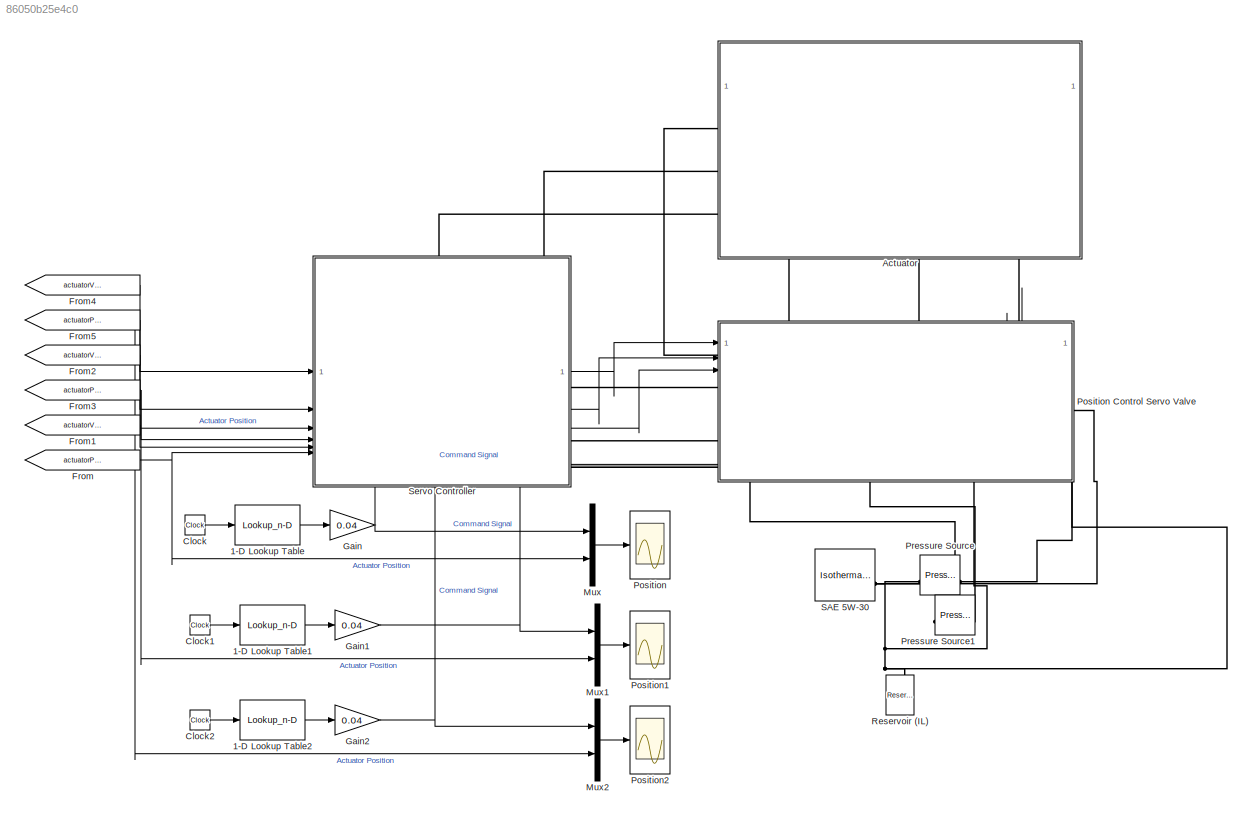
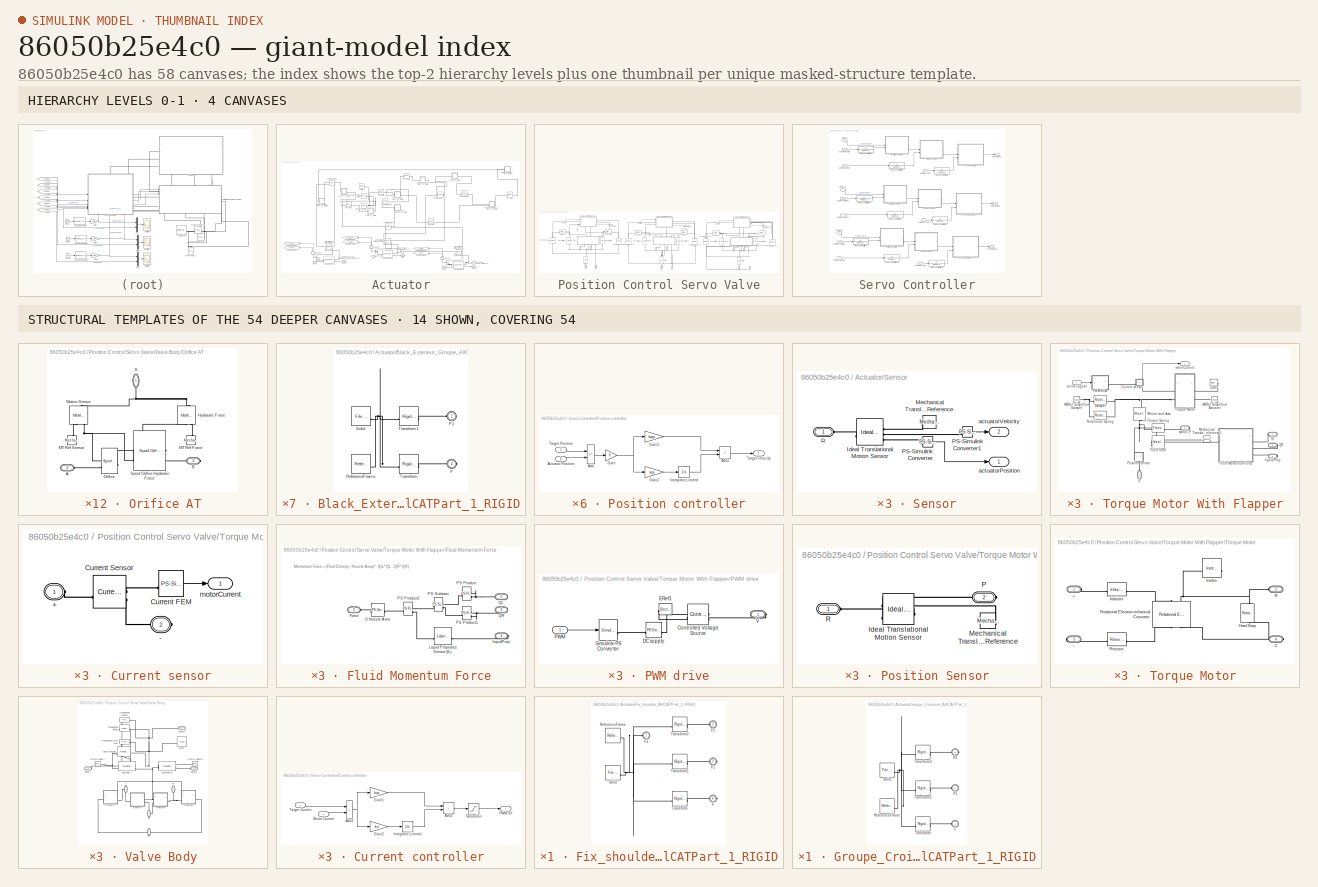
[diagram: thumbnail index - top-2 hierarchy levels (4 canvases) + 14 structural-template representatives of the remaining 54 canvases]
MODEL slx_86050b25e4c0
KIND model
CONFIG AbsTol = 1e-3
CONFIG EnableMultiTasking = off
CONFIG FixedStep = auto
CONFIG MaxStep = 0.08
CONFIG MinStep = auto
CONFIG PreLoadFcn = PositionControlServoValveInput
CONFIG RelTol = 1e-3
CONFIG SampleTimeConstraint = Unconstrained
CONFIG SolverName = daessc
CONFIG StartTime = 0.0
CONFIG StopTime = 4
BLOCK [Lookup_n-D] 1-D Lookup Table
  BreakpointsForDimension1 = [0 1 1.02 1.2 1.22 1.3999999999999999 1.4199999999999999 1.6000000000000001 1.6200000000000001 1.8 1.8200000000000001 2 2.02 2.2000000000000002 2.2200000000000002 2.3999999999999999 2.4199999999999999 2.6000000000000001 2.6200000000000001 2.7999999999999998 2.8199999999999998 3 3.02 3.2000000000000002]
  InputPortMap = u0
  InternalRulePriority = Speed
  NumberOfTableDimensions = 1
  RndMeth = Simplest
  Table = [0 0 -0.5 0.5 -0.59999999999999998 -0.10000000000000001 0.40000000000000002 -0.40000000000000002 -0.29999999999999999 -0.29999999999999999 0.20000000000000001 0 0.5 0 0.10000000000000001 0 -0.40000000000000002 0 0 0.20000000000000001 0 -0.10000000000000001 0 0]
BLOCK [Lookup_n-D] 1-D Lookup Table1
  BreakpointsForDimension1 = [0 1 1.02 1.2 1.22 1.3999999999999999 1.4199999999999999 1.6000000000000001 1.6200000000000001 1.8 1.8200000000000001 2 2.02 2.2000000000000002 2.2200000000000002 2.3999999999999999 2.4199999999999999 2.6000000000000001 2.6200000000000001 2.7999999999999998 2.8199999999999998 3 3.02 3.2000000000000002]
  InputPortMap = u0
  InternalRulePriority = Speed
  NumberOfTableDimensions = 1
  RndMeth = Simplest
  Table = [0 0 0.10000000000000001 0 0.20000000000000001 0 0.29999999999999999 0 0 -0.20000000000000001 0 -0.29999999999999999 0 0 0 0 0 0 0.29999999999999999 0 0 -0.29999999999999999 0 0]
BLOCK [Lookup_n-D] 1-D Lookup Table2
  BreakpointsForDimension1 = [0;1;1.02;1.2;1.3999999999999999;1.4199999999999999;1.6000000000000001;1.6200000000000001;1.8;1.8200000000000001;2;2.02;2.2000000000000002;2.2200000000000002;2.3999999999999999;2.4199999999999999;2.6000000000000001;2.6200000000000001;2.7999999999999998;2.8199999999999998;3;3.02;3.2000000000000002]
  InputPortMap = u0
  InternalRulePriority = Speed
  NumberOfTableDimensions = 1
  RndMeth = Simplest
  Table = [0;0.20000000000000001;-0.40000000000000002;0;-0.20000000000000001;0.40000000000000002;0.10000000000000001;0.29999999999999999;-0.40000000000000002;0.40000000000000002;0.29999999999999999;-0.10000000000000001;0;0;-0.20000000000000001;0.20000000000000001;-0.40000000000000002;0;-0.20000000000000001;0;0;0;0.20000000000000001]
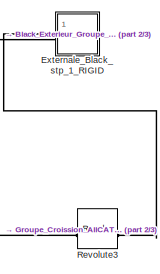
[diagram: Actuator - part 1/3, top right region]
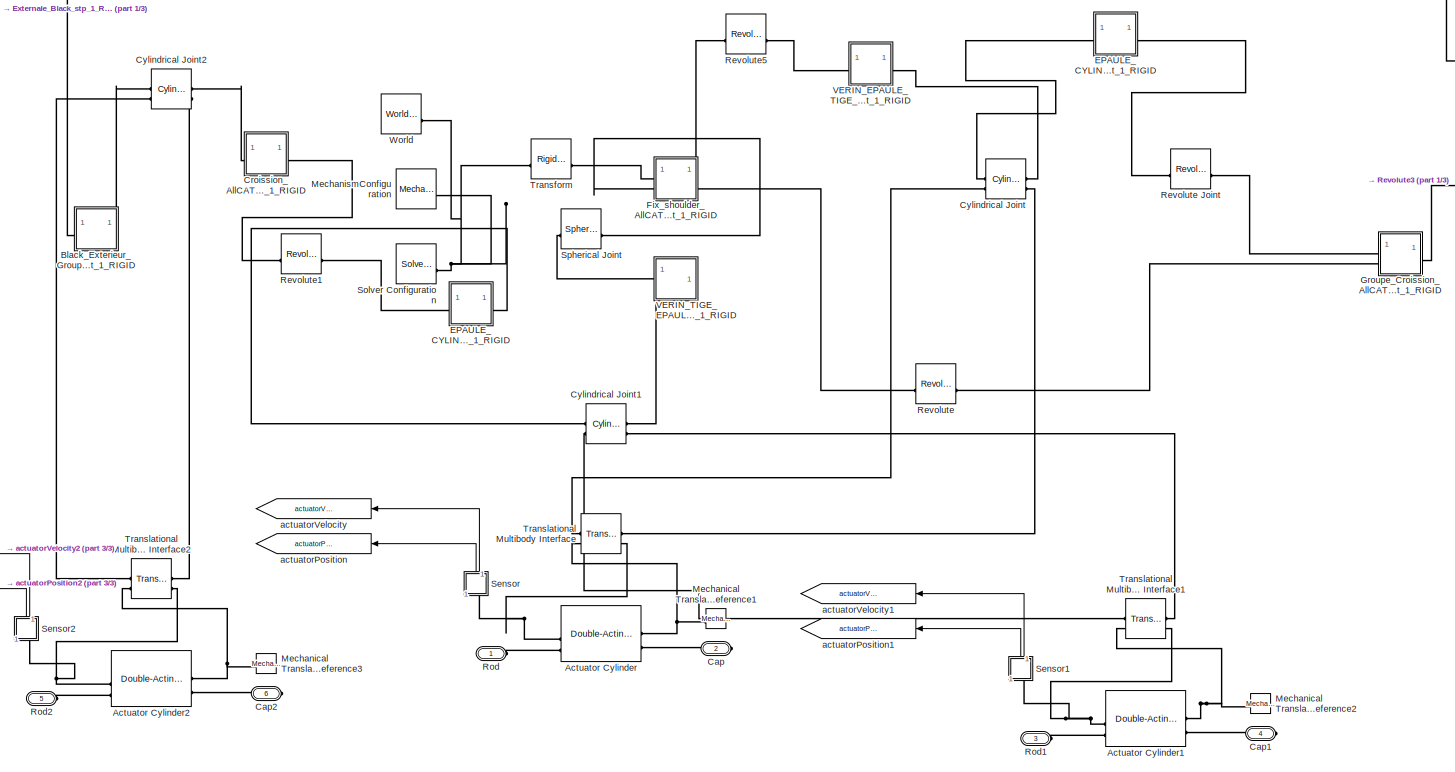
[diagram: Actuator - part 2/3, most of the canvas]
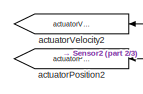
[diagram: Actuator - part 3/3, bottom left region]
BLOCK [SubSystem] Actuator
BLOCK [Reference] Actuator/Actuator Cylinder  REF=SimscapeFluids_lib/Isothermal Liquid/Actuators/Double-Acting
Actuator (IL)
  SourceBlock = SimscapeFluids_lib/Isothermal Liquid/Actuators/Double-Acting\nActuator (IL)
  SourceType = Double-Acting\nActuator (IL)
BLOCK [Reference] Actuator/Actuator Cylinder1  REF=SimscapeFluids_lib/Isothermal Liquid/Actuators/Double-Acting
Actuator (IL)
  SourceBlock = SimscapeFluids_lib/Isothermal Liquid/Actuators/Double-Acting\nActuator (IL)
  SourceType = Double-Acting\nActuator (IL)
BLOCK [Reference] Actuator/Actuator Cylinder2  REF=SimscapeFluids_lib/Isothermal Liquid/Actuators/Double-Acting
Actuator (IL)
  SourceBlock = SimscapeFluids_lib/Isothermal Liquid/Actuators/Double-Acting\nActuator (IL)
  SourceType = Double-Acting\nActuator (IL)
BLOCK [SubSystem] Actuator/Black_Exterieur_Groupe_AllCATPart_1_RIGID
BLOCK [PMIOPort] Actuator/Black_Exterieur_Groupe_AllCATPart_1_RIGID/F
  Port = 2
  Side = Right
BLOCK [PMIOPort] Actuator/Black_Exterieur_Groupe_AllCATPart_1_RIGID/F1
  Side = Left
BLOCK [Reference] Actuator/Black_Exterieur_Groupe_AllCATPart_1_RIGID/ReferenceFrame  REF=sm_lib/Frames and
Transforms/Reference
Frame
  SourceBlock = sm_lib/Frames and\nTransforms/Reference\nFrame
  SourceType = Reference\nFrame
BLOCK [Reference] Actuator/Black_Exterieur_Groupe_AllCATPart_1_RIGID/Solid  REF=sm_lib/Body Elements/File Solid
  SourceBlock = sm_lib/Body Elements/File Solid
  SourceType = File Solid
BLOCK [Reference] Actuator/Black_Exterieur_Groupe_AllCATPart_1_RIGID/Transform  REF=sm_lib/Frames and
Transforms/Rigid
Transform
  SourceBlock = sm_lib/Frames and\nTransforms/Rigid\nTransform
  SourceType = Rigid\nTransform
BLOCK [Reference] Actuator/Black_Exterieur_Groupe_AllCATPart_1_RIGID/Transform1  REF=sm_lib/Frames and
Transforms/Rigid
Transform
  SourceBlock = sm_lib/Frames and\nTransforms/Rigid\nTransform
  SourceType = Rigid\nTransform
BLOCK [PMIOPort] Actuator/Cap
  Port = 2
  Side = Right
BLOCK [PMIOPort] Actuator/Cap1
  Port = 4
  Side = Right
BLOCK [PMIOPort] Actuator/Cap2
  Port = 6
  Side = Right
BLOCK [SubSystem] Actuator/Croission_AllCATPart_stp_1_RIGID
BLOCK [PMIOPort] Actuator/Croission_AllCATPart_stp_1_RIGID/F
  Port = 2
  Side = Right
BLOCK [PMIOPort] Actuator/Croission_AllCATPart_stp_1_RIGID/F1
  Side = Left
BLOCK [Reference] Actuator/Croission_AllCATPart_stp_1_RIGID/ReferenceFrame  REF=sm_lib/Frames and
Transforms/Reference
Frame
  SourceBlock = sm_lib/Frames and\nTransforms/Reference\nFrame
  SourceType = Reference\nFrame
BLOCK [Reference] Actuator/Croission_AllCATPart_stp_1_RIGID/Solid  REF=sm_lib/Body Elements/File Solid
  SourceBlock = sm_lib/Body Elements/File Solid
  SourceType = File Solid
BLOCK [Reference] Actuator/Croission_AllCATPart_stp_1_RIGID/Transform  REF=sm_lib/Frames and
Transforms/Rigid
Transform
  SourceBlock = sm_lib/Frames and\nTransforms/Rigid\nTransform
  SourceType = Rigid\nTransform
BLOCK [Reference] Actuator/Croission_AllCATPart_stp_1_RIGID/Transform1  REF=sm_lib/Frames and
Transforms/Rigid
Transform
  SourceBlock = sm_lib/Frames and\nTransforms/Rigid\nTransform
  SourceType = Rigid\nTransform
BLOCK [Reference] Actuator/Cylindrical Joint  REF=sm_lib/Joints/Cylindrical
Joint
  SourceBlock = sm_lib/Joints/Cylindrical\nJoint
  SourceType = Cylindrical\nJoint
BLOCK [Reference] Actuator/Cylindrical Joint1  REF=sm_lib/Joints/Cylindrical
Joint
  SourceBlock = sm_lib/Joints/Cylindrical\nJoint
  SourceType = Cylindrical\nJoint
BLOCK [Reference] Actuator/Cylindrical Joint2  REF=sm_lib/Joints/Cylindrical
Joint
  SourceBlock = sm_lib/Joints/Cylindrical\nJoint
  SourceType = Cylindrical\nJoint
BLOCK [SubSystem] Actuator/EPAULE_CYLINDRE_GROUPE1_AllCATPart_stp_1_RIGID
BLOCK [PMIOPort] Actuator/EPAULE_CYLINDRE_GROUPE1_AllCATPart_stp_1_RIGID/F
  Side = Left
BLOCK [PMIOPort] Actuator/EPAULE_CYLINDRE_GROUPE1_AllCATPart_stp_1_RIGID/F1
  Port = 2
  Side = Right
BLOCK [Reference] Actuator/EPAULE_CYLINDRE_GROUPE1_AllCATPart_stp_1_RIGID/ReferenceFrame  REF=sm_lib/Frames and
Transforms/Reference
Frame
  SourceBlock = sm_lib/Frames and\nTransforms/Reference\nFrame
  SourceType = Reference\nFrame
BLOCK [Reference] Actuator/EPAULE_CYLINDRE_GROUPE1_AllCATPart_stp_1_RIGID/Solid  REF=sm_lib/Body Elements/File Solid
  SourceBlock = sm_lib/Body Elements/File Solid
  SourceType = File Solid
BLOCK [Reference] Actuator/EPAULE_CYLINDRE_GROUPE1_AllCATPart_stp_1_RIGID/Transform  REF=sm_lib/Frames and
Transforms/Rigid
Transform
  SourceBlock = sm_lib/Frames and\nTransforms/Rigid\nTransform
  SourceType = Rigid\nTransform
BLOCK [Reference] Actuator/EPAULE_CYLINDRE_GROUPE1_AllCATPart_stp_1_RIGID/Transform1  REF=sm_lib/Frames and
Transforms/Rigid
Transform
  SourceBlock = sm_lib/Frames and\nTransforms/Rigid\nTransform
  SourceType = Rigid\nTransform
BLOCK [SubSystem] Actuator/EPAULE_CYLINDRE_GROUPE2_AllCATPart_1_RIGID
BLOCK [PMIOPort] Actuator/EPAULE_CYLINDRE_GROUPE2_AllCATPart_1_RIGID/F
  Port = 2
  Side = Right
BLOCK [PMIOPort] Actuator/EPAULE_CYLINDRE_GROUPE2_AllCATPart_1_RIGID/F1
  Side = Left
BLOCK [Reference] Actuator/EPAULE_CYLINDRE_GROUPE2_AllCATPart_1_RIGID/ReferenceFrame  REF=sm_lib/Frames and
Transforms/Reference
Frame
  SourceBlock = sm_lib/Frames and\nTransforms/Reference\nFrame
  SourceType = Reference\nFrame
BLOCK [Reference] Actuator/EPAULE_CYLINDRE_GROUPE2_AllCATPart_1_RIGID/Solid  REF=sm_lib/Body Elements/File Solid
  SourceBlock = sm_lib/Body Elements/File Solid
  SourceType = File Solid
BLOCK [Reference] Actuator/EPAULE_CYLINDRE_GROUPE2_AllCATPart_1_RIGID/Transform  REF=sm_lib/Frames and
Transforms/Rigid
Transform
  SourceBlock = sm_lib/Frames and\nTransforms/Rigid\nTransform
  SourceType = Rigid\nTransform
BLOCK [Reference] Actuator/EPAULE_CYLINDRE_GROUPE2_AllCATPart_1_RIGID/Transform1  REF=sm_lib/Frames and
Transforms/Rigid
Transform
  SourceBlock = sm_lib/Frames and\nTransforms/Rigid\nTransform
  SourceType = Rigid\nTransform
BLOCK [SubSystem] Actuator/Externale_Black_stp_1_RIGID
BLOCK [PMIOPort] Actuator/Externale_Black_stp_1_RIGID/F
  Side = Left
BLOCK [PMIOPort] Actuator/Externale_Black_stp_1_RIGID/F1
  Port = 2
  Side = Left
BLOCK [Reference] Actuator/Externale_Black_stp_1_RIGID/ReferenceFrame  REF=sm_lib/Frames and
Transforms/Reference
Frame
  SourceBlock = sm_lib/Frames and\nTransforms/Reference\nFrame
  SourceType = Reference\nFrame
BLOCK [Reference] Actuator/Externale_Black_stp_1_RIGID/Solid  REF=sm_lib/Body Elements/File Solid
  SourceBlock = sm_lib/Body Elements/File Solid
  SourceType = File Solid
BLOCK [Reference] Actuator/Externale_Black_stp_1_RIGID/Transform  REF=sm_lib/Frames and
Transforms/Rigid
Transform
  SourceBlock = sm_lib/Frames and\nTransforms/Rigid\nTransform
  SourceType = Rigid\nTransform
BLOCK [Reference] Actuator/Externale_Black_stp_1_RIGID/Transform1  REF=sm_lib/Frames and
Transforms/Rigid
Transform
  SourceBlock = sm_lib/Frames and\nTransforms/Rigid\nTransform
  SourceType = Rigid\nTransform
BLOCK [SubSystem] Actuator/Fix_shoulder_AllCATPart_1_RIGID
BLOCK [PMIOPort] Actuator/Fix_shoulder_AllCATPart_1_RIGID/F
  Port = 4
  Side = Right
BLOCK [PMIOPort] Actuator/Fix_shoulder_AllCATPart_1_RIGID/F1
  Port = 3
  Side = Right
BLOCK [PMIOPort] Actuator/Fix_shoulder_AllCATPart_1_RIGID/F2
  Port = 2
  Side = Left
BLOCK [PMIOPort] Actuator/Fix_shoulder_AllCATPart_1_RIGID/F3
  Side = Left
BLOCK [Reference] Actuator/Fix_shoulder_AllCATPart_1_RIGID/ReferenceFrame  REF=sm_lib/Frames and
Transforms/Reference
Frame
  SourceBlock = sm_lib/Frames and\nTransforms/Reference\nFrame
  SourceType = Reference\nFrame
BLOCK [Reference] Actuator/Fix_shoulder_AllCATPart_1_RIGID/Solid  REF=sm_lib/Body Elements/File Solid
  SourceBlock = sm_lib/Body Elements/File Solid
  SourceType = File Solid
BLOCK [Reference] Actuator/Fix_shoulder_AllCATPart_1_RIGID/Transform  REF=sm_lib/Frames and
Transforms/Rigid
Transform
  SourceBlock = sm_lib/Frames and\nTransforms/Rigid\nTransform
  SourceType = Rigid\nTransform
BLOCK [Reference] Actuator/Fix_shoulder_AllCATPart_1_RIGID/Transform1  REF=sm_lib/Frames and
Transforms/Rigid
Transform
  SourceBlock = sm_lib/Frames and\nTransforms/Rigid\nTransform
  SourceType = Rigid\nTransform
BLOCK [Reference] Actuator/Fix_shoulder_AllCATPart_1_RIGID/Transform2  REF=sm_lib/Frames and
Transforms/Rigid
Transform
  SourceBlock = sm_lib/Frames and\nTransforms/Rigid\nTransform
  SourceType = Rigid\nTransform
BLOCK [SubSystem] Actuator/Groupe_Croission_AllCATPart_1_RIGID
BLOCK [PMIOPort] Actuator/Groupe_Croission_AllCATPart_1_RIGID/F
  Side = Left
BLOCK [PMIOPort] Actuator/Groupe_Croission_AllCATPart_1_RIGID/F1
  Port = 2
  Side = Left
BLOCK [PMIOPort] Actuator/Groupe_Croission_AllCATPart_1_RIGID/F2
  Port = 3
  Side = Right
BLOCK [Reference] Actuator/Groupe_Croission_AllCATPart_1_RIGID/ReferenceFrame  REF=sm_lib/Frames and
Transforms/Reference
Frame
  SourceBlock = sm_lib/Frames and\nTransforms/Reference\nFrame
  SourceType = Reference\nFrame
BLOCK [Reference] Actuator/Groupe_Croission_AllCATPart_1_RIGID/Solid  REF=sm_lib/Body Elements/File Solid
  SourceBlock = sm_lib/Body Elements/File Solid
  SourceType = File Solid
BLOCK [Reference] Actuator/Groupe_Croission_AllCATPart_1_RIGID/Transform  REF=sm_lib/Frames and
Transforms/Rigid
Transform
  SourceBlock = sm_lib/Frames and\nTransforms/Rigid\nTransform
  SourceType = Rigid\nTransform
BLOCK [Reference] Actuator/Groupe_Croission_AllCATPart_1_RIGID/Transform1  REF=sm_lib/Frames and
Transforms/Rigid
Transform
  SourceBlock = sm_lib/Frames and\nTransforms/Rigid\nTransform
  SourceType = Rigid\nTransform
BLOCK [Reference] Actuator/Groupe_Croission_AllCATPart_1_RIGID/Transform2  REF=sm_lib/Frames and
Transforms/Rigid
Transform
  SourceBlock = sm_lib/Frames and\nTransforms/Rigid\nTransform
  SourceType = Rigid\nTransform
BLOCK [Reference] Actuator/Mechanical Translational Reference1  REF=fl_lib/Mechanical/Translational
Elements/Mechanical
Translational
Reference
  NameLocation = top
  SourceBlock = fl_lib/Mechanical/Translational\nElements/Mechanical\nTranslational\nReference
  SourceType = Mechanical\nTranslational\nReference
BLOCK [Reference] Actuator/Mechanical Translational Reference2  REF=fl_lib/Mechanical/Translational
Elements/Mechanical
Translational
Reference
  NameLocation = top
  SourceBlock = fl_lib/Mechanical/Translational\nElements/Mechanical\nTranslational\nReference
  SourceType = Mechanical\nTranslational\nReference
BLOCK [Reference] Actuator/Mechanical Translational Reference3  REF=fl_lib/Mechanical/Translational
Elements/Mechanical
Translational
Reference
  NameLocation = top
  SourceBlock = fl_lib/Mechanical/Translational\nElements/Mechanical\nTranslational\nReference
  SourceType = Mechanical\nTranslational\nReference
BLOCK [Reference] Actuator/MechanismConfiguration  REF=sm_lib/Utilities/Mechanism
Configuration
  SourceBlock = sm_lib/Utilities/Mechanism\nConfiguration
  SourceType = Mechanism\nConfiguration
BLOCK [Reference] Actuator/Revolute  REF=sm_lib/Joints/Revolute Joint
  SourceBlock = sm_lib/Joints/Revolute Joint
  SourceType = Revolute Joint
BLOCK [Reference] Actuator/Revolute Joint  REF=sm_lib/Joints/Revolute Joint
  SourceBlock = sm_lib/Joints/Revolute Joint
  SourceType = Revolute Joint
BLOCK [Reference] Actuator/Revolute1  REF=sm_lib/Joints/Revolute Joint
  SourceBlock = sm_lib/Joints/Revolute Joint
  SourceType = Revolute Joint
BLOCK [Reference] Actuator/Revolute3  REF=sm_lib/Joints/Revolute Joint
  SourceBlock = sm_lib/Joints/Revolute Joint
  SourceType = Revolute Joint
BLOCK [Reference] Actuator/Revolute5  REF=sm_lib/Joints/Revolute Joint
  SourceBlock = sm_lib/Joints/Revolute Joint
  SourceType = Revolute Joint
BLOCK [PMIOPort] Actuator/Rod
  Side = Left
BLOCK [PMIOPort] Actuator/Rod1
  Port = 3
  Side = Left
BLOCK [PMIOPort] Actuator/Rod2
  Port = 5
  Side = Left
BLOCK [SubSystem] Actuator/Sensor
  NameLocation = right
BLOCK [Reference] Actuator/Sensor/Ideal Translational Motion Sensor  REF=fl_lib/Mechanical/Mechanical Sensors/Ideal Translational
Motion Sensor
  SourceBlock = fl_lib/Mechanical/Mechanical Sensors/Ideal Translational\nMotion Sensor
  SourceType = Ideal Translational\nMotion Sensor
BLOCK [Reference] Actuator/Sensor/Mechanical Translational Reference  REF=fl_lib/Mechanical/Translational
Elements/Mechanical
Translational
Reference
  SourceBlock = fl_lib/Mechanical/Translational\nElements/Mechanical\nTranslational\nReference
  SourceType = Mechanical\nTranslational\nReference
BLOCK [Reference] Actuator/Sensor/PS-Simulink Converter  REF=nesl_utility/PS-Simulink
Converter
  SourceBlock = nesl_utility/PS-Simulink\nConverter
  SourceType = PS-Simulink\nConverter
BLOCK [Reference] Actuator/Sensor/PS-Simulink Converter1  REF=nesl_utility/PS-Simulink
Converter
  SourceBlock = nesl_utility/PS-Simulink\nConverter
  SourceType = PS-Simulink\nConverter
BLOCK [PMIOPort] Actuator/Sensor/R
  Side = Left
BLOCK [Outport] Actuator/Sensor/actuatorPosition
BLOCK [Outport] Actuator/Sensor/actuatorVelocity
  Port = 2
BLOCK [SubSystem] Actuator/Sensor1
  NameLocation = right
BLOCK [Reference] Actuator/Sensor1/Ideal Translational Motion Sensor  REF=fl_lib/Mechanical/Mechanical Sensors/Ideal Translational
Motion Sensor
  SourceBlock = fl_lib/Mechanical/Mechanical Sensors/Ideal Translational\nMotion Sensor
  SourceType = Ideal Translational\nMotion Sensor
BLOCK [Reference] Actuator/Sensor1/Mechanical Translational Reference  REF=fl_lib/Mechanical/Translational
Elements/Mechanical
Translational
Reference
  SourceBlock = fl_lib/Mechanical/Translational\nElements/Mechanical\nTranslational\nReference
  SourceType = Mechanical\nTranslational\nReference
BLOCK [Reference] Actuator/Sensor1/PS-Simulink Converter  REF=nesl_utility/PS-Simulink
Converter
  SourceBlock = nesl_utility/PS-Simulink\nConverter
  SourceType = PS-Simulink\nConverter
BLOCK [Reference] Actuator/Sensor1/PS-Simulink Converter1  REF=nesl_utility/PS-Simulink
Converter
  SourceBlock = nesl_utility/PS-Simulink\nConverter
  SourceType = PS-Simulink\nConverter
BLOCK [PMIOPort] Actuator/Sensor1/R
  Side = Left
BLOCK [Outport] Actuator/Sensor1/actuatorPosition
BLOCK [Outport] Actuator/Sensor1/actuatorVelocity
  Port = 2
BLOCK [SubSystem] Actuator/Sensor2
  NameLocation = right
BLOCK [Reference] Actuator/Sensor2/Ideal Translational Motion Sensor  REF=fl_lib/Mechanical/Mechanical Sensors/Ideal Translational
Motion Sensor
  SourceBlock = fl_lib/Mechanical/Mechanical Sensors/Ideal Translational\nMotion Sensor
  SourceType = Ideal Translational\nMotion Sensor
BLOCK [Reference] Actuator/Sensor2/Mechanical Translational Reference  REF=fl_lib/Mechanical/Translational
Elements/Mechanical
Translational
Reference
  SourceBlock = fl_lib/Mechanical/Translational\nElements/Mechanical\nTranslational\nReference
  SourceType = Mechanical\nTranslational\nReference
BLOCK [Reference] Actuator/Sensor2/PS-Simulink Converter  REF=nesl_utility/PS-Simulink
Converter
  SourceBlock = nesl_utility/PS-Simulink\nConverter
  SourceType = PS-Simulink\nConverter
BLOCK [Reference] Actuator/Sensor2/PS-Simulink Converter1  REF=nesl_utility/PS-Simulink
Converter
  SourceBlock = nesl_utility/PS-Simulink\nConverter
  SourceType = PS-Simulink\nConverter
BLOCK [PMIOPort] Actuator/Sensor2/R
  Side = Left
BLOCK [Outport] Actuator/Sensor2/actuatorPosition
BLOCK [Outport] Actuator/Sensor2/actuatorVelocity
  Port = 2
BLOCK [Reference] Actuator/Solver Configuration  REF=nesl_utility/Solver
Configuration
  SourceBlock = nesl_utility/Solver\nConfiguration
  SourceType = Solver\nConfiguration
BLOCK [Reference] Actuator/Spherical Joint  REF=sm_lib/Joints/Spherical
Joint
  SourceBlock = sm_lib/Joints/Spherical\nJoint
  SourceType = Spherical\nJoint
BLOCK [Reference] Actuator/Transform  REF=sm_lib/Frames and
Transforms/Rigid
Transform
  SourceBlock = sm_lib/Frames and\nTransforms/Rigid\nTransform
  SourceType = Rigid\nTransform
BLOCK [Reference] Actuator/Translational Multibody Interface  REF=fl_lib/Mechanical/Multibody Interfaces/Translational
Multibody Interface
  SourceBlock = fl_lib/Mechanical/Multibody Interfaces/Translational\nMultibody Interface
  SourceType = Translational\nMultibody Interface
BLOCK [Reference] Actuator/Translational Multibody Interface1  REF=fl_lib/Mechanical/Multibody Interfaces/Translational
Multibody Interface
  SourceBlock = fl_lib/Mechanical/Multibody Interfaces/Translational\nMultibody Interface
  SourceType = Translational\nMultibody Interface
BLOCK [Reference] Actuator/Translational Multibody Interface2  REF=fl_lib/Mechanical/Multibody Interfaces/Translational
Multibody Interface
  SourceBlock = fl_lib/Mechanical/Multibody Interfaces/Translational\nMultibody Interface
  SourceType = Translational\nMultibody Interface
BLOCK [SubSystem] Actuator/VERIN_EPAULE_TIGE_GROUPE2_3_AllCATPart_1_RIGID
BLOCK [PMIOPort] Actuator/VERIN_EPAULE_TIGE_GROUPE2_3_AllCATPart_1_RIGID/F
  Port = 2
  Side = Right
BLOCK [PMIOPort] Actuator/VERIN_EPAULE_TIGE_GROUPE2_3_AllCATPart_1_RIGID/F1
  Side = Left
BLOCK [Reference] Actuator/VERIN_EPAULE_TIGE_GROUPE2_3_AllCATPart_1_RIGID/ReferenceFrame  REF=sm_lib/Frames and
Transforms/Reference
Frame
  SourceBlock = sm_lib/Frames and\nTransforms/Reference\nFrame
  SourceType = Reference\nFrame
BLOCK [Reference] Actuator/VERIN_EPAULE_TIGE_GROUPE2_3_AllCATPart_1_RIGID/Solid  REF=sm_lib/Body Elements/File Solid
  SourceBlock = sm_lib/Body Elements/File Solid
  SourceType = File Solid
BLOCK [Reference] Actuator/VERIN_EPAULE_TIGE_GROUPE2_3_AllCATPart_1_RIGID/Transform  REF=sm_lib/Frames and
Transforms/Rigid
Transform
  SourceBlock = sm_lib/Frames and\nTransforms/Rigid\nTransform
  SourceType = Rigid\nTransform
BLOCK [Reference] Actuator/VERIN_EPAULE_TIGE_GROUPE2_3_AllCATPart_1_RIGID/Transform1  REF=sm_lib/Frames and
Transforms/Rigid
Transform
  SourceBlock = sm_lib/Frames and\nTransforms/Rigid\nTransform
  SourceType = Rigid\nTransform
BLOCK [SubSystem] Actuator/VERIN_TIGE_EPAULE1_2_1_RIGID
  NameLocation = left
BLOCK [PMIOPort] Actuator/VERIN_TIGE_EPAULE1_2_1_RIGID/F
  Port = 2
  Side = Left
BLOCK [PMIOPort] Actuator/VERIN_TIGE_EPAULE1_2_1_RIGID/F1
  Side = Left
BLOCK [Reference] Actuator/VERIN_TIGE_EPAULE1_2_1_RIGID/ReferenceFrame  REF=sm_lib/Frames and
Transforms/Reference
Frame
  SourceBlock = sm_lib/Frames and\nTransforms/Reference\nFrame
  SourceType = Reference\nFrame
BLOCK [Reference] Actuator/VERIN_TIGE_EPAULE1_2_1_RIGID/Solid  REF=sm_lib/Body Elements/File Solid
  SourceBlock = sm_lib/Body Elements/File Solid
  SourceType = File Solid
BLOCK [Reference] Actuator/VERIN_TIGE_EPAULE1_2_1_RIGID/Transform  REF=sm_lib/Frames and
Transforms/Rigid
Transform
  SourceBlock = sm_lib/Frames and\nTransforms/Rigid\nTransform
  SourceType = Rigid\nTransform
BLOCK [Reference] Actuator/VERIN_TIGE_EPAULE1_2_1_RIGID/Transform1  REF=sm_lib/Frames and
Transforms/Rigid
Transform
  SourceBlock = sm_lib/Frames and\nTransforms/Rigid\nTransform
  SourceType = Rigid\nTransform
BLOCK [Reference] Actuator/World  REF=sm_lib/Frames and
Transforms/World Frame
  SourceBlock = sm_lib/Frames and\nTransforms/World Frame
  SourceType = World Frame
BLOCK [Goto] Actuator/actuatorPosition
  GotoTag = actuatorPosition
  TagVisibility = global
BLOCK [Goto] Actuator/actuatorPosition1
  GotoTag = actuatorPosition1
  TagVisibility = global
BLOCK [Goto] Actuator/actuatorPosition2
  GotoTag = actuatorPosition2
  TagVisibility = global
BLOCK [Goto] Actuator/actuatorVelocity
  GotoTag = actuatorVelocity
  NameLocation = top
  TagVisibility = global
BLOCK [Goto] Actuator/actuatorVelocity1
  GotoTag = actuatorVelocity1
  NameLocation = top
  TagVisibility = global
BLOCK [Goto] Actuator/actuatorVelocity2
  GotoTag = actuatorVelocity2
  NameLocation = top
  TagVisibility = global
BLOCK [Clock] Clock
BLOCK [Clock] Clock1
BLOCK [Clock] Clock2
BLOCK [From] From
  GotoTag = actuatorPosition
  TagVisibility = global
BLOCK [From] From1
  GotoTag = actuatorVelocity
  TagVisibility = global
BLOCK [From] From2
  GotoTag = actuatorVelocity1
  TagVisibility = global
BLOCK [From] From3
  GotoTag = actuatorPosition1
  TagVisibility = global
BLOCK [From] From4
  GotoTag = actuatorVelocity2
  TagVisibility = global
BLOCK [From] From5
  GotoTag = actuatorPosition2
  TagVisibility = global
BLOCK [Gain] Gain
  Gain = 0.04
BLOCK [Gain] Gain1
  Gain = 0.04
BLOCK [Gain] Gain2
  Gain = 0.04
BLOCK [Mux] Mux
  DisplayOption = bar
  Inputs = 2
BLOCK [Mux] Mux1
  DisplayOption = bar
  Inputs = 2
BLOCK [Mux] Mux2
  DisplayOption = bar
  Inputs = 2
BLOCK [Scope] Position
  Floating = off
  NumInputPorts = 1
  ScopeSpecificationString = Simulink.scopes.TimeScopeBlockCfg('CurrentConfiguration', extmgr.ConfigurationSet(extmgr.Configuration('Core','General UI',true,'FigureColor',[1 1 1]),extmgr.Configuration('Core','Source UI',true),extmgr.Configuration('Sources','WiredSimulink',true,'DataLoggingVariableName','ScopeData2'),extmgr.Configuration('Visuals','Time Domain',true,'SerializedDisplays',{struct('MinYLimReal','-0.05001','MaxYLi...<+1719ch>
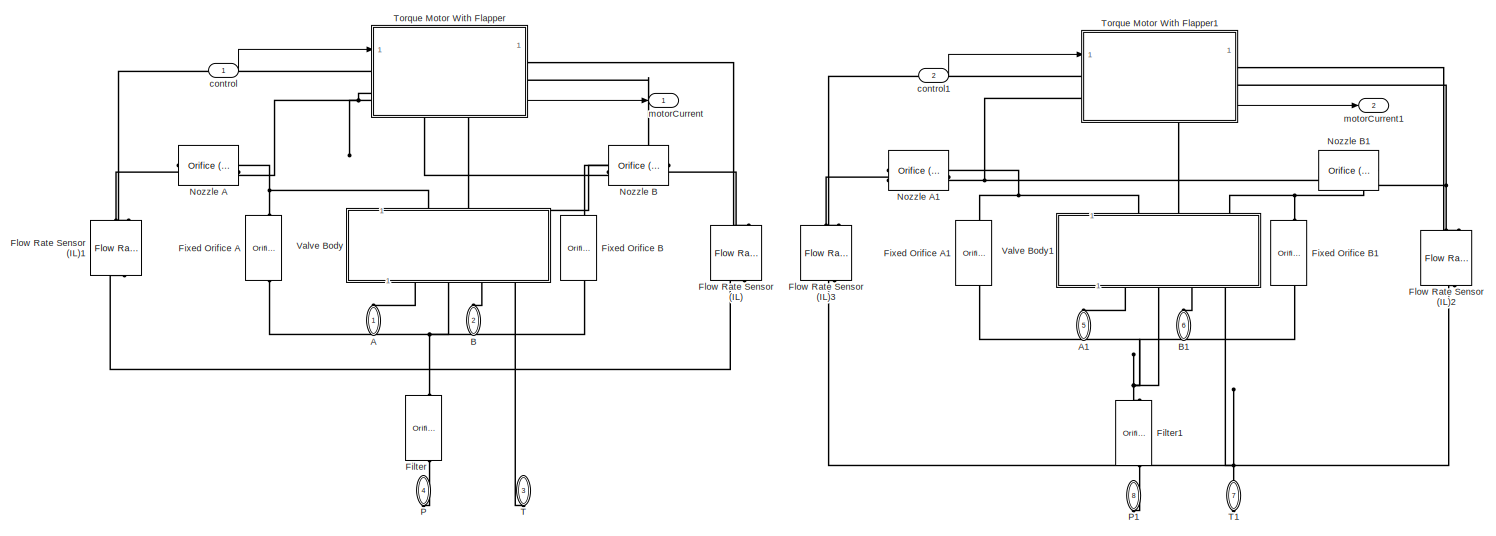
[diagram: Position Control Servo Valve - part 1/2, center side, full height]
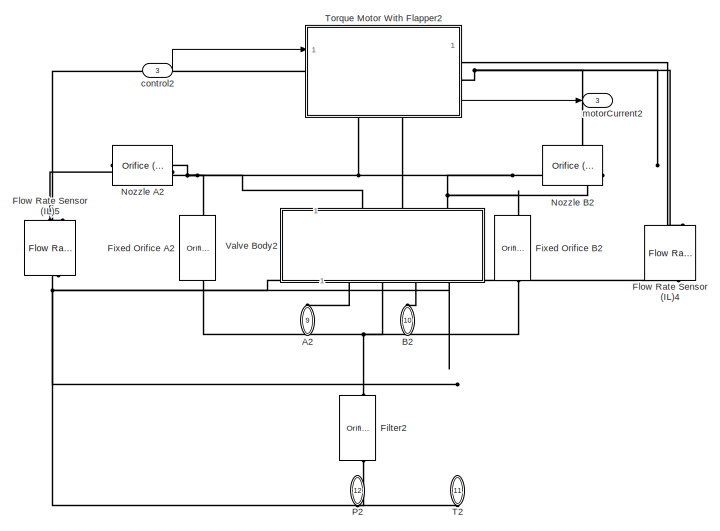
[diagram: Position Control Servo Valve - part 2/2, right side, full height]
BLOCK [SubSystem] Position Control Servo Valve
  PortSchema = {"entries":[{"content":{"sides":[{"content":{"connectorIds":["Out1","Out2","Out3","In1","In2","In3"]},"type":"ConnectorPlacement.EquallySpacedRectSide","uuid":"2d692abd-b203-422b-9c6f-8ef9ae0a74fe"},{"content":{"side":"RIGHT"},"type":"ConnectorPlacement.EquallySpacedRectSide","uuid":"0bd60013-415e-4d3f-bbad-10592baeb310"},{"content":{"connectorIds":["LConn1","LConn2","LConn3","LConn4","LConn5","LC...<+499ch>
BLOCK [PMIOPort] Position Control Servo Valve/A
  NameLocation = right
  Side = Left
BLOCK [PMIOPort] Position Control Servo Valve/A1
  NameLocation = right
  Port = 5
  Side = Left
BLOCK [PMIOPort] Position Control Servo Valve/A2
  NameLocation = right
  Port = 9
  Side = Left
BLOCK [PMIOPort] Position Control Servo Valve/B
  NameLocation = right
  Port = 2
  Side = Left
BLOCK [PMIOPort] Position Control Servo Valve/B1
  NameLocation = right
  Port = 6
  Side = Left
BLOCK [PMIOPort] Position Control Servo Valve/B2
  NameLocation = right
  Port = 10
  Side = Left
BLOCK [Reference] Position Control Servo Valve/Filter  REF=SimscapeFluids_lib/Isothermal Liquid/Valves & Orifices/Orifices/Orifice (IL)
  NameLocation = left
  SourceBlock = SimscapeFluids_lib/Isothermal Liquid/Valves & Orifices/Orifices/Orifice (IL)
  SourceType = Orifice (IL)
  Tag = Factory Generic
BLOCK [Reference] Position Control Servo Valve/Filter1  REF=SimscapeFluids_lib/Isothermal Liquid/Valves & Orifices/Orifices/Orifice (IL)
  NameLocation = left
  SourceBlock = SimscapeFluids_lib/Isothermal Liquid/Valves & Orifices/Orifices/Orifice (IL)
  SourceType = Orifice (IL)
  Tag = Factory Generic
BLOCK [Reference] Position Control Servo Valve/Filter2  REF=SimscapeFluids_lib/Isothermal Liquid/Valves & Orifices/Orifices/Orifice (IL)
  NameLocation = left
  SourceBlock = SimscapeFluids_lib/Isothermal Liquid/Valves & Orifices/Orifices/Orifice (IL)
  SourceType = Orifice (IL)
  Tag = Factory Generic
BLOCK [Reference] Position Control Servo Valve/Fixed Orifice A  REF=SimscapeFluids_lib/Isothermal Liquid/Valves & Orifices/Orifices/Orifice (IL)
  NameLocation = left
  SourceBlock = SimscapeFluids_lib/Isothermal Liquid/Valves & Orifices/Orifices/Orifice (IL)
  SourceType = Orifice (IL)
  Tag = Factory Generic
BLOCK [Reference] Position Control Servo Valve/Fixed Orifice A1  REF=SimscapeFluids_lib/Isothermal Liquid/Valves & Orifices/Orifices/Orifice (IL)
  NameLocation = left
  SourceBlock = SimscapeFluids_lib/Isothermal Liquid/Valves & Orifices/Orifices/Orifice (IL)
  SourceType = Orifice (IL)
  Tag = Factory Generic
BLOCK [Reference] Position Control Servo Valve/Fixed Orifice A2  REF=SimscapeFluids_lib/Isothermal Liquid/Valves & Orifices/Orifices/Orifice (IL)
  NameLocation = left
  SourceBlock = SimscapeFluids_lib/Isothermal Liquid/Valves & Orifices/Orifices/Orifice (IL)
  SourceType = Orifice (IL)
  Tag = Factory Generic
BLOCK [Reference] Position Control Servo Valve/Fixed Orifice B  REF=SimscapeFluids_lib/Isothermal Liquid/Valves & Orifices/Orifices/Orifice (IL)
  NameLocation = right
  SourceBlock = SimscapeFluids_lib/Isothermal Liquid/Valves & Orifices/Orifices/Orifice (IL)
  SourceType = Orifice (IL)
  Tag = Factory Generic
BLOCK [Reference] Position Control Servo Valve/Fixed Orifice B1  REF=SimscapeFluids_lib/Isothermal Liquid/Valves & Orifices/Orifices/Orifice (IL)
  NameLocation = right
  SourceBlock = SimscapeFluids_lib/Isothermal Liquid/Valves & Orifices/Orifices/Orifice (IL)
  SourceType = Orifice (IL)
  Tag = Factory Generic
BLOCK [Reference] Position Control Servo Valve/Fixed Orifice B2  REF=SimscapeFluids_lib/Isothermal Liquid/Valves & Orifices/Orifices/Orifice (IL)
  NameLocation = right
  SourceBlock = SimscapeFluids_lib/Isothermal Liquid/Valves & Orifices/Orifices/Orifice (IL)
  SourceType = Orifice (IL)
  Tag = Factory Generic
BLOCK [Reference] Position Control Servo Valve/Flow Rate Sensor (IL)  REF=fl_lib/Isothermal Liquid/Sensors/Flow Rate Sensor
(IL)
  NameLocation = right
  SourceBlock = fl_lib/Isothermal Liquid/Sensors/Flow Rate Sensor\n(IL)
  SourceType = Flow Rate Sensor\n(IL)
BLOCK [Reference] Position Control Servo Valve/Flow Rate Sensor (IL)1  REF=fl_lib/Isothermal Liquid/Sensors/Flow Rate Sensor
(IL)
  NameLocation = left
  SourceBlock = fl_lib/Isothermal Liquid/Sensors/Flow Rate Sensor\n(IL)
  SourceType = Flow Rate Sensor\n(IL)
BLOCK [Reference] Position Control Servo Valve/Flow Rate Sensor (IL)2  REF=fl_lib/Isothermal Liquid/Sensors/Flow Rate Sensor
(IL)
  NameLocation = right
  SourceBlock = fl_lib/Isothermal Liquid/Sensors/Flow Rate Sensor\n(IL)
  SourceType = Flow Rate Sensor\n(IL)
BLOCK [Reference] Position Control Servo Valve/Flow Rate Sensor (IL)3  REF=fl_lib/Isothermal Liquid/Sensors/Flow Rate Sensor
(IL)
  NameLocation = left
  SourceBlock = fl_lib/Isothermal Liquid/Sensors/Flow Rate Sensor\n(IL)
  SourceType = Flow Rate Sensor\n(IL)
BLOCK [Reference] Position Control Servo Valve/Flow Rate Sensor (IL)4  REF=fl_lib/Isothermal Liquid/Sensors/Flow Rate Sensor
(IL)
  NameLocation = right
  SourceBlock = fl_lib/Isothermal Liquid/Sensors/Flow Rate Sensor\n(IL)
  SourceType = Flow Rate Sensor\n(IL)
BLOCK [Reference] Position Control Servo Valve/Flow Rate Sensor (IL)5  REF=fl_lib/Isothermal Liquid/Sensors/Flow Rate Sensor
(IL)
  NameLocation = left
  SourceBlock = fl_lib/Isothermal Liquid/Sensors/Flow Rate Sensor\n(IL)
  SourceType = Flow Rate Sensor\n(IL)
BLOCK [Reference] Position Control Servo Valve/Nozzle A  REF=SimscapeFluids_lib/Isothermal Liquid/Valves & Orifices/Orifices/Orifice (IL)
  SourceBlock = SimscapeFluids_lib/Isothermal Liquid/Valves & Orifices/Orifices/Orifice (IL)
  SourceType = Orifice (IL)
  Tag = Factory Generic
BLOCK [Reference] Position Control Servo Valve/Nozzle A1  REF=SimscapeFluids_lib/Isothermal Liquid/Valves & Orifices/Orifices/Orifice (IL)
  SourceBlock = SimscapeFluids_lib/Isothermal Liquid/Valves & Orifices/Orifices/Orifice (IL)
  SourceType = Orifice (IL)
  Tag = Factory Generic
BLOCK [Reference] Position Control Servo Valve/Nozzle A2  REF=SimscapeFluids_lib/Isothermal Liquid/Valves & Orifices/Orifices/Orifice (IL)
  SourceBlock = SimscapeFluids_lib/Isothermal Liquid/Valves & Orifices/Orifices/Orifice (IL)
  SourceType = Orifice (IL)
  Tag = Factory Generic
BLOCK [Reference] Position Control Servo Valve/Nozzle B  REF=SimscapeFluids_lib/Isothermal Liquid/Valves & Orifices/Orifices/Orifice (IL)
  SourceBlock = SimscapeFluids_lib/Isothermal Liquid/Valves & Orifices/Orifices/Orifice (IL)
  SourceType = Orifice (IL)
  Tag = Factory Generic
BLOCK [Reference] Position Control Servo Valve/Nozzle B1  REF=SimscapeFluids_lib/Isothermal Liquid/Valves & Orifices/Orifices/Orifice (IL)
  SourceBlock = SimscapeFluids_lib/Isothermal Liquid/Valves & Orifices/Orifices/Orifice (IL)
  SourceType = Orifice (IL)
  Tag = Factory Generic
BLOCK [Reference] Position Control Servo Valve/Nozzle B2  REF=SimscapeFluids_lib/Isothermal Liquid/Valves & Orifices/Orifices/Orifice (IL)
  SourceBlock = SimscapeFluids_lib/Isothermal Liquid/Valves & Orifices/Orifices/Orifice (IL)
  SourceType = Orifice (IL)
  Tag = Factory Generic
BLOCK [PMIOPort] Position Control Servo Valve/P
  NameLocation = right
  Port = 4
  Side = Right
BLOCK [PMIOPort] Position Control Servo Valve/P1
  NameLocation = right
  Port = 8
  Side = Right
BLOCK [PMIOPort] Position Control Servo Valve/P2
  NameLocation = right
  Port = 12
  Side = Right
BLOCK [PMIOPort] Position Control Servo Valve/T
  NameLocation = right
  Port = 3
  Side = Right
BLOCK [PMIOPort] Position Control Servo Valve/T1
  NameLocation = right
  Port = 7
  Side = Right
BLOCK [PMIOPort] Position Control Servo Valve/T2
  NameLocation = right
  Port = 11
  Side = Right
BLOCK [SubSystem] Position Control Servo Valve/Torque Motor With Flapper
  NameLocation = top
  PortSchema = {"entries":[{"content":{"sides":[{"content":{"connectorIds":["LConn1","In1","LConn2"]},"type":"ConnectorPlacement.EquallySpacedRectSide","uuid":"64793ea4-23f4-4794-8fd7-c084e468d2f7"},{"content":{"connectorIds":["RConn1","RConn2","Out1"],"side":"RIGHT"},"type":"ConnectorPlacement.EquallySpacedRectSide","uuid":"f1d113e3-45fc-4ed2-ac59-cd793222d714"},{"content":{"connectorIds":[],"side":"TOP"},"type...<+428ch>  <repeated x3 — deduplicated; at blocks: Torque Motor With Flapper, Torque Motor With Flapper1, Torque Motor With Flapper2>
BLOCK [SubSystem] Position Control Servo Valve/Torque Motor With Flapper/Current sensor
  PortSchema = {"entries":[{"content":{"sides":[{"content":{"connectorIds":["LConn1"]},"type":"ConnectorPlacement.EquallySpacedRectSide","uuid":"cc2dae61-62f7-42f0-b172-4f675867e306"},{"content":{"connectorIds":["RConn1"],"side":"RIGHT"},"type":"ConnectorPlacement.EquallySpacedRectSide","uuid":"d45a912c-49b0-4718-aedd-53ec00d5e3e9"},{"content":{"connectorIds":["Out1"],"side":"TOP"},"type":"ConnectorPlacement.Equ...<+251ch>  <repeated x3 — deduplicated; at blocks: Current sensor>
BLOCK [PMIOPort] Position Control Servo Valve/Torque Motor With Flapper/Current sensor/+
  Side = Left
BLOCK [PMIOPort] Position Control Servo Valve/Torque Motor With Flapper/Current sensor/-
  Port = 2
  Side = Right
BLOCK [Reference] Position Control Servo Valve/Torque Motor With Flapper/Current sensor/Current FEM  REF=nesl_utility/PS-Simulink
Converter
  NameLocation = top
  SourceBlock = nesl_utility/PS-Simulink\nConverter
  SourceType = PS-Simulink\nConverter
BLOCK [Reference] Position Control Servo Valve/Torque Motor With Flapper/Current sensor/Current Sensor  REF=fl_lib/Electrical/Electrical Sensors/Current Sensor
  SourceBlock = fl_lib/Electrical/Electrical Sensors/Current Sensor
  SourceType = Current Sensor
BLOCK [Outport] Position Control Servo Valve/Torque Motor With Flapper/Current sensor/motorCurrent
BLOCK [Reference] Position Control Servo Valve/Torque Motor With Flapper/Damper  REF=fl_lib/Mechanical/Rotational Elements/Rotational Damper
  NameLocation = top
  SourceBlock = fl_lib/Mechanical/Rotational Elements/Rotational Damper
  SourceType = Rotational Damper
BLOCK [Reference] Position Control Servo Valve/Torque Motor With Flapper/ERef  REF=fl_lib/Electrical/Electrical Elements/Electrical Reference
  SourceBlock = fl_lib/Electrical/Electrical Elements/Electrical Reference
  SourceType = Electrical Reference
BLOCK [Reference] Position Control Servo Valve/Torque Motor With Flapper/Flexure Spring  REF=fl_lib/Mechanical/Translational
Elements/Translational Spring
  NameLocation = top
  SourceBlock = fl_lib/Mechanical/Translational\nElements/Translational Spring
  SourceType = Translational Spring
BLOCK [SubSystem] Position Control Servo Valve/Torque Motor With Flapper/Fluid Momentum Force
BLOCK [Reference] Position Control Servo Valve/Torque Motor With Flapper/Fluid Momentum Force/1//  Nozzle Area  REF=fl_lib/Physical Signals/Functions/PS Gain
  NameLocation = top
  SourceBlock = fl_lib/Physical Signals/Functions/PS Gain
  SourceType = PS Gain
BLOCK [PMIOPort] Position Control Servo Valve/Torque Motor With Flapper/Fluid Momentum Force/Force
  Port = 2
  Side = Left
BLOCK [Reference] Position Control Servo Valve/Torque Motor With Flapper/Fluid Momentum Force/Liquid Properties Sensor (IL)  REF=fl_lib/Isothermal Liquid/Sensors/Liquid Properties
Sensor (IL)
  SourceBlock = fl_lib/Isothermal Liquid/Sensors/Liquid Properties\nSensor (IL)
  SourceType = Liquid Properties\nSensor (IL)
BLOCK [Reference] Position Control Servo Valve/Torque Motor With Flapper/Fluid Momentum Force/PS Product  REF=fl_lib/Physical Signals/Functions/PS Product
  NameLocation = top
  SourceBlock = fl_lib/Physical Signals/Functions/PS Product
  SourceType = PS Product
BLOCK [Reference] Position Control Servo Valve/Torque Motor With Flapper/Fluid Momentum Force/PS Product1  REF=fl_lib/Physical Signals/Functions/PS Product
  SourceBlock = fl_lib/Physical Signals/Functions/PS Product
  SourceType = PS Product
BLOCK [Reference] Position Control Servo Valve/Torque Motor With Flapper/Fluid Momentum Force/PS Product2  REF=fl_lib/Physical Signals/Functions/PS Product
  SourceBlock = fl_lib/Physical Signals/Functions/PS Product
  SourceType = PS Product
BLOCK [Reference] Position Control Servo Valve/Torque Motor With Flapper/Fluid Momentum Force/PS Subtract  REF=fl_lib/Physical Signals/Functions/PS Subtract
  SourceBlock = fl_lib/Physical Signals/Functions/PS Subtract
  SourceType = PS Subtract
BLOCK [PMIOPort] Position Control Servo Valve/Torque Motor With Flapper/Fluid Momentum Force/QL
  NameLocation = top
  Side = Right
BLOCK [PMIOPort] Position Control Servo Valve/Torque Motor With Flapper/Fluid Momentum Force/QR
  Port = 3
  Side = Right
BLOCK [PMIOPort] Position Control Servo Valve/Torque Motor With Flapper/Fluid Momentum Force/liquidProp
  Port = 4
  Side = Right
BLOCK [Reference] Position Control Servo Valve/Torque Motor With Flapper/Fluid force  REF=fl_lib/Mechanical/Mechanical Sources/Ideal Force Source
  SourceBlock = fl_lib/Mechanical/Mechanical Sources/Ideal Force Source
  SourceType = Ideal Force Source
BLOCK [Reference] Position Control Servo Valve/Torque Motor With Flapper/MRRef Simplified Actuator  REF=fl_lib/Mechanical/Rotational Elements/Mechanical
Rotational Reference
  NameLocation = top
  SourceBlock = fl_lib/Mechanical/Rotational Elements/Mechanical\nRotational Reference
  SourceType = Mechanical\nRotational Reference
BLOCK [Reference] Position Control Servo Valve/Torque Motor With Flapper/MRRef Simplified Damper  REF=fl_lib/Mechanical/Rotational Elements/Mechanical
Rotational Reference
  SourceBlock = fl_lib/Mechanical/Rotational Elements/Mechanical\nRotational Reference
  SourceType = Mechanical\nRotational Reference
BLOCK [Reference] Position Control Servo Valve/Torque Motor With Flapper/Mechanical Translational Reference1  REF=fl_lib/Mechanical/Translational
Elements/Mechanical
Translational
Reference
  NameLocation = top
  SourceBlock = fl_lib/Mechanical/Translational\nElements/Mechanical\nTranslational\nReference
  SourceType = Mechanical\nTranslational\nReference
BLOCK [PMIOPort] Position Control Servo Valve/Torque Motor With Flapper/P
  NameLocation = left
  Port = 2
  Side = Left
BLOCK [SubSystem] Position Control Servo Valve/Torque Motor With Flapper/PWM drive
  NameLocation = top
BLOCK [Reference] Position Control Servo Valve/Torque Motor With Flapper/PWM drive/Controlled Voltage Source  REF=fl_lib/Electrical/Electrical Sources/Controlled Voltage
Source
  SourceBlock = fl_lib/Electrical/Electrical Sources/Controlled Voltage\nSource
  SourceType = Controlled Voltage\nSource
BLOCK [Reference] Position Control Servo Valve/Torque Motor With Flapper/PWM drive/DC supply  REF=fl_lib/Physical Signals/Functions/PS Gain
  SourceBlock = fl_lib/Physical Signals/Functions/PS Gain
  SourceType = PS Gain
BLOCK [Reference] Position Control Servo Valve/Torque Motor With Flapper/PWM drive/ERef1  REF=fl_lib/Electrical/Electrical Elements/Electrical Reference
  SourceBlock = fl_lib/Electrical/Electrical Elements/Electrical Reference
  SourceType = Electrical Reference
BLOCK [Inport] Position Control Servo Valve/Torque Motor With Flapper/PWM drive/PWM
BLOCK [Reference] Position Control Servo Valve/Torque Motor With Flapper/PWM drive/Simulink-PS Converter  REF=nesl_utility/Simulink-PS
Converter
  SourceBlock = nesl_utility/Simulink-PS\nConverter
  SourceType = Simulink-PS\nConverter
BLOCK [PMIOPort] Position Control Servo Valve/Torque Motor With Flapper/PWM drive/V
  Side = Right
BLOCK [SubSystem] Position Control Servo Valve/Torque Motor With Flapper/Position Sensor
  NameLocation = left
  PortSchema = {"entries":[{"content":{"sides":[{"content":{"connectorIds":[]},"type":"ConnectorPlacement.EquallySpacedRectSide","uuid":"84161cff-fa14-4f62-ac6a-256106e2a44a"},{"content":{"connectorIds":[],"side":"RIGHT"},"type":"ConnectorPlacement.EquallySpacedRectSide","uuid":"495039e9-3af3-4686-86b3-5f6d88a5cc97"},{"content":{"connectorIds":["LConn1"],"side":"TOP"},"type":"ConnectorPlacement.EquallySpacedRect...<+389ch>  <repeated x3 — deduplicated; at blocks: Position Sensor>
BLOCK [Reference] Position Control Servo Valve/Torque Motor With Flapper/Position Sensor/Ideal Translational Motion Sensor  REF=fl_lib/Mechanical/Mechanical Sensors/Ideal Translational
Motion Sensor
  NameLocation = top
  SourceBlock = fl_lib/Mechanical/Mechanical Sensors/Ideal Translational\nMotion Sensor
  SourceType = Ideal Translational\nMotion Sensor
BLOCK [Reference] Position Control Servo Valve/Torque Motor With Flapper/Position Sensor/Mechanical Translational Reference  REF=fl_lib/Mechanical/Translational
Elements/Mechanical
Translational
Reference
  SourceBlock = fl_lib/Mechanical/Translational\nElements/Mechanical\nTranslational\nReference
  SourceType = Mechanical\nTranslational\nReference
BLOCK [PMIOPort] Position Control Servo Valve/Torque Motor With Flapper/Position Sensor/P
  NameLocation = top
  Port = 2
  Side = Right
BLOCK [PMIOPort] Position Control Servo Valve/Torque Motor With Flapper/Position Sensor/R
  Side = Left
BLOCK [PMIOPort] Position Control Servo Valve/Torque Motor With Flapper/QL
  NameLocation = top
  Side = Left
BLOCK [PMIOPort] Position Control Servo Valve/Torque Motor With Flapper/QR
  Port = 3
  Side = Right
BLOCK [Reference] Position Control Servo Valve/Torque Motor With Flapper/Rotational Spring  REF=fl_lib/Mechanical/Rotational Elements/Rotational Spring
  SourceBlock = fl_lib/Mechanical/Rotational Elements/Rotational Spring
  SourceType = Rotational Spring
BLOCK [SubSystem] Position Control Servo Valve/Torque Motor With Flapper/Torque Motor
  NameLocation = top
  Tag = PublishSubsystem
BLOCK [PMIOPort] Position Control Servo Valve/Torque Motor With Flapper/Torque Motor/+
  Side = Left
BLOCK [PMIOPort] Position Control Servo Valve/Torque Motor With Flapper/Torque Motor/-
  Port = 3
  Side = Right
BLOCK [PMIOPort] Position Control Servo Valve/Torque Motor With Flapper/Torque Motor/C
  Port = 4
  Side = Right
BLOCK [Reference] Position Control Servo Valve/Torque Motor With Flapper/Torque Motor/Hard Stop  REF=fl_lib/Mechanical/Rotational Elements/Rotational Hard Stop
  NameLocation = right
  SourceBlock = fl_lib/Mechanical/Rotational Elements/Rotational Hard Stop
  SourceType = Rotational Hard Stop
BLOCK [Reference] Position Control Servo Valve/Torque Motor With Flapper/Torque Motor/Inductor  REF=fl_lib/Electrical/Electrical Elements/Inductor
  SourceBlock = fl_lib/Electrical/Electrical Elements/Inductor
  SourceType = Inductor
BLOCK [Reference] Position Control Servo Valve/Torque Motor With Flapper/Torque Motor/Inertia  REF=fl_lib/Mechanical/Rotational Elements/Inertia
  NameLocation = top
  SourceBlock = fl_lib/Mechanical/Rotational Elements/Inertia
  SourceType = Inertia
BLOCK [PMIOPort] Position Control Servo Valve/Torque Motor With Flapper/Torque Motor/R
  Port = 2
  Side = Left
BLOCK [Reference] Position Control Servo Valve/Torque Motor With Flapper/Torque Motor/Resistor  REF=fl_lib/Electrical/Electrical Elements/Resistor
  NameLocation = top
  SourceBlock = fl_lib/Electrical/Electrical Elements/Resistor
  SourceType = Resistor
BLOCK [Reference] Position Control Servo Valve/Torque Motor With Flapper/Torque Motor/Rotational Electromechanical Converter  REF=fl_lib/Electrical/Electrical Elements/Rotational
Electromechanical
Converter
  NameLocation = right
  SourceBlock = fl_lib/Electrical/Electrical Elements/Rotational\nElectromechanical\nConverter
  SourceType = Rotational\nElectromechanical\nConverter
BLOCK [Reference] Position Control Servo Valve/Torque Motor With Flapper/Wheel and Axle  REF=fl_lib/Mechanical/Mechanisms/Wheel and Axle
  NameLocation = left
  SourceBlock = fl_lib/Mechanical/Mechanisms/Wheel and Axle
  SourceType = Wheel and Axle
BLOCK [Inport] Position Control Servo Valve/Torque Motor With Flapper/control signal
BLOCK [PMIOPort] Position Control Servo Valve/Torque Motor With Flapper/liquidProp
  Port = 4
  Side = Right
BLOCK [Outport] Position Control Servo Valve/Torque Motor With Flapper/motorCurrent
  NameLocation = top
BLOCK [PMIOPort] Position Control Servo Valve/Torque Motor With Flapper/spool_P
  Port = 5
  Side = Right
BLOCK [SubSystem] Position Control Servo Valve/Torque Motor With Flapper1
  NameLocation = top
BLOCK [SubSystem] Position Control Servo Valve/Torque Motor With Flapper1/Current sensor
BLOCK [PMIOPort] Position Control Servo Valve/Torque Motor With Flapper1/Current sensor/+
  Side = Left
BLOCK [PMIOPort] Position Control Servo Valve/Torque Motor With Flapper1/Current sensor/-
  Port = 2
  Side = Right
BLOCK [Reference] Position Control Servo Valve/Torque Motor With Flapper1/Current sensor/Current FEM  REF=nesl_utility/PS-Simulink
Converter
  NameLocation = top
  SourceBlock = nesl_utility/PS-Simulink\nConverter
  SourceType = PS-Simulink\nConverter
BLOCK [Reference] Position Control Servo Valve/Torque Motor With Flapper1/Current sensor/Current Sensor  REF=fl_lib/Electrical/Electrical Sensors/Current Sensor
  SourceBlock = fl_lib/Electrical/Electrical Sensors/Current Sensor
  SourceType = Current Sensor
BLOCK [Outport] Position Control Servo Valve/Torque Motor With Flapper1/Current sensor/motorCurrent
BLOCK [Reference] Position Control Servo Valve/Torque Motor With Flapper1/Damper  REF=fl_lib/Mechanical/Rotational Elements/Rotational Damper
  NameLocation = top
  SourceBlock = fl_lib/Mechanical/Rotational Elements/Rotational Damper
  SourceType = Rotational Damper
BLOCK [Reference] Position Control Servo Valve/Torque Motor With Flapper1/ERef  REF=fl_lib/Electrical/Electrical Elements/Electrical Reference
  SourceBlock = fl_lib/Electrical/Electrical Elements/Electrical Reference
  SourceType = Electrical Reference
BLOCK [Reference] Position Control Servo Valve/Torque Motor With Flapper1/Flexure Spring  REF=fl_lib/Mechanical/Translational
Elements/Translational Spring
  NameLocation = top
  SourceBlock = fl_lib/Mechanical/Translational\nElements/Translational Spring
  SourceType = Translational Spring
BLOCK [SubSystem] Position Control Servo Valve/Torque Motor With Flapper1/Fluid Momentum Force
BLOCK [Reference] Position Control Servo Valve/Torque Motor With Flapper1/Fluid Momentum Force/1//  Nozzle Area  REF=fl_lib/Physical Signals/Functions/PS Gain
  NameLocation = top
  SourceBlock = fl_lib/Physical Signals/Functions/PS Gain
  SourceType = PS Gain
BLOCK [PMIOPort] Position Control Servo Valve/Torque Motor With Flapper1/Fluid Momentum Force/Force
  Port = 2
  Side = Left
BLOCK [Reference] Position Control Servo Valve/Torque Motor With Flapper1/Fluid Momentum Force/Liquid Properties Sensor (IL)  REF=fl_lib/Isothermal Liquid/Sensors/Liquid Properties
Sensor (IL)
  SourceBlock = fl_lib/Isothermal Liquid/Sensors/Liquid Properties\nSensor (IL)
  SourceType = Liquid Properties\nSensor (IL)
BLOCK [Reference] Position Control Servo Valve/Torque Motor With Flapper1/Fluid Momentum Force/PS Product  REF=fl_lib/Physical Signals/Functions/PS Product
  NameLocation = top
  SourceBlock = fl_lib/Physical Signals/Functions/PS Product
  SourceType = PS Product
BLOCK [Reference] Position Control Servo Valve/Torque Motor With Flapper1/Fluid Momentum Force/PS Product1  REF=fl_lib/Physical Signals/Functions/PS Product
  SourceBlock = fl_lib/Physical Signals/Functions/PS Product
  SourceType = PS Product
BLOCK [Reference] Position Control Servo Valve/Torque Motor With Flapper1/Fluid Momentum Force/PS Product2  REF=fl_lib/Physical Signals/Functions/PS Product
  SourceBlock = fl_lib/Physical Signals/Functions/PS Product
  SourceType = PS Product
BLOCK [Reference] Position Control Servo Valve/Torque Motor With Flapper1/Fluid Momentum Force/PS Subtract  REF=fl_lib/Physical Signals/Functions/PS Subtract
  SourceBlock = fl_lib/Physical Signals/Functions/PS Subtract
  SourceType = PS Subtract
BLOCK [PMIOPort] Position Control Servo Valve/Torque Motor With Flapper1/Fluid Momentum Force/QL
  NameLocation = top
  Side = Right
BLOCK [PMIOPort] Position Control Servo Valve/Torque Motor With Flapper1/Fluid Momentum Force/QR
  Port = 3
  Side = Right
BLOCK [PMIOPort] Position Control Servo Valve/Torque Motor With Flapper1/Fluid Momentum Force/liquidProp
  Port = 4
  Side = Right
BLOCK [Reference] Position Control Servo Valve/Torque Motor With Flapper1/Fluid force  REF=fl_lib/Mechanical/Mechanical Sources/Ideal Force Source
  SourceBlock = fl_lib/Mechanical/Mechanical Sources/Ideal Force Source
  SourceType = Ideal Force Source
BLOCK [Reference] Position Control Servo Valve/Torque Motor With Flapper1/MRRef Simplified Actuator  REF=fl_lib/Mechanical/Rotational Elements/Mechanical
Rotational Reference
  NameLocation = top
  SourceBlock = fl_lib/Mechanical/Rotational Elements/Mechanical\nRotational Reference
  SourceType = Mechanical\nRotational Reference
BLOCK [Reference] Position Control Servo Valve/Torque Motor With Flapper1/MRRef Simplified Damper  REF=fl_lib/Mechanical/Rotational Elements/Mechanical
Rotational Reference
  SourceBlock = fl_lib/Mechanical/Rotational Elements/Mechanical\nRotational Reference
  SourceType = Mechanical\nRotational Reference
BLOCK [Reference] Position Control Servo Valve/Torque Motor With Flapper1/Mechanical Translational Reference1  REF=fl_lib/Mechanical/Translational
Elements/Mechanical
Translational
Reference
  NameLocation = top
  SourceBlock = fl_lib/Mechanical/Translational\nElements/Mechanical\nTranslational\nReference
  SourceType = Mechanical\nTranslational\nReference
BLOCK [PMIOPort] Position Control Servo Valve/Torque Motor With Flapper1/P
  NameLocation = left
  Port = 2
  Side = Left
BLOCK [SubSystem] Position Control Servo Valve/Torque Motor With Flapper1/PWM drive
  NameLocation = top
BLOCK [Reference] Position Control Servo Valve/Torque Motor With Flapper1/PWM drive/Controlled Voltage Source  REF=fl_lib/Electrical/Electrical Sources/Controlled Voltage
Source
  SourceBlock = fl_lib/Electrical/Electrical Sources/Controlled Voltage\nSource
  SourceType = Controlled Voltage\nSource
BLOCK [Reference] Position Control Servo Valve/Torque Motor With Flapper1/PWM drive/DC supply  REF=fl_lib/Physical Signals/Functions/PS Gain
  SourceBlock = fl_lib/Physical Signals/Functions/PS Gain
  SourceType = PS Gain
BLOCK [Reference] Position Control Servo Valve/Torque Motor With Flapper1/PWM drive/ERef1  REF=fl_lib/Electrical/Electrical Elements/Electrical Reference
  SourceBlock = fl_lib/Electrical/Electrical Elements/Electrical Reference
  SourceType = Electrical Reference
BLOCK [Inport] Position Control Servo Valve/Torque Motor With Flapper1/PWM drive/PWM
BLOCK [Reference] Position Control Servo Valve/Torque Motor With Flapper1/PWM drive/Simulink-PS Converter  REF=nesl_utility/Simulink-PS
Converter
  SourceBlock = nesl_utility/Simulink-PS\nConverter
  SourceType = Simulink-PS\nConverter
BLOCK [PMIOPort] Position Control Servo Valve/Torque Motor With Flapper1/PWM drive/V
  Side = Right
BLOCK [SubSystem] Position Control Servo Valve/Torque Motor With Flapper1/Position Sensor
  NameLocation = left
BLOCK [Reference] Position Control Servo Valve/Torque Motor With Flapper1/Position Sensor/Ideal Translational Motion Sensor  REF=fl_lib/Mechanical/Mechanical Sensors/Ideal Translational
Motion Sensor
  NameLocation = top
  SourceBlock = fl_lib/Mechanical/Mechanical Sensors/Ideal Translational\nMotion Sensor
  SourceType = Ideal Translational\nMotion Sensor
BLOCK [Reference] Position Control Servo Valve/Torque Motor With Flapper1/Position Sensor/Mechanical Translational Reference  REF=fl_lib/Mechanical/Translational
Elements/Mechanical
Translational
Reference
  SourceBlock = fl_lib/Mechanical/Translational\nElements/Mechanical\nTranslational\nReference
  SourceType = Mechanical\nTranslational\nReference
BLOCK [PMIOPort] Position Control Servo Valve/Torque Motor With Flapper1/Position Sensor/P
  NameLocation = top
  Port = 2
  Side = Right
BLOCK [PMIOPort] Position Control Servo Valve/Torque Motor With Flapper1/Position Sensor/R
  Side = Left
BLOCK [PMIOPort] Position Control Servo Valve/Torque Motor With Flapper1/QL
  NameLocation = top
  Side = Left
BLOCK [PMIOPort] Position Control Servo Valve/Torque Motor With Flapper1/QR
  Port = 3
  Side = Right
BLOCK [Reference] Position Control Servo Valve/Torque Motor With Flapper1/Rotational Spring  REF=fl_lib/Mechanical/Rotational Elements/Rotational Spring
  SourceBlock = fl_lib/Mechanical/Rotational Elements/Rotational Spring
  SourceType = Rotational Spring
BLOCK [SubSystem] Position Control Servo Valve/Torque Motor With Flapper1/Torque Motor
  NameLocation = top
  Tag = PublishSubsystem
BLOCK [PMIOPort] Position Control Servo Valve/Torque Motor With Flapper1/Torque Motor/+
  Side = Left
BLOCK [PMIOPort] Position Control Servo Valve/Torque Motor With Flapper1/Torque Motor/-
  Port = 3
  Side = Right
BLOCK [PMIOPort] Position Control Servo Valve/Torque Motor With Flapper1/Torque Motor/C
  Port = 4
  Side = Right
BLOCK [Reference] Position Control Servo Valve/Torque Motor With Flapper1/Torque Motor/Hard Stop  REF=fl_lib/Mechanical/Rotational Elements/Rotational Hard Stop
  NameLocation = right
  SourceBlock = fl_lib/Mechanical/Rotational Elements/Rotational Hard Stop
  SourceType = Rotational Hard Stop
BLOCK [Reference] Position Control Servo Valve/Torque Motor With Flapper1/Torque Motor/Inductor  REF=fl_lib/Electrical/Electrical Elements/Inductor
  SourceBlock = fl_lib/Electrical/Electrical Elements/Inductor
  SourceType = Inductor
BLOCK [Reference] Position Control Servo Valve/Torque Motor With Flapper1/Torque Motor/Inertia  REF=fl_lib/Mechanical/Rotational Elements/Inertia
  NameLocation = top
  SourceBlock = fl_lib/Mechanical/Rotational Elements/Inertia
  SourceType = Inertia
BLOCK [PMIOPort] Position Control Servo Valve/Torque Motor With Flapper1/Torque Motor/R
  Port = 2
  Side = Left
BLOCK [Reference] Position Control Servo Valve/Torque Motor With Flapper1/Torque Motor/Resistor  REF=fl_lib/Electrical/Electrical Elements/Resistor
  NameLocation = top
  SourceBlock = fl_lib/Electrical/Electrical Elements/Resistor
  SourceType = Resistor
BLOCK [Reference] Position Control Servo Valve/Torque Motor With Flapper1/Torque Motor/Rotational Electromechanical Converter  REF=fl_lib/Electrical/Electrical Elements/Rotational
Electromechanical
Converter
  NameLocation = right
  SourceBlock = fl_lib/Electrical/Electrical Elements/Rotational\nElectromechanical\nConverter
  SourceType = Rotational\nElectromechanical\nConverter
BLOCK [Reference] Position Control Servo Valve/Torque Motor With Flapper1/Wheel and Axle  REF=fl_lib/Mechanical/Mechanisms/Wheel and Axle
  NameLocation = left
  SourceBlock = fl_lib/Mechanical/Mechanisms/Wheel and Axle
  SourceType = Wheel and Axle
BLOCK [Inport] Position Control Servo Valve/Torque Motor With Flapper1/control signal
BLOCK [PMIOPort] Position Control Servo Valve/Torque Motor With Flapper1/liquidProp
  Port = 4
  Side = Right
BLOCK [Outport] Position Control Servo Valve/Torque Motor With Flapper1/motorCurrent
  NameLocation = top
BLOCK [PMIOPort] Position Control Servo Valve/Torque Motor With Flapper1/spool_P
  Port = 5
  Side = Right
BLOCK [SubSystem] Position Control Servo Valve/Torque Motor With Flapper2
  NameLocation = top
BLOCK [SubSystem] Position Control Servo Valve/Torque Motor With Flapper2/Current sensor
BLOCK [PMIOPort] Position Control Servo Valve/Torque Motor With Flapper2/Current sensor/+
  Side = Left
BLOCK [PMIOPort] Position Control Servo Valve/Torque Motor With Flapper2/Current sensor/-
  Port = 2
  Side = Right
BLOCK [Reference] Position Control Servo Valve/Torque Motor With Flapper2/Current sensor/Current FEM  REF=nesl_utility/PS-Simulink
Converter
  NameLocation = top
  SourceBlock = nesl_utility/PS-Simulink\nConverter
  SourceType = PS-Simulink\nConverter
BLOCK [Reference] Position Control Servo Valve/Torque Motor With Flapper2/Current sensor/Current Sensor  REF=fl_lib/Electrical/Electrical Sensors/Current Sensor
  SourceBlock = fl_lib/Electrical/Electrical Sensors/Current Sensor
  SourceType = Current Sensor
BLOCK [Outport] Position Control Servo Valve/Torque Motor With Flapper2/Current sensor/motorCurrent
BLOCK [Reference] Position Control Servo Valve/Torque Motor With Flapper2/Damper  REF=fl_lib/Mechanical/Rotational Elements/Rotational Damper
  NameLocation = top
  SourceBlock = fl_lib/Mechanical/Rotational Elements/Rotational Damper
  SourceType = Rotational Damper
BLOCK [Reference] Position Control Servo Valve/Torque Motor With Flapper2/ERef  REF=fl_lib/Electrical/Electrical Elements/Electrical Reference
  SourceBlock = fl_lib/Electrical/Electrical Elements/Electrical Reference
  SourceType = Electrical Reference
BLOCK [Reference] Position Control Servo Valve/Torque Motor With Flapper2/Flexure Spring  REF=fl_lib/Mechanical/Translational
Elements/Translational Spring
  NameLocation = top
  SourceBlock = fl_lib/Mechanical/Translational\nElements/Translational Spring
  SourceType = Translational Spring
BLOCK [SubSystem] Position Control Servo Valve/Torque Motor With Flapper2/Fluid Momentum Force
BLOCK [Reference] Position Control Servo Valve/Torque Motor With Flapper2/Fluid Momentum Force/1//  Nozzle Area  REF=fl_lib/Physical Signals/Functions/PS Gain
  NameLocation = top
  SourceBlock = fl_lib/Physical Signals/Functions/PS Gain
  SourceType = PS Gain
BLOCK [PMIOPort] Position Control Servo Valve/Torque Motor With Flapper2/Fluid Momentum Force/Force
  Port = 2
  Side = Left
BLOCK [Reference] Position Control Servo Valve/Torque Motor With Flapper2/Fluid Momentum Force/Liquid Properties Sensor (IL)  REF=fl_lib/Isothermal Liquid/Sensors/Liquid Properties
Sensor (IL)
  SourceBlock = fl_lib/Isothermal Liquid/Sensors/Liquid Properties\nSensor (IL)
  SourceType = Liquid Properties\nSensor (IL)
BLOCK [Reference] Position Control Servo Valve/Torque Motor With Flapper2/Fluid Momentum Force/PS Product  REF=fl_lib/Physical Signals/Functions/PS Product
  NameLocation = top
  SourceBlock = fl_lib/Physical Signals/Functions/PS Product
  SourceType = PS Product
BLOCK [Reference] Position Control Servo Valve/Torque Motor With Flapper2/Fluid Momentum Force/PS Product1  REF=fl_lib/Physical Signals/Functions/PS Product
  SourceBlock = fl_lib/Physical Signals/Functions/PS Product
  SourceType = PS Product
BLOCK [Reference] Position Control Servo Valve/Torque Motor With Flapper2/Fluid Momentum Force/PS Product2  REF=fl_lib/Physical Signals/Functions/PS Product
  SourceBlock = fl_lib/Physical Signals/Functions/PS Product
  SourceType = PS Product
BLOCK [Reference] Position Control Servo Valve/Torque Motor With Flapper2/Fluid Momentum Force/PS Subtract  REF=fl_lib/Physical Signals/Functions/PS Subtract
  SourceBlock = fl_lib/Physical Signals/Functions/PS Subtract
  SourceType = PS Subtract
BLOCK [PMIOPort] Position Control Servo Valve/Torque Motor With Flapper2/Fluid Momentum Force/QL
  NameLocation = top
  Side = Right
BLOCK [PMIOPort] Position Control Servo Valve/Torque Motor With Flapper2/Fluid Momentum Force/QR
  Port = 3
  Side = Right
BLOCK [PMIOPort] Position Control Servo Valve/Torque Motor With Flapper2/Fluid Momentum Force/liquidProp
  Port = 4
  Side = Right
BLOCK [Reference] Position Control Servo Valve/Torque Motor With Flapper2/Fluid force  REF=fl_lib/Mechanical/Mechanical Sources/Ideal Force Source
  SourceBlock = fl_lib/Mechanical/Mechanical Sources/Ideal Force Source
  SourceType = Ideal Force Source
BLOCK [Reference] Position Control Servo Valve/Torque Motor With Flapper2/MRRef Simplified Actuator  REF=fl_lib/Mechanical/Rotational Elements/Mechanical
Rotational Reference
  NameLocation = top
  SourceBlock = fl_lib/Mechanical/Rotational Elements/Mechanical\nRotational Reference
  SourceType = Mechanical\nRotational Reference
BLOCK [Reference] Position Control Servo Valve/Torque Motor With Flapper2/MRRef Simplified Damper  REF=fl_lib/Mechanical/Rotational Elements/Mechanical
Rotational Reference
  SourceBlock = fl_lib/Mechanical/Rotational Elements/Mechanical\nRotational Reference
  SourceType = Mechanical\nRotational Reference
BLOCK [Reference] Position Control Servo Valve/Torque Motor With Flapper2/Mechanical Translational Reference1  REF=fl_lib/Mechanical/Translational
Elements/Mechanical
Translational
Reference
  NameLocation = top
  SourceBlock = fl_lib/Mechanical/Translational\nElements/Mechanical\nTranslational\nReference
  SourceType = Mechanical\nTranslational\nReference
BLOCK [PMIOPort] Position Control Servo Valve/Torque Motor With Flapper2/P
  NameLocation = left
  Port = 2
  Side = Left
BLOCK [SubSystem] Position Control Servo Valve/Torque Motor With Flapper2/PWM drive
  NameLocation = top
BLOCK [Reference] Position Control Servo Valve/Torque Motor With Flapper2/PWM drive/Controlled Voltage Source  REF=fl_lib/Electrical/Electrical Sources/Controlled Voltage
Source
  SourceBlock = fl_lib/Electrical/Electrical Sources/Controlled Voltage\nSource
  SourceType = Controlled Voltage\nSource
BLOCK [Reference] Position Control Servo Valve/Torque Motor With Flapper2/PWM drive/DC supply  REF=fl_lib/Physical Signals/Functions/PS Gain
  SourceBlock = fl_lib/Physical Signals/Functions/PS Gain
  SourceType = PS Gain
BLOCK [Reference] Position Control Servo Valve/Torque Motor With Flapper2/PWM drive/ERef1  REF=fl_lib/Electrical/Electrical Elements/Electrical Reference
  SourceBlock = fl_lib/Electrical/Electrical Elements/Electrical Reference
  SourceType = Electrical Reference
BLOCK [Inport] Position Control Servo Valve/Torque Motor With Flapper2/PWM drive/PWM
BLOCK [Reference] Position Control Servo Valve/Torque Motor With Flapper2/PWM drive/Simulink-PS Converter  REF=nesl_utility/Simulink-PS
Converter
  SourceBlock = nesl_utility/Simulink-PS\nConverter
  SourceType = Simulink-PS\nConverter
BLOCK [PMIOPort] Position Control Servo Valve/Torque Motor With Flapper2/PWM drive/V
  Side = Right
BLOCK [SubSystem] Position Control Servo Valve/Torque Motor With Flapper2/Position Sensor
  NameLocation = left
BLOCK [Reference] Position Control Servo Valve/Torque Motor With Flapper2/Position Sensor/Ideal Translational Motion Sensor  REF=fl_lib/Mechanical/Mechanical Sensors/Ideal Translational
Motion Sensor
  NameLocation = top
  SourceBlock = fl_lib/Mechanical/Mechanical Sensors/Ideal Translational\nMotion Sensor
  SourceType = Ideal Translational\nMotion Sensor
BLOCK [Reference] Position Control Servo Valve/Torque Motor With Flapper2/Position Sensor/Mechanical Translational Reference  REF=fl_lib/Mechanical/Translational
Elements/Mechanical
Translational
Reference
  SourceBlock = fl_lib/Mechanical/Translational\nElements/Mechanical\nTranslational\nReference
  SourceType = Mechanical\nTranslational\nReference
BLOCK [PMIOPort] Position Control Servo Valve/Torque Motor With Flapper2/Position Sensor/P
  NameLocation = top
  Port = 2
  Side = Right
BLOCK [PMIOPort] Position Control Servo Valve/Torque Motor With Flapper2/Position Sensor/R
  Side = Left
BLOCK [PMIOPort] Position Control Servo Valve/Torque Motor With Flapper2/QL
  NameLocation = top
  Side = Left
BLOCK [PMIOPort] Position Control Servo Valve/Torque Motor With Flapper2/QR
  Port = 3
  Side = Right
BLOCK [Reference] Position Control Servo Valve/Torque Motor With Flapper2/Rotational Spring  REF=fl_lib/Mechanical/Rotational Elements/Rotational Spring
  SourceBlock = fl_lib/Mechanical/Rotational Elements/Rotational Spring
  SourceType = Rotational Spring
BLOCK [SubSystem] Position Control Servo Valve/Torque Motor With Flapper2/Torque Motor
  NameLocation = top
  Tag = PublishSubsystem
BLOCK [PMIOPort] Position Control Servo Valve/Torque Motor With Flapper2/Torque Motor/+
  Side = Left
BLOCK [PMIOPort] Position Control Servo Valve/Torque Motor With Flapper2/Torque Motor/-
  Port = 3
  Side = Right
BLOCK [PMIOPort] Position Control Servo Valve/Torque Motor With Flapper2/Torque Motor/C
  Port = 4
  Side = Right
BLOCK [Reference] Position Control Servo Valve/Torque Motor With Flapper2/Torque Motor/Hard Stop  REF=fl_lib/Mechanical/Rotational Elements/Rotational Hard Stop
  NameLocation = right
  SourceBlock = fl_lib/Mechanical/Rotational Elements/Rotational Hard Stop
  SourceType = Rotational Hard Stop
BLOCK [Reference] Position Control Servo Valve/Torque Motor With Flapper2/Torque Motor/Inductor  REF=fl_lib/Electrical/Electrical Elements/Inductor
  SourceBlock = fl_lib/Electrical/Electrical Elements/Inductor
  SourceType = Inductor
BLOCK [Reference] Position Control Servo Valve/Torque Motor With Flapper2/Torque Motor/Inertia  REF=fl_lib/Mechanical/Rotational Elements/Inertia
  NameLocation = top
  SourceBlock = fl_lib/Mechanical/Rotational Elements/Inertia
  SourceType = Inertia
BLOCK [PMIOPort] Position Control Servo Valve/Torque Motor With Flapper2/Torque Motor/R
  Port = 2
  Side = Left
BLOCK [Reference] Position Control Servo Valve/Torque Motor With Flapper2/Torque Motor/Resistor  REF=fl_lib/Electrical/Electrical Elements/Resistor
  NameLocation = top
  SourceBlock = fl_lib/Electrical/Electrical Elements/Resistor
  SourceType = Resistor
BLOCK [Reference] Position Control Servo Valve/Torque Motor With Flapper2/Torque Motor/Rotational Electromechanical Converter  REF=fl_lib/Electrical/Electrical Elements/Rotational
Electromechanical
Converter
  NameLocation = right
  SourceBlock = fl_lib/Electrical/Electrical Elements/Rotational\nElectromechanical\nConverter
  SourceType = Rotational\nElectromechanical\nConverter
BLOCK [Reference] Position Control Servo Valve/Torque Motor With Flapper2/Wheel and Axle  REF=fl_lib/Mechanical/Mechanisms/Wheel and Axle
  NameLocation = left
  SourceBlock = fl_lib/Mechanical/Mechanisms/Wheel and Axle
  SourceType = Wheel and Axle
BLOCK [Inport] Position Control Servo Valve/Torque Motor With Flapper2/control signal
BLOCK [PMIOPort] Position Control Servo Valve/Torque Motor With Flapper2/liquidProp
  Port = 4
  Side = Right
BLOCK [Outport] Position Control Servo Valve/Torque Motor With Flapper2/motorCurrent
  NameLocation = top
BLOCK [PMIOPort] Position Control Servo Valve/Torque Motor With Flapper2/spool_P
  Port = 5
  Side = Right
BLOCK [SubSystem] Position Control Servo Valve/Valve Body
  NameLocation = left
  Tag = PublishSubsystem
BLOCK [PMIOPort] Position Control Servo Valve/Valve Body/A
  NameLocation = right
  Port = 4
  Side = Right
BLOCK [PMIOPort] Position Control Servo Valve/Valve Body/B
  NameLocation = left
  Port = 6
  Side = Right
BLOCK [Reference] Position Control Servo Valve/Valve Body/MTRef Spool A  REF=fl_lib/Mechanical/Translational
Elements/Mechanical
Translational
Reference
  NameLocation = top
  SourceBlock = fl_lib/Mechanical/Translational\nElements/Mechanical\nTranslational\nReference
  SourceType = Mechanical\nTranslational\nReference
  Tag = Factory Generic
BLOCK [Reference] Position Control Servo Valve/Valve Body/MTRef Spool B  REF=fl_lib/Mechanical/Translational
Elements/Mechanical
Translational
Reference
  NameLocation = top
  SourceBlock = fl_lib/Mechanical/Translational\nElements/Mechanical\nTranslational\nReference
  SourceType = Mechanical\nTranslational\nReference
  Tag = Factory Generic
BLOCK [Reference] Position Control Servo Valve/Valve Body/Mass  REF=fl_lib/Mechanical/Translational
Elements/Mass
  SourceBlock = fl_lib/Mechanical/Translational\nElements/Mass
  SourceType = Mass
BLOCK [SubSystem] Position Control Servo Valve/Valve Body/Orifice AT
  Tag = PublishSubsystem
BLOCK [PMIOPort] Position Control Servo Valve/Valve Body/Orifice AT/A
  Port = 2
  Side = Left
BLOCK [PMIOPort] Position Control Servo Valve/Valve Body/Orifice AT/B
  Port = 3
  Side = Right
BLOCK [Reference] Position Control Servo Valve/Valve Body/Orifice AT/Hydraulic Force  REF=fl_lib/Mechanical/Mechanical Sources/Ideal Force Source
  NameLocation = left
  SourceBlock = fl_lib/Mechanical/Mechanical Sources/Ideal Force Source
  SourceType = Ideal Force Source
  Tag = Factory Generic
BLOCK [Reference] Position Control Servo Valve/Valve Body/Orifice AT/MTRef Force  REF=fl_lib/Mechanical/Translational
Elements/Mechanical
Translational
Reference
  NameLocation = right
  SourceBlock = fl_lib/Mechanical/Translational\nElements/Mechanical\nTranslational\nReference
  SourceType = Mechanical\nTranslational\nReference
  Tag = Factory Generic
BLOCK [Reference] Position Control Servo Valve/Valve Body/Orifice AT/MTRef Sensor  REF=fl_lib/Mechanical/Translational
Elements/Mechanical
Translational
Reference
  NameLocation = left
  SourceBlock = fl_lib/Mechanical/Translational\nElements/Mechanical\nTranslational\nReference
  SourceType = Mechanical\nTranslational\nReference
  Tag = Factory Generic
BLOCK [Reference] Position Control Servo Valve/Valve Body/Orifice AT/Motion Sensor  REF=fl_lib/Mechanical/Mechanical Sensors/Ideal Translational
Motion Sensor
  NameLocation = right
  SourceBlock = fl_lib/Mechanical/Mechanical Sensors/Ideal Translational\nMotion Sensor
  SourceType = Ideal Translational\nMotion Sensor
  Tag = Factory Generic
BLOCK [Reference] Position Control Servo Valve/Valve Body/Orifice AT/Orifice  REF=SimscapeFluids_lib/Isothermal Liquid/Valves & Orifices/Orifices/Spool Orifice (IL)
  SourceBlock = SimscapeFluids_lib/Isothermal Liquid/Valves & Orifices/Orifices/Spool Orifice (IL)
  SourceType = Spool Orifice (IL)
  Tag = Factory Generic
BLOCK [PMIOPort] Position Control Servo Valve/Valve Body/Orifice AT/S
  NameLocation = left
  Side = Left
BLOCK [Reference] Position Control Servo Valve/Valve Body/Orifice AT/Spool Orifice Hydraulic Force  REF=SimscapeFluids_lib/Isothermal Liquid/Valves & Orifices/Valve Actuators &
Forces/Spool Orifice Flow
Force (IL)
  SourceBlock = SimscapeFluids_lib/Isothermal Liquid/Valves & Orifices/Valve Actuators &\nForces/Spool Orifice Flow\nForce (IL)
  SourceType = Spool Orifice Flow\nForce (IL)
BLOCK [SubSystem] Position Control Servo Valve/Valve Body/Orifice BT
BLOCK [PMIOPort] Position Control Servo Valve/Valve Body/Orifice BT/A
  Port = 2
  Side = Left
BLOCK [PMIOPort] Position Control Servo Valve/Valve Body/Orifice BT/B
  Port = 3
  Side = Right
BLOCK [Reference] Position Control Servo Valve/Valve Body/Orifice BT/Hydraulic Force  REF=fl_lib/Mechanical/Mechanical Sources/Ideal Force Source
  NameLocation = right
  SourceBlock = fl_lib/Mechanical/Mechanical Sources/Ideal Force Source
  SourceType = Ideal Force Source
  Tag = Factory Generic
BLOCK [Reference] Position Control Servo Valve/Valve Body/Orifice BT/MTRef Force  REF=fl_lib/Mechanical/Translational
Elements/Mechanical
Translational
Reference
  NameLocation = right
  SourceBlock = fl_lib/Mechanical/Translational\nElements/Mechanical\nTranslational\nReference
  SourceType = Mechanical\nTranslational\nReference
  Tag = Factory Generic
BLOCK [Reference] Position Control Servo Valve/Valve Body/Orifice BT/MTRef Sensor  REF=fl_lib/Mechanical/Translational
Elements/Mechanical
Translational
Reference
  NameLocation = left
  SourceBlock = fl_lib/Mechanical/Translational\nElements/Mechanical\nTranslational\nReference
  SourceType = Mechanical\nTranslational\nReference
  Tag = Factory Generic
BLOCK [Reference] Position Control Servo Valve/Valve Body/Orifice BT/Motion Sensor  REF=fl_lib/Mechanical/Mechanical Sensors/Ideal Translational
Motion Sensor
  NameLocation = right
  SourceBlock = fl_lib/Mechanical/Mechanical Sensors/Ideal Translational\nMotion Sensor
  SourceType = Ideal Translational\nMotion Sensor
  Tag = Factory Generic
BLOCK [Reference] Position Control Servo Valve/Valve Body/Orifice BT/Orifice  REF=SimscapeFluids_lib/Isothermal Liquid/Valves & Orifices/Orifices/Spool Orifice (IL)
  SourceBlock = SimscapeFluids_lib/Isothermal Liquid/Valves & Orifices/Orifices/Spool Orifice (IL)
  SourceType = Spool Orifice (IL)
  Tag = Factory Generic
BLOCK [PMIOPort] Position Control Servo Valve/Valve Body/Orifice BT/S
  NameLocation = left
  Side = Left
BLOCK [Reference] Position Control Servo Valve/Valve Body/Orifice BT/Spool Orifice Hydraulic Force  REF=SimscapeFluids_lib/Isothermal Liquid/Valves & Orifices/Valve Actuators &
Forces/Spool Orifice Flow
Force (IL)
  SourceBlock = SimscapeFluids_lib/Isothermal Liquid/Valves & Orifices/Valve Actuators &\nForces/Spool Orifice Flow\nForce (IL)
  SourceType = Spool Orifice Flow\nForce (IL)
BLOCK [SubSystem] Position Control Servo Valve/Valve Body/Orifice PA
BLOCK [PMIOPort] Position Control Servo Valve/Valve Body/Orifice PA/A
  Port = 2
  Side = Left
BLOCK [PMIOPort] Position Control Servo Valve/Valve Body/Orifice PA/B
  Port = 3
  Side = Right
BLOCK [Reference] Position Control Servo Valve/Valve Body/Orifice PA/Hydraulic Force  REF=fl_lib/Mechanical/Mechanical Sources/Ideal Force Source
  NameLocation = left
  SourceBlock = fl_lib/Mechanical/Mechanical Sources/Ideal Force Source
  SourceType = Ideal Force Source
  Tag = Factory Generic
BLOCK [Reference] Position Control Servo Valve/Valve Body/Orifice PA/MTRef Force  REF=fl_lib/Mechanical/Translational
Elements/Mechanical
Translational
Reference
  NameLocation = right
  SourceBlock = fl_lib/Mechanical/Translational\nElements/Mechanical\nTranslational\nReference
  SourceType = Mechanical\nTranslational\nReference
  Tag = Factory Generic
BLOCK [Reference] Position Control Servo Valve/Valve Body/Orifice PA/MTRef Sensor  REF=fl_lib/Mechanical/Translational
Elements/Mechanical
Translational
Reference
  NameLocation = left
  SourceBlock = fl_lib/Mechanical/Translational\nElements/Mechanical\nTranslational\nReference
  SourceType = Mechanical\nTranslational\nReference
  Tag = Factory Generic
BLOCK [Reference] Position Control Servo Valve/Valve Body/Orifice PA/Motion Sensor  REF=fl_lib/Mechanical/Mechanical Sensors/Ideal Translational
Motion Sensor
  NameLocation = right
  SourceBlock = fl_lib/Mechanical/Mechanical Sensors/Ideal Translational\nMotion Sensor
  SourceType = Ideal Translational\nMotion Sensor
  Tag = Factory Generic
BLOCK [Reference] Position Control Servo Valve/Valve Body/Orifice PA/Orifice  REF=SimscapeFluids_lib/Isothermal Liquid/Valves & Orifices/Orifices/Spool Orifice (IL)
  SourceBlock = SimscapeFluids_lib/Isothermal Liquid/Valves & Orifices/Orifices/Spool Orifice (IL)
  SourceType = Spool Orifice (IL)
  Tag = Factory Generic
BLOCK [PMIOPort] Position Control Servo Valve/Valve Body/Orifice PA/S
  NameLocation = left
  Side = Left
BLOCK [Reference] Position Control Servo Valve/Valve Body/Orifice PA/Spool Orifice Hydraulic Force  REF=SimscapeFluids_lib/Isothermal Liquid/Valves & Orifices/Valve Actuators &
Forces/Spool Orifice Flow
Force (IL)
  SourceBlock = SimscapeFluids_lib/Isothermal Liquid/Valves & Orifices/Valve Actuators &\nForces/Spool Orifice Flow\nForce (IL)
  SourceType = Spool Orifice Flow\nForce (IL)
BLOCK [SubSystem] Position Control Servo Valve/Valve Body/Orifice PB
BLOCK [PMIOPort] Position Control Servo Valve/Valve Body/Orifice PB/A
  Port = 2
  Side = Left
BLOCK [PMIOPort] Position Control Servo Valve/Valve Body/Orifice PB/B
  Port = 3
  Side = Right
BLOCK [Reference] Position Control Servo Valve/Valve Body/Orifice PB/Hydraulic Force  REF=fl_lib/Mechanical/Mechanical Sources/Ideal Force Source
  NameLocation = left
  SourceBlock = fl_lib/Mechanical/Mechanical Sources/Ideal Force Source
  SourceType = Ideal Force Source
  Tag = Factory Generic
BLOCK [Reference] Position Control Servo Valve/Valve Body/Orifice PB/MTRef Force  REF=fl_lib/Mechanical/Translational
Elements/Mechanical
Translational
Reference
  NameLocation = right
  SourceBlock = fl_lib/Mechanical/Translational\nElements/Mechanical\nTranslational\nReference
  SourceType = Mechanical\nTranslational\nReference
  Tag = Factory Generic
BLOCK [Reference] Position Control Servo Valve/Valve Body/Orifice PB/MTRef Sensor  REF=fl_lib/Mechanical/Translational
Elements/Mechanical
Translational
Reference
  NameLocation = left
  SourceBlock = fl_lib/Mechanical/Translational\nElements/Mechanical\nTranslational\nReference
  SourceType = Mechanical\nTranslational\nReference
  Tag = Factory Generic
BLOCK [Reference] Position Control Servo Valve/Valve Body/Orifice PB/Motion Sensor  REF=fl_lib/Mechanical/Mechanical Sensors/Ideal Translational
Motion Sensor
  NameLocation = right
  SourceBlock = fl_lib/Mechanical/Mechanical Sensors/Ideal Translational\nMotion Sensor
  SourceType = Ideal Translational\nMotion Sensor
  Tag = Factory Generic
BLOCK [Reference] Position Control Servo Valve/Valve Body/Orifice PB/Orifice  REF=SimscapeFluids_lib/Isothermal Liquid/Valves & Orifices/Orifices/Spool Orifice (IL)
  SourceBlock = SimscapeFluids_lib/Isothermal Liquid/Valves & Orifices/Orifices/Spool Orifice (IL)
  SourceType = Spool Orifice (IL)
  Tag = Factory Generic
BLOCK [PMIOPort] Position Control Servo Valve/Valve Body/Orifice PB/S
  NameLocation = left
  Side = Left
BLOCK [Reference] Position Control Servo Valve/Valve Body/Orifice PB/Spool Orifice Hydraulic Force  REF=SimscapeFluids_lib/Isothermal Liquid/Valves & Orifices/Valve Actuators &
Forces/Spool Orifice Flow
Force (IL)
  SourceBlock = SimscapeFluids_lib/Isothermal Liquid/Valves & Orifices/Valve Actuators &\nForces/Spool Orifice Flow\nForce (IL)
  SourceType = Spool Orifice Flow\nForce (IL)
BLOCK [PMIOPort] Position Control Servo Valve/Valve Body/P
  NameLocation = right
  Port = 5
  Side = Right
BLOCK [Reference] Position Control Servo Valve/Valve Body/Spool Damper  REF=fl_lib/Mechanical/Translational
Elements/Translational Damper
  NameLocation = top
  SourceBlock = fl_lib/Mechanical/Translational\nElements/Translational Damper
  SourceType = Translational Damper
  Tag = Factory Generic
BLOCK [Reference] Position Control Servo Valve/Valve Body/Spool Side A  REF=fl_lib/Isothermal Liquid/Elements/Translational
Mechanical Converter
(IL)
  NameLocation = top
  SourceBlock = fl_lib/Isothermal Liquid/Elements/Translational\nMechanical Converter\n(IL)
  SourceType = Translational\nMechanical Converter\n(IL)
  Tag = Factory Generic
BLOCK [Reference] Position Control Servo Valve/Valve Body/Spool Side B  REF=fl_lib/Isothermal Liquid/Elements/Translational
Mechanical Converter
(IL)
  NameLocation = top
  SourceBlock = fl_lib/Isothermal Liquid/Elements/Translational\nMechanical Converter\n(IL)
  SourceType = Translational\nMechanical Converter\n(IL)
  Tag = Factory Generic
BLOCK [PMIOPort] Position Control Servo Valve/Valve Body/T
  NameLocation = left
  Port = 7
  Side = Right
BLOCK [Reference] Position Control Servo Valve/Valve Body/Translational Friction  REF=fl_lib/Mechanical/Translational
Elements/Translational
Friction
  NameLocation = top
  SourceBlock = fl_lib/Mechanical/Translational\nElements/Translational\nFriction
  SourceType = Translational\nFriction
BLOCK [Reference] Position Control Servo Valve/Valve Body/Translational Hard Stop  REF=fl_lib/Mechanical/Translational
Elements/Translational Hard
Stop
  NameLocation = top
  SourceBlock = fl_lib/Mechanical/Translational\nElements/Translational Hard\nStop
  SourceType = Translational Hard\nStop
BLOCK [Reference] Position Control Servo Valve/Valve Body/Translational Spring  REF=fl_lib/Mechanical/Translational
Elements/Translational Spring
  NameLocation = top
  SourceBlock = fl_lib/Mechanical/Translational\nElements/Translational Spring
  SourceType = Translational Spring
BLOCK [PMIOPort] Position Control Servo Valve/Valve Body/spool_A
  Side = Left
BLOCK [PMIOPort] Position Control Servo Valve/Valve Body/spool_B
  Port = 3
  Side = Left
BLOCK [PMIOPort] Position Control Servo Valve/Valve Body/spool_P
  Port = 2
  Side = Left
BLOCK [SubSystem] Position Control Servo Valve/Valve Body1
  NameLocation = left
  Tag = PublishSubsystem
BLOCK [PMIOPort] Position Control Servo Valve/Valve Body1/A
  NameLocation = right
  Port = 4
  Side = Right
BLOCK [PMIOPort] Position Control Servo Valve/Valve Body1/B
  NameLocation = left
  Port = 6
  Side = Right
BLOCK [Reference] Position Control Servo Valve/Valve Body1/MTRef Spool A  REF=fl_lib/Mechanical/Translational
Elements/Mechanical
Translational
Reference
  NameLocation = top
  SourceBlock = fl_lib/Mechanical/Translational\nElements/Mechanical\nTranslational\nReference
  SourceType = Mechanical\nTranslational\nReference
  Tag = Factory Generic
BLOCK [Reference] Position Control Servo Valve/Valve Body1/MTRef Spool B  REF=fl_lib/Mechanical/Translational
Elements/Mechanical
Translational
Reference
  NameLocation = top
  SourceBlock = fl_lib/Mechanical/Translational\nElements/Mechanical\nTranslational\nReference
  SourceType = Mechanical\nTranslational\nReference
  Tag = Factory Generic
BLOCK [Reference] Position Control Servo Valve/Valve Body1/Mass  REF=fl_lib/Mechanical/Translational
Elements/Mass
  SourceBlock = fl_lib/Mechanical/Translational\nElements/Mass
  SourceType = Mass
BLOCK [SubSystem] Position Control Servo Valve/Valve Body1/Orifice AT
  Tag = PublishSubsystem
BLOCK [PMIOPort] Position Control Servo Valve/Valve Body1/Orifice AT/A
  Port = 2
  Side = Left
BLOCK [PMIOPort] Position Control Servo Valve/Valve Body1/Orifice AT/B
  Port = 3
  Side = Right
BLOCK [Reference] Position Control Servo Valve/Valve Body1/Orifice AT/Hydraulic Force  REF=fl_lib/Mechanical/Mechanical Sources/Ideal Force Source
  NameLocation = left
  SourceBlock = fl_lib/Mechanical/Mechanical Sources/Ideal Force Source
  SourceType = Ideal Force Source
  Tag = Factory Generic
BLOCK [Reference] Position Control Servo Valve/Valve Body1/Orifice AT/MTRef Force  REF=fl_lib/Mechanical/Translational
Elements/Mechanical
Translational
Reference
  NameLocation = right
  SourceBlock = fl_lib/Mechanical/Translational\nElements/Mechanical\nTranslational\nReference
  SourceType = Mechanical\nTranslational\nReference
  Tag = Factory Generic
BLOCK [Reference] Position Control Servo Valve/Valve Body1/Orifice AT/MTRef Sensor  REF=fl_lib/Mechanical/Translational
Elements/Mechanical
Translational
Reference
  NameLocation = left
  SourceBlock = fl_lib/Mechanical/Translational\nElements/Mechanical\nTranslational\nReference
  SourceType = Mechanical\nTranslational\nReference
  Tag = Factory Generic
BLOCK [Reference] Position Control Servo Valve/Valve Body1/Orifice AT/Motion Sensor  REF=fl_lib/Mechanical/Mechanical Sensors/Ideal Translational
Motion Sensor
  NameLocation = right
  SourceBlock = fl_lib/Mechanical/Mechanical Sensors/Ideal Translational\nMotion Sensor
  SourceType = Ideal Translational\nMotion Sensor
  Tag = Factory Generic
BLOCK [Reference] Position Control Servo Valve/Valve Body1/Orifice AT/Orifice  REF=SimscapeFluids_lib/Isothermal Liquid/Valves & Orifices/Orifices/Spool Orifice (IL)
  SourceBlock = SimscapeFluids_lib/Isothermal Liquid/Valves & Orifices/Orifices/Spool Orifice (IL)
  SourceType = Spool Orifice (IL)
  Tag = Factory Generic
BLOCK [PMIOPort] Position Control Servo Valve/Valve Body1/Orifice AT/S
  NameLocation = left
  Side = Left
BLOCK [Reference] Position Control Servo Valve/Valve Body1/Orifice AT/Spool Orifice Hydraulic Force  REF=SimscapeFluids_lib/Isothermal Liquid/Valves & Orifices/Valve Actuators &
Forces/Spool Orifice Flow
Force (IL)
  SourceBlock = SimscapeFluids_lib/Isothermal Liquid/Valves & Orifices/Valve Actuators &\nForces/Spool Orifice Flow\nForce (IL)
  SourceType = Spool Orifice Flow\nForce (IL)
BLOCK [SubSystem] Position Control Servo Valve/Valve Body1/Orifice BT
BLOCK [PMIOPort] Position Control Servo Valve/Valve Body1/Orifice BT/A
  Port = 2
  Side = Left
BLOCK [PMIOPort] Position Control Servo Valve/Valve Body1/Orifice BT/B
  Port = 3
  Side = Right
BLOCK [Reference] Position Control Servo Valve/Valve Body1/Orifice BT/Hydraulic Force  REF=fl_lib/Mechanical/Mechanical Sources/Ideal Force Source
  NameLocation = right
  SourceBlock = fl_lib/Mechanical/Mechanical Sources/Ideal Force Source
  SourceType = Ideal Force Source
  Tag = Factory Generic
BLOCK [Reference] Position Control Servo Valve/Valve Body1/Orifice BT/MTRef Force  REF=fl_lib/Mechanical/Translational
Elements/Mechanical
Translational
Reference
  NameLocation = right
  SourceBlock = fl_lib/Mechanical/Translational\nElements/Mechanical\nTranslational\nReference
  SourceType = Mechanical\nTranslational\nReference
  Tag = Factory Generic
BLOCK [Reference] Position Control Servo Valve/Valve Body1/Orifice BT/MTRef Sensor  REF=fl_lib/Mechanical/Translational
Elements/Mechanical
Translational
Reference
  NameLocation = left
  SourceBlock = fl_lib/Mechanical/Translational\nElements/Mechanical\nTranslational\nReference
  SourceType = Mechanical\nTranslational\nReference
  Tag = Factory Generic
BLOCK [Reference] Position Control Servo Valve/Valve Body1/Orifice BT/Motion Sensor  REF=fl_lib/Mechanical/Mechanical Sensors/Ideal Translational
Motion Sensor
  NameLocation = right
  SourceBlock = fl_lib/Mechanical/Mechanical Sensors/Ideal Translational\nMotion Sensor
  SourceType = Ideal Translational\nMotion Sensor
  Tag = Factory Generic
BLOCK [Reference] Position Control Servo Valve/Valve Body1/Orifice BT/Orifice  REF=SimscapeFluids_lib/Isothermal Liquid/Valves & Orifices/Orifices/Spool Orifice (IL)
  SourceBlock = SimscapeFluids_lib/Isothermal Liquid/Valves & Orifices/Orifices/Spool Orifice (IL)
  SourceType = Spool Orifice (IL)
  Tag = Factory Generic
BLOCK [PMIOPort] Position Control Servo Valve/Valve Body1/Orifice BT/S
  NameLocation = left
  Side = Left
BLOCK [Reference] Position Control Servo Valve/Valve Body1/Orifice BT/Spool Orifice Hydraulic Force  REF=SimscapeFluids_lib/Isothermal Liquid/Valves & Orifices/Valve Actuators &
Forces/Spool Orifice Flow
Force (IL)
  SourceBlock = SimscapeFluids_lib/Isothermal Liquid/Valves & Orifices/Valve Actuators &\nForces/Spool Orifice Flow\nForce (IL)
  SourceType = Spool Orifice Flow\nForce (IL)
BLOCK [SubSystem] Position Control Servo Valve/Valve Body1/Orifice PA
BLOCK [PMIOPort] Position Control Servo Valve/Valve Body1/Orifice PA/A
  Port = 2
  Side = Left
BLOCK [PMIOPort] Position Control Servo Valve/Valve Body1/Orifice PA/B
  Port = 3
  Side = Right
BLOCK [Reference] Position Control Servo Valve/Valve Body1/Orifice PA/Hydraulic Force  REF=fl_lib/Mechanical/Mechanical Sources/Ideal Force Source
  NameLocation = left
  SourceBlock = fl_lib/Mechanical/Mechanical Sources/Ideal Force Source
  SourceType = Ideal Force Source
  Tag = Factory Generic
BLOCK [Reference] Position Control Servo Valve/Valve Body1/Orifice PA/MTRef Force  REF=fl_lib/Mechanical/Translational
Elements/Mechanical
Translational
Reference
  NameLocation = right
  SourceBlock = fl_lib/Mechanical/Translational\nElements/Mechanical\nTranslational\nReference
  SourceType = Mechanical\nTranslational\nReference
  Tag = Factory Generic
BLOCK [Reference] Position Control Servo Valve/Valve Body1/Orifice PA/MTRef Sensor  REF=fl_lib/Mechanical/Translational
Elements/Mechanical
Translational
Reference
  NameLocation = left
  SourceBlock = fl_lib/Mechanical/Translational\nElements/Mechanical\nTranslational\nReference
  SourceType = Mechanical\nTranslational\nReference
  Tag = Factory Generic
BLOCK [Reference] Position Control Servo Valve/Valve Body1/Orifice PA/Motion Sensor  REF=fl_lib/Mechanical/Mechanical Sensors/Ideal Translational
Motion Sensor
  NameLocation = right
  SourceBlock = fl_lib/Mechanical/Mechanical Sensors/Ideal Translational\nMotion Sensor
  SourceType = Ideal Translational\nMotion Sensor
  Tag = Factory Generic
BLOCK [Reference] Position Control Servo Valve/Valve Body1/Orifice PA/Orifice  REF=SimscapeFluids_lib/Isothermal Liquid/Valves & Orifices/Orifices/Spool Orifice (IL)
  SourceBlock = SimscapeFluids_lib/Isothermal Liquid/Valves & Orifices/Orifices/Spool Orifice (IL)
  SourceType = Spool Orifice (IL)
  Tag = Factory Generic
BLOCK [PMIOPort] Position Control Servo Valve/Valve Body1/Orifice PA/S
  NameLocation = left
  Side = Left
BLOCK [Reference] Position Control Servo Valve/Valve Body1/Orifice PA/Spool Orifice Hydraulic Force  REF=SimscapeFluids_lib/Isothermal Liquid/Valves & Orifices/Valve Actuators &
Forces/Spool Orifice Flow
Force (IL)
  SourceBlock = SimscapeFluids_lib/Isothermal Liquid/Valves & Orifices/Valve Actuators &\nForces/Spool Orifice Flow\nForce (IL)
  SourceType = Spool Orifice Flow\nForce (IL)
BLOCK [SubSystem] Position Control Servo Valve/Valve Body1/Orifice PB
BLOCK [PMIOPort] Position Control Servo Valve/Valve Body1/Orifice PB/A
  Port = 2
  Side = Left
BLOCK [PMIOPort] Position Control Servo Valve/Valve Body1/Orifice PB/B
  Port = 3
  Side = Right
BLOCK [Reference] Position Control Servo Valve/Valve Body1/Orifice PB/Hydraulic Force  REF=fl_lib/Mechanical/Mechanical Sources/Ideal Force Source
  NameLocation = left
  SourceBlock = fl_lib/Mechanical/Mechanical Sources/Ideal Force Source
  SourceType = Ideal Force Source
  Tag = Factory Generic
BLOCK [Reference] Position Control Servo Valve/Valve Body1/Orifice PB/MTRef Force  REF=fl_lib/Mechanical/Translational
Elements/Mechanical
Translational
Reference
  NameLocation = right
  SourceBlock = fl_lib/Mechanical/Translational\nElements/Mechanical\nTranslational\nReference
  SourceType = Mechanical\nTranslational\nReference
  Tag = Factory Generic
BLOCK [Reference] Position Control Servo Valve/Valve Body1/Orifice PB/MTRef Sensor  REF=fl_lib/Mechanical/Translational
Elements/Mechanical
Translational
Reference
  NameLocation = left
  SourceBlock = fl_lib/Mechanical/Translational\nElements/Mechanical\nTranslational\nReference
  SourceType = Mechanical\nTranslational\nReference
  Tag = Factory Generic
BLOCK [Reference] Position Control Servo Valve/Valve Body1/Orifice PB/Motion Sensor  REF=fl_lib/Mechanical/Mechanical Sensors/Ideal Translational
Motion Sensor
  NameLocation = right
  SourceBlock = fl_lib/Mechanical/Mechanical Sensors/Ideal Translational\nMotion Sensor
  SourceType = Ideal Translational\nMotion Sensor
  Tag = Factory Generic
BLOCK [Reference] Position Control Servo Valve/Valve Body1/Orifice PB/Orifice  REF=SimscapeFluids_lib/Isothermal Liquid/Valves & Orifices/Orifices/Spool Orifice (IL)
  SourceBlock = SimscapeFluids_lib/Isothermal Liquid/Valves & Orifices/Orifices/Spool Orifice (IL)
  SourceType = Spool Orifice (IL)
  Tag = Factory Generic
BLOCK [PMIOPort] Position Control Servo Valve/Valve Body1/Orifice PB/S
  NameLocation = left
  Side = Left
BLOCK [Reference] Position Control Servo Valve/Valve Body1/Orifice PB/Spool Orifice Hydraulic Force  REF=SimscapeFluids_lib/Isothermal Liquid/Valves & Orifices/Valve Actuators &
Forces/Spool Orifice Flow
Force (IL)
  SourceBlock = SimscapeFluids_lib/Isothermal Liquid/Valves & Orifices/Valve Actuators &\nForces/Spool Orifice Flow\nForce (IL)
  SourceType = Spool Orifice Flow\nForce (IL)
BLOCK [PMIOPort] Position Control Servo Valve/Valve Body1/P
  NameLocation = right
  Port = 5
  Side = Right
BLOCK [Reference] Position Control Servo Valve/Valve Body1/Spool Damper  REF=fl_lib/Mechanical/Translational
Elements/Translational Damper
  NameLocation = top
  SourceBlock = fl_lib/Mechanical/Translational\nElements/Translational Damper
  SourceType = Translational Damper
  Tag = Factory Generic
BLOCK [Reference] Position Control Servo Valve/Valve Body1/Spool Side A  REF=fl_lib/Isothermal Liquid/Elements/Translational
Mechanical Converter
(IL)
  NameLocation = top
  SourceBlock = fl_lib/Isothermal Liquid/Elements/Translational\nMechanical Converter\n(IL)
  SourceType = Translational\nMechanical Converter\n(IL)
  Tag = Factory Generic
BLOCK [Reference] Position Control Servo Valve/Valve Body1/Spool Side B  REF=fl_lib/Isothermal Liquid/Elements/Translational
Mechanical Converter
(IL)
  NameLocation = top
  SourceBlock = fl_lib/Isothermal Liquid/Elements/Translational\nMechanical Converter\n(IL)
  SourceType = Translational\nMechanical Converter\n(IL)
  Tag = Factory Generic
BLOCK [PMIOPort] Position Control Servo Valve/Valve Body1/T
  NameLocation = left
  Port = 7
  Side = Right
BLOCK [Reference] Position Control Servo Valve/Valve Body1/Translational Friction  REF=fl_lib/Mechanical/Translational
Elements/Translational
Friction
  NameLocation = top
  SourceBlock = fl_lib/Mechanical/Translational\nElements/Translational\nFriction
  SourceType = Translational\nFriction
BLOCK [Reference] Position Control Servo Valve/Valve Body1/Translational Hard Stop  REF=fl_lib/Mechanical/Translational
Elements/Translational Hard
Stop
  NameLocation = top
  SourceBlock = fl_lib/Mechanical/Translational\nElements/Translational Hard\nStop
  SourceType = Translational Hard\nStop
BLOCK [Reference] Position Control Servo Valve/Valve Body1/Translational Spring  REF=fl_lib/Mechanical/Translational
Elements/Translational Spring
  NameLocation = top
  SourceBlock = fl_lib/Mechanical/Translational\nElements/Translational Spring
  SourceType = Translational Spring
BLOCK [PMIOPort] Position Control Servo Valve/Valve Body1/spool_A
  Side = Left
BLOCK [PMIOPort] Position Control Servo Valve/Valve Body1/spool_B
  Port = 3
  Side = Left
BLOCK [PMIOPort] Position Control Servo Valve/Valve Body1/spool_P
  Port = 2
  Side = Left
BLOCK [SubSystem] Position Control Servo Valve/Valve Body2
  NameLocation = left
  Tag = PublishSubsystem
BLOCK [PMIOPort] Position Control Servo Valve/Valve Body2/A
  NameLocation = right
  Port = 4
  Side = Right
BLOCK [PMIOPort] Position Control Servo Valve/Valve Body2/B
  NameLocation = left
  Port = 6
  Side = Right
BLOCK [Reference] Position Control Servo Valve/Valve Body2/MTRef Spool A  REF=fl_lib/Mechanical/Translational
Elements/Mechanical
Translational
Reference
  NameLocation = top
  SourceBlock = fl_lib/Mechanical/Translational\nElements/Mechanical\nTranslational\nReference
  SourceType = Mechanical\nTranslational\nReference
  Tag = Factory Generic
BLOCK [Reference] Position Control Servo Valve/Valve Body2/MTRef Spool B  REF=fl_lib/Mechanical/Translational
Elements/Mechanical
Translational
Reference
  NameLocation = top
  SourceBlock = fl_lib/Mechanical/Translational\nElements/Mechanical\nTranslational\nReference
  SourceType = Mechanical\nTranslational\nReference
  Tag = Factory Generic
BLOCK [Reference] Position Control Servo Valve/Valve Body2/Mass  REF=fl_lib/Mechanical/Translational
Elements/Mass
  SourceBlock = fl_lib/Mechanical/Translational\nElements/Mass
  SourceType = Mass
BLOCK [SubSystem] Position Control Servo Valve/Valve Body2/Orifice AT
  Tag = PublishSubsystem
BLOCK [PMIOPort] Position Control Servo Valve/Valve Body2/Orifice AT/A
  Port = 2
  Side = Left
BLOCK [PMIOPort] Position Control Servo Valve/Valve Body2/Orifice AT/B
  Port = 3
  Side = Right
BLOCK [Reference] Position Control Servo Valve/Valve Body2/Orifice AT/Hydraulic Force  REF=fl_lib/Mechanical/Mechanical Sources/Ideal Force Source
  NameLocation = left
  SourceBlock = fl_lib/Mechanical/Mechanical Sources/Ideal Force Source
  SourceType = Ideal Force Source
  Tag = Factory Generic
BLOCK [Reference] Position Control Servo Valve/Valve Body2/Orifice AT/MTRef Force  REF=fl_lib/Mechanical/Translational
Elements/Mechanical
Translational
Reference
  NameLocation = right
  SourceBlock = fl_lib/Mechanical/Translational\nElements/Mechanical\nTranslational\nReference
  SourceType = Mechanical\nTranslational\nReference
  Tag = Factory Generic
BLOCK [Reference] Position Control Servo Valve/Valve Body2/Orifice AT/MTRef Sensor  REF=fl_lib/Mechanical/Translational
Elements/Mechanical
Translational
Reference
  NameLocation = left
  SourceBlock = fl_lib/Mechanical/Translational\nElements/Mechanical\nTranslational\nReference
  SourceType = Mechanical\nTranslational\nReference
  Tag = Factory Generic
BLOCK [Reference] Position Control Servo Valve/Valve Body2/Orifice AT/Motion Sensor  REF=fl_lib/Mechanical/Mechanical Sensors/Ideal Translational
Motion Sensor
  NameLocation = right
  SourceBlock = fl_lib/Mechanical/Mechanical Sensors/Ideal Translational\nMotion Sensor
  SourceType = Ideal Translational\nMotion Sensor
  Tag = Factory Generic
BLOCK [Reference] Position Control Servo Valve/Valve Body2/Orifice AT/Orifice  REF=SimscapeFluids_lib/Isothermal Liquid/Valves & Orifices/Orifices/Spool Orifice (IL)
  SourceBlock = SimscapeFluids_lib/Isothermal Liquid/Valves & Orifices/Orifices/Spool Orifice (IL)
  SourceType = Spool Orifice (IL)
  Tag = Factory Generic
BLOCK [PMIOPort] Position Control Servo Valve/Valve Body2/Orifice AT/S
  NameLocation = left
  Side = Left
BLOCK [Reference] Position Control Servo Valve/Valve Body2/Orifice AT/Spool Orifice Hydraulic Force  REF=SimscapeFluids_lib/Isothermal Liquid/Valves & Orifices/Valve Actuators &
Forces/Spool Orifice Flow
Force (IL)
  SourceBlock = SimscapeFluids_lib/Isothermal Liquid/Valves & Orifices/Valve Actuators &\nForces/Spool Orifice Flow\nForce (IL)
  SourceType = Spool Orifice Flow\nForce (IL)
BLOCK [SubSystem] Position Control Servo Valve/Valve Body2/Orifice BT
BLOCK [PMIOPort] Position Control Servo Valve/Valve Body2/Orifice BT/A
  Port = 2
  Side = Left
BLOCK [PMIOPort] Position Control Servo Valve/Valve Body2/Orifice BT/B
  Port = 3
  Side = Right
BLOCK [Reference] Position Control Servo Valve/Valve Body2/Orifice BT/Hydraulic Force  REF=fl_lib/Mechanical/Mechanical Sources/Ideal Force Source
  NameLocation = right
  SourceBlock = fl_lib/Mechanical/Mechanical Sources/Ideal Force Source
  SourceType = Ideal Force Source
  Tag = Factory Generic
BLOCK [Reference] Position Control Servo Valve/Valve Body2/Orifice BT/MTRef Force  REF=fl_lib/Mechanical/Translational
Elements/Mechanical
Translational
Reference
  NameLocation = right
  SourceBlock = fl_lib/Mechanical/Translational\nElements/Mechanical\nTranslational\nReference
  SourceType = Mechanical\nTranslational\nReference
  Tag = Factory Generic
BLOCK [Reference] Position Control Servo Valve/Valve Body2/Orifice BT/MTRef Sensor  REF=fl_lib/Mechanical/Translational
Elements/Mechanical
Translational
Reference
  NameLocation = left
  SourceBlock = fl_lib/Mechanical/Translational\nElements/Mechanical\nTranslational\nReference
  SourceType = Mechanical\nTranslational\nReference
  Tag = Factory Generic
BLOCK [Reference] Position Control Servo Valve/Valve Body2/Orifice BT/Motion Sensor  REF=fl_lib/Mechanical/Mechanical Sensors/Ideal Translational
Motion Sensor
  NameLocation = right
  SourceBlock = fl_lib/Mechanical/Mechanical Sensors/Ideal Translational\nMotion Sensor
  SourceType = Ideal Translational\nMotion Sensor
  Tag = Factory Generic
BLOCK [Reference] Position Control Servo Valve/Valve Body2/Orifice BT/Orifice  REF=SimscapeFluids_lib/Isothermal Liquid/Valves & Orifices/Orifices/Spool Orifice (IL)
  SourceBlock = SimscapeFluids_lib/Isothermal Liquid/Valves & Orifices/Orifices/Spool Orifice (IL)
  SourceType = Spool Orifice (IL)
  Tag = Factory Generic
BLOCK [PMIOPort] Position Control Servo Valve/Valve Body2/Orifice BT/S
  NameLocation = left
  Side = Left
BLOCK [Reference] Position Control Servo Valve/Valve Body2/Orifice BT/Spool Orifice Hydraulic Force  REF=SimscapeFluids_lib/Isothermal Liquid/Valves & Orifices/Valve Actuators &
Forces/Spool Orifice Flow
Force (IL)
  SourceBlock = SimscapeFluids_lib/Isothermal Liquid/Valves & Orifices/Valve Actuators &\nForces/Spool Orifice Flow\nForce (IL)
  SourceType = Spool Orifice Flow\nForce (IL)
BLOCK [SubSystem] Position Control Servo Valve/Valve Body2/Orifice PA
BLOCK [PMIOPort] Position Control Servo Valve/Valve Body2/Orifice PA/A
  Port = 2
  Side = Left
BLOCK [PMIOPort] Position Control Servo Valve/Valve Body2/Orifice PA/B
  Port = 3
  Side = Right
BLOCK [Reference] Position Control Servo Valve/Valve Body2/Orifice PA/Hydraulic Force  REF=fl_lib/Mechanical/Mechanical Sources/Ideal Force Source
  NameLocation = left
  SourceBlock = fl_lib/Mechanical/Mechanical Sources/Ideal Force Source
  SourceType = Ideal Force Source
  Tag = Factory Generic
BLOCK [Reference] Position Control Servo Valve/Valve Body2/Orifice PA/MTRef Force  REF=fl_lib/Mechanical/Translational
Elements/Mechanical
Translational
Reference
  NameLocation = right
  SourceBlock = fl_lib/Mechanical/Translational\nElements/Mechanical\nTranslational\nReference
  SourceType = Mechanical\nTranslational\nReference
  Tag = Factory Generic
BLOCK [Reference] Position Control Servo Valve/Valve Body2/Orifice PA/MTRef Sensor  REF=fl_lib/Mechanical/Translational
Elements/Mechanical
Translational
Reference
  NameLocation = left
  SourceBlock = fl_lib/Mechanical/Translational\nElements/Mechanical\nTranslational\nReference
  SourceType = Mechanical\nTranslational\nReference
  Tag = Factory Generic
BLOCK [Reference] Position Control Servo Valve/Valve Body2/Orifice PA/Motion Sensor  REF=fl_lib/Mechanical/Mechanical Sensors/Ideal Translational
Motion Sensor
  NameLocation = right
  SourceBlock = fl_lib/Mechanical/Mechanical Sensors/Ideal Translational\nMotion Sensor
  SourceType = Ideal Translational\nMotion Sensor
  Tag = Factory Generic
BLOCK [Reference] Position Control Servo Valve/Valve Body2/Orifice PA/Orifice  REF=SimscapeFluids_lib/Isothermal Liquid/Valves & Orifices/Orifices/Spool Orifice (IL)
  SourceBlock = SimscapeFluids_lib/Isothermal Liquid/Valves & Orifices/Orifices/Spool Orifice (IL)
  SourceType = Spool Orifice (IL)
  Tag = Factory Generic
BLOCK [PMIOPort] Position Control Servo Valve/Valve Body2/Orifice PA/S
  NameLocation = left
  Side = Left
BLOCK [Reference] Position Control Servo Valve/Valve Body2/Orifice PA/Spool Orifice Hydraulic Force  REF=SimscapeFluids_lib/Isothermal Liquid/Valves & Orifices/Valve Actuators &
Forces/Spool Orifice Flow
Force (IL)
  SourceBlock = SimscapeFluids_lib/Isothermal Liquid/Valves & Orifices/Valve Actuators &\nForces/Spool Orifice Flow\nForce (IL)
  SourceType = Spool Orifice Flow\nForce (IL)
BLOCK [SubSystem] Position Control Servo Valve/Valve Body2/Orifice PB
BLOCK [PMIOPort] Position Control Servo Valve/Valve Body2/Orifice PB/A
  Port = 2
  Side = Left
BLOCK [PMIOPort] Position Control Servo Valve/Valve Body2/Orifice PB/B
  Port = 3
  Side = Right
BLOCK [Reference] Position Control Servo Valve/Valve Body2/Orifice PB/Hydraulic Force  REF=fl_lib/Mechanical/Mechanical Sources/Ideal Force Source
  NameLocation = left
  SourceBlock = fl_lib/Mechanical/Mechanical Sources/Ideal Force Source
  SourceType = Ideal Force Source
  Tag = Factory Generic
BLOCK [Reference] Position Control Servo Valve/Valve Body2/Orifice PB/MTRef Force  REF=fl_lib/Mechanical/Translational
Elements/Mechanical
Translational
Reference
  NameLocation = right
  SourceBlock = fl_lib/Mechanical/Translational\nElements/Mechanical\nTranslational\nReference
  SourceType = Mechanical\nTranslational\nReference
  Tag = Factory Generic
BLOCK [Reference] Position Control Servo Valve/Valve Body2/Orifice PB/MTRef Sensor  REF=fl_lib/Mechanical/Translational
Elements/Mechanical
Translational
Reference
  NameLocation = left
  SourceBlock = fl_lib/Mechanical/Translational\nElements/Mechanical\nTranslational\nReference
  SourceType = Mechanical\nTranslational\nReference
  Tag = Factory Generic
BLOCK [Reference] Position Control Servo Valve/Valve Body2/Orifice PB/Motion Sensor  REF=fl_lib/Mechanical/Mechanical Sensors/Ideal Translational
Motion Sensor
  NameLocation = right
  SourceBlock = fl_lib/Mechanical/Mechanical Sensors/Ideal Translational\nMotion Sensor
  SourceType = Ideal Translational\nMotion Sensor
  Tag = Factory Generic
BLOCK [Reference] Position Control Servo Valve/Valve Body2/Orifice PB/Orifice  REF=SimscapeFluids_lib/Isothermal Liquid/Valves & Orifices/Orifices/Spool Orifice (IL)
  SourceBlock = SimscapeFluids_lib/Isothermal Liquid/Valves & Orifices/Orifices/Spool Orifice (IL)
  SourceType = Spool Orifice (IL)
  Tag = Factory Generic
BLOCK [PMIOPort] Position Control Servo Valve/Valve Body2/Orifice PB/S
  NameLocation = left
  Side = Left
BLOCK [Reference] Position Control Servo Valve/Valve Body2/Orifice PB/Spool Orifice Hydraulic Force  REF=SimscapeFluids_lib/Isothermal Liquid/Valves & Orifices/Valve Actuators &
Forces/Spool Orifice Flow
Force (IL)
  SourceBlock = SimscapeFluids_lib/Isothermal Liquid/Valves & Orifices/Valve Actuators &\nForces/Spool Orifice Flow\nForce (IL)
  SourceType = Spool Orifice Flow\nForce (IL)
BLOCK [PMIOPort] Position Control Servo Valve/Valve Body2/P
  NameLocation = right
  Port = 5
  Side = Right
BLOCK [Reference] Position Control Servo Valve/Valve Body2/Spool Damper  REF=fl_lib/Mechanical/Translational
Elements/Translational Damper
  NameLocation = top
  SourceBlock = fl_lib/Mechanical/Translational\nElements/Translational Damper
  SourceType = Translational Damper
  Tag = Factory Generic
BLOCK [Reference] Position Control Servo Valve/Valve Body2/Spool Side A  REF=fl_lib/Isothermal Liquid/Elements/Translational
Mechanical Converter
(IL)
  NameLocation = top
  SourceBlock = fl_lib/Isothermal Liquid/Elements/Translational\nMechanical Converter\n(IL)
  SourceType = Translational\nMechanical Converter\n(IL)
  Tag = Factory Generic
BLOCK [Reference] Position Control Servo Valve/Valve Body2/Spool Side B  REF=fl_lib/Isothermal Liquid/Elements/Translational
Mechanical Converter
(IL)
  NameLocation = top
  SourceBlock = fl_lib/Isothermal Liquid/Elements/Translational\nMechanical Converter\n(IL)
  SourceType = Translational\nMechanical Converter\n(IL)
  Tag = Factory Generic
BLOCK [PMIOPort] Position Control Servo Valve/Valve Body2/T
  NameLocation = left
  Port = 7
  Side = Right
BLOCK [Reference] Position Control Servo Valve/Valve Body2/Translational Friction  REF=fl_lib/Mechanical/Translational
Elements/Translational
Friction
  NameLocation = top
  SourceBlock = fl_lib/Mechanical/Translational\nElements/Translational\nFriction
  SourceType = Translational\nFriction
BLOCK [Reference] Position Control Servo Valve/Valve Body2/Translational Hard Stop  REF=fl_lib/Mechanical/Translational
Elements/Translational Hard
Stop
  NameLocation = top
  SourceBlock = fl_lib/Mechanical/Translational\nElements/Translational Hard\nStop
  SourceType = Translational Hard\nStop
BLOCK [Reference] Position Control Servo Valve/Valve Body2/Translational Spring  REF=fl_lib/Mechanical/Translational
Elements/Translational Spring
  NameLocation = top
  SourceBlock = fl_lib/Mechanical/Translational\nElements/Translational Spring
  SourceType = Translational Spring
BLOCK [PMIOPort] Position Control Servo Valve/Valve Body2/spool_A
  Side = Left
BLOCK [PMIOPort] Position Control Servo Valve/Valve Body2/spool_B
  Port = 3
  Side = Left
BLOCK [PMIOPort] Position Control Servo Valve/Valve Body2/spool_P
  Port = 2
  Side = Left
BLOCK [Inport] Position Control Servo Valve/control
BLOCK [Inport] Position Control Servo Valve/control1
  Port = 2
BLOCK [Inport] Position Control Servo Valve/control2
  Port = 3
BLOCK [Outport] Position Control Servo Valve/motorCurrent
BLOCK [Outport] Position Control Servo Valve/motorCurrent1
  Port = 2
BLOCK [Outport] Position Control Servo Valve/motorCurrent2
  Port = 3
BLOCK [Scope] Position1
  Floating = off
  NumInputPorts = 1
  ScopeSpecificationString = Simulink.scopes.TimeScopeBlockCfg('CurrentConfiguration', extmgr.ConfigurationSet(extmgr.Configuration('Core','General UI',true,'FigureColor',[1 1 1]),extmgr.Configuration('Core','Source UI',true),extmgr.Configuration('Sources','WiredSimulink',true,'DataLoggingVariableName','ScopeData1'),extmgr.Configuration('Visuals','Time Domain',true,'SerializedDisplays',{struct('MinYLimReal','-2.20816','MaxYLi...<+1720ch>
BLOCK [Scope] Position2
  Floating = off
  NumInputPorts = 1
  ScopeSpecificationString = Simulink.scopes.TimeScopeBlockCfg('CurrentConfiguration', extmgr.ConfigurationSet(extmgr.Configuration('Core','General UI',true,'FigureColor',[1 1 1]),extmgr.Configuration('Core','Source UI',true),extmgr.Configuration('Sources','WiredSimulink',true,'DataLoggingVariableName','ScopeData1'),extmgr.Configuration('Visuals','Time Domain',true,'SerializedDisplays',{struct('MinYLimReal','-0.05001','MaxYLi...<+1719ch>
BLOCK [Reference] Pressure Source  REF=fl_lib/Isothermal Liquid/Sources/Pressure Source (IL)
  NameLocation = top
  SourceBlock = fl_lib/Isothermal Liquid/Sources/Pressure Source (IL)
  SourceType = Pressure Source (IL)
BLOCK [Reference] Pressure Source1  REF=fl_lib/Isothermal Liquid/Sources/Pressure Source (IL)
  NameLocation = top
  SourceBlock = fl_lib/Isothermal Liquid/Sources/Pressure Source (IL)
  SourceType = Pressure Source (IL)
BLOCK [Reference] Reservoir (IL)  REF=fl_lib/Isothermal Liquid/Elements/Reservoir (IL)
  NameLocation = right
  SourceBlock = fl_lib/Isothermal Liquid/Elements/Reservoir (IL)
  SourceType = Reservoir (IL)
BLOCK [Reference] SAE 5W-30  REF=SimscapeFluids_lib/Isothermal Liquid/Utilities/Isothermal Liquid
Predefined
Properties (IL)
  NameLocation = top
  SourceBlock = SimscapeFluids_lib/Isothermal Liquid/Utilities/Isothermal Liquid\nPredefined\nProperties (IL)
  SourceType = Isothermal Liquid\nPredefined\nProperties (IL)
BLOCK [SubSystem] Servo Controller
  NameLocation = top
  PortSchema = {"entries":[{"content":{"sides":[{"content":{"connectorIds":["In1","In2","In3","In4","In5","In6"]},"type":"ConnectorPlacement.EquallySpacedRectSide","uuid":"179d012b-312c-497f-9a5c-00a9138c2f07"},{"content":{"connectorIds":["In10","In11","In12","Out1","Out2","Out3"],"side":"RIGHT"},"type":"ConnectorPlacement.EquallySpacedRectSide","uuid":"18d8e0c0-eb06-4091-b947-c17ec8b36412"},{"content":{"side":"...<+448ch>
BLOCK [SubSystem] Servo Controller/Current controller
BLOCK [Sum] Servo Controller/Current controller/Add1
  IconShape = rectangular
  Inputs = +-
BLOCK [Sum] Servo Controller/Current controller/Add2
  IconShape = rectangular
BLOCK [Gain] Servo Controller/Current controller/Gain1
  Gain = kip
BLOCK [Gain] Servo Controller/Current controller/Gain2
  Gain = kii
BLOCK [Integrator] Servo Controller/Current controller/Integrator Limited
  LimitOutput = on
BLOCK [Inport] Servo Controller/Current controller/Motor Current
  Port = 2
BLOCK [Outport] Servo Controller/Current controller/PWM ref
BLOCK [Saturate] Servo Controller/Current controller/Saturation
  LowerLimit = -1
  UpperLimit = 1
BLOCK [Inport] Servo Controller/Current controller/Target Current
  NameLocation = top
BLOCK [SubSystem] Servo Controller/Current controller1
BLOCK [Sum] Servo Controller/Current controller1/Add1
  IconShape = rectangular
  Inputs = +-
BLOCK [Sum] Servo Controller/Current controller1/Add2
  IconShape = rectangular
BLOCK [Gain] Servo Controller/Current controller1/Gain1
  Gain = kip
BLOCK [Gain] Servo Controller/Current controller1/Gain2
  Gain = kii
BLOCK [Integrator] Servo Controller/Current controller1/Integrator Limited
  LimitOutput = on
BLOCK [Inport] Servo Controller/Current controller1/Motor Current
  Port = 2
BLOCK [Outport] Servo Controller/Current controller1/PWM ref
BLOCK [Saturate] Servo Controller/Current controller1/Saturation
  LowerLimit = -1
  UpperLimit = 1
BLOCK [Inport] Servo Controller/Current controller1/Target Current
  NameLocation = top
BLOCK [SubSystem] Servo Controller/Current controller2
BLOCK [Sum] Servo Controller/Current controller2/Add1
  IconShape = rectangular
  Inputs = +-
BLOCK [Sum] Servo Controller/Current controller2/Add2
  IconShape = rectangular
BLOCK [Gain] Servo Controller/Current controller2/Gain1
  Gain = kip
BLOCK [Gain] Servo Controller/Current controller2/Gain2
  Gain = kii
BLOCK [Integrator] Servo Controller/Current controller2/Integrator Limited
  LimitOutput = on
BLOCK [Inport] Servo Controller/Current controller2/Motor Current
  Port = 2
BLOCK [Outport] Servo Controller/Current controller2/PWM ref
BLOCK [Saturate] Servo Controller/Current controller2/Saturation
  LowerLimit = -1
  UpperLimit = 1
BLOCK [Inport] Servo Controller/Current controller2/Target Current
  NameLocation = top
BLOCK [Inport] Servo Controller/Demand
  Port = 7
BLOCK [Inport] Servo Controller/Demand1
  Port = 9
BLOCK [Inport] Servo Controller/Demand2
  Port = 8
BLOCK [TransferFcn] Servo Controller/Measurement filter//1
  Denominator = [0.0001 1]
BLOCK [TransferFcn] Servo Controller/Measurement filter//2
  Denominator = [0.0001 1]
BLOCK [TransferFcn] Servo Controller/Measurement filter//3
  Denominator = [0.0001 1]
BLOCK [TransferFcn] Servo Controller/Measurement filter//4
  Denominator = [0.0001 1]
BLOCK [TransferFcn] Servo Controller/Measurement filter//5
  Denominator = [0.0001 1]
BLOCK [TransferFcn] Servo Controller/Measurement filter//6
  Denominator = [0.0001 1]
BLOCK [TransferFcn] Servo Controller/Measurement filter//7
  Denominator = [0.0001 1]
BLOCK [TransferFcn] Servo Controller/Measurement filter//8
  Denominator = [0.0001 1]
BLOCK [TransferFcn] Servo Controller/Measurement filter//9
  Denominator = [0.0001 1]
BLOCK [SubSystem] Servo Controller/Position controller
BLOCK [Inport] Servo Controller/Position controller/Actuator Position
  Port = 2
BLOCK [Sum] Servo Controller/Position controller/Add
  IconShape = rectangular
  Inputs = +-
BLOCK [Sum] Servo Controller/Position controller/Add2
  IconShape = rectangular
BLOCK [Gain] Servo Controller/Position controller/Gain
BLOCK [Gain] Servo Controller/Position controller/Gain1
  Gain = kpp
BLOCK [Gain] Servo Controller/Position controller/Gain2
  Gain = kpi
BLOCK [Integrator] Servo Controller/Position controller/Integrator Limited
  LimitOutput = on
BLOCK [Inport] Servo Controller/Position controller/Target Position
  NameLocation = top
BLOCK [Outport] Servo Controller/Position controller/Target velocity
BLOCK [SubSystem] Servo Controller/Position controller1
BLOCK [Inport] Servo Controller/Position controller1/Actuator Position
  Port = 2
BLOCK [Sum] Servo Controller/Position controller1/Add
  IconShape = rectangular
  Inputs = +-
BLOCK [Sum] Servo Controller/Position controller1/Add2
  IconShape = rectangular
BLOCK [Gain] Servo Controller/Position controller1/Gain
BLOCK [Gain] Servo Controller/Position controller1/Gain1
  Gain = kpp
BLOCK [Gain] Servo Controller/Position controller1/Gain2
  Gain = kpi
BLOCK [Integrator] Servo Controller/Position controller1/Integrator Limited
  LimitOutput = on
BLOCK [Inport] Servo Controller/Position controller1/Target Position
  NameLocation = top
BLOCK [Outport] Servo Controller/Position controller1/Target velocity
BLOCK [SubSystem] Servo Controller/Position controller2
BLOCK [Inport] Servo Controller/Position controller2/Actuator Position
  Port = 2
BLOCK [Sum] Servo Controller/Position controller2/Add
  IconShape = rectangular
  Inputs = +-
BLOCK [Sum] Servo Controller/Position controller2/Add2
  IconShape = rectangular
BLOCK [Gain] Servo Controller/Position controller2/Gain
BLOCK [Gain] Servo Controller/Position controller2/Gain1
  Gain = kpp
BLOCK [Gain] Servo Controller/Position controller2/Gain2
  Gain = kpi
BLOCK [Integrator] Servo Controller/Position controller2/Integrator Limited
  LimitOutput = on
BLOCK [Inport] Servo Controller/Position controller2/Target Position
  NameLocation = top
BLOCK [Outport] Servo Controller/Position controller2/Target velocity
BLOCK [SubSystem] Servo Controller/Velocity controller
BLOCK [Inport] Servo Controller/Velocity controller/Actuator Velocity
  Port = 2
BLOCK [Sum] Servo Controller/Velocity controller/Add
  IconShape = rectangular
  Inputs = +-
BLOCK [Sum] Servo Controller/Velocity controller/Add2
  IconShape = rectangular
BLOCK [Gain] Servo Controller/Velocity controller/Gain
  Gain = -1
BLOCK [Gain] Servo Controller/Velocity controller/Gain1
  Gain = kvp
BLOCK [Gain] Servo Controller/Velocity controller/Gain2
  Gain = kvi
BLOCK [Integrator] Servo Controller/Velocity controller/Integrator Limited
  LimitOutput = on
BLOCK [Outport] Servo Controller/Velocity controller/Target Current
BLOCK [Inport] Servo Controller/Velocity controller/Target Velocity
  NameLocation = top
BLOCK [SubSystem] Servo Controller/Velocity controller1
BLOCK [Inport] Servo Controller/Velocity controller1/Actuator Velocity
  Port = 2
BLOCK [Sum] Servo Controller/Velocity controller1/Add
  IconShape = rectangular
  Inputs = +-
BLOCK [Sum] Servo Controller/Velocity controller1/Add2
  IconShape = rectangular
BLOCK [Gain] Servo Controller/Velocity controller1/Gain
  Gain = -1
BLOCK [Gain] Servo Controller/Velocity controller1/Gain1
  Gain = kvp
BLOCK [Gain] Servo Controller/Velocity controller1/Gain2
  Gain = kvi
BLOCK [Integrator] Servo Controller/Velocity controller1/Integrator Limited
  LimitOutput = on
BLOCK [Outport] Servo Controller/Velocity controller1/Target Current
BLOCK [Inport] Servo Controller/Velocity controller1/Target Velocity
  NameLocation = top
BLOCK [SubSystem] Servo Controller/Velocity controller2
BLOCK [Inport] Servo Controller/Velocity controller2/Actuator Velocity
  Port = 2
BLOCK [Sum] Servo Controller/Velocity controller2/Add
  IconShape = rectangular
  Inputs = +-
BLOCK [Sum] Servo Controller/Velocity controller2/Add2
  IconShape = rectangular
BLOCK [Gain] Servo Controller/Velocity controller2/Gain
  Gain = -1
BLOCK [Gain] Servo Controller/Velocity controller2/Gain1
  Gain = kvp
BLOCK [Gain] Servo Controller/Velocity controller2/Gain2
  Gain = kvi
BLOCK [Integrator] Servo Controller/Velocity controller2/Integrator Limited
  LimitOutput = on
BLOCK [Outport] Servo Controller/Velocity controller2/Target Current
BLOCK [Inport] Servo Controller/Velocity controller2/Target Velocity
  NameLocation = top
BLOCK [Inport] Servo Controller/actual Current
  Port = 10
BLOCK [Inport] Servo Controller/actual Current1
  Port = 11
BLOCK [Inport] Servo Controller/actual Current2
  Port = 12
BLOCK [Inport] Servo Controller/actuatorPosition
  Port = 6
BLOCK [Inport] Servo Controller/actuatorPosition1
  Port = 4
BLOCK [Inport] Servo Controller/actuatorPosition2
  Port = 2
BLOCK [Inport] Servo Controller/actuatorVelocity
  Port = 5
BLOCK [Inport] Servo Controller/actuatorVelocity1
  Port = 3
BLOCK [Inport] Servo Controller/actuatorVelocity2
BLOCK [Outport] Servo Controller/control signal
BLOCK [Outport] Servo Controller/control signal1
  Port = 2
BLOCK [Outport] Servo Controller/control signal2
  Port = 3
ANNOTATION Position Control Servo Valve/Torque Motor With Flapper/Fluid Momentum Force: Momentum Force = (Fluid Density / Nozzle Area) * (QL*QL - QR*QR)
ANNOTATION Position Control Servo Valve/Torque Motor With Flapper1/Fluid Momentum Force: Momentum Force = (Fluid Density / Nozzle Area) * (QL*QL - QR*QR)
ANNOTATION Position Control Servo Valve/Torque Motor With Flapper2/Fluid Momentum Force: Momentum Force = (Fluid Density / Nozzle Area) * (QL*QL - QR*QR)
LINE 1-D Lookup Table1:1 -> Gain1:1
LINE 1-D Lookup Table2:1 -> Gain2:1
LINE 1-D Lookup Table:1 -> Gain:1
LINE Actuator/Sensor/PS-Simulink Converter1:1 -> Actuator/Sensor/actuatorVelocity:1
LINE Actuator/Sensor/PS-Simulink Converter:1 -> Actuator/Sensor/actuatorPosition:1
LINE Actuator/Sensor1/PS-Simulink Converter1:1 -> Actuator/Sensor1/actuatorVelocity:1
LINE Actuator/Sensor1/PS-Simulink Converter:1 -> Actuator/Sensor1/actuatorPosition:1
LINE Actuator/Sensor1:1 -> Actuator/actuatorPosition1:1
LINE Actuator/Sensor1:2 -> Actuator/actuatorVelocity1:1
LINE Actuator/Sensor2/PS-Simulink Converter1:1 -> Actuator/Sensor2/actuatorVelocity:1
LINE Actuator/Sensor2/PS-Simulink Converter:1 -> Actuator/Sensor2/actuatorPosition:1
LINE Actuator/Sensor2:1 -> Actuator/actuatorPosition2:1
LINE Actuator/Sensor2:2 -> Actuator/actuatorVelocity2:1
LINE Actuator/Sensor:1 -> Actuator/actuatorPosition:1
LINE Actuator/Sensor:2 -> Actuator/actuatorVelocity:1
LINE Clock1:1 -> 1-D Lookup Table1:1
LINE Clock2:1 -> 1-D Lookup Table2:1
LINE Clock:1 -> 1-D Lookup Table:1
LINE From1:1 -> Servo Controller:5
LINE From2:1 -> Servo Controller:3
NET From3:1 -> Mux1:2, Servo Controller:4
LINE From4:1 -> Servo Controller:1
NET From5:1 -> Mux2:2, Servo Controller:2
NET From:1 -> Mux:2, Servo Controller:6
NET Gain1:1 -> Mux1:1, Servo Controller:9
NET Gain2:1 -> Mux2:1, Servo Controller:8
NET Gain:1 -> Mux:1, Servo Controller:7
LINE Mux1:1 -> Position1:1
LINE Mux2:1 -> Position2:1
LINE Mux:1 -> Position:1
LINE Position Control Servo Valve/Torque Motor With Flapper/Current sensor/Current FEM:1 -> Position Control Servo Valve/Torque Motor With Flapper/Current sensor/motorCurrent:1
LINE Position Control Servo Valve/Torque Motor With Flapper/Current sensor:1 -> Position Control Servo Valve/Torque Motor With Flapper/motorCurrent:1
LINE Position Control Servo Valve/Torque Motor With Flapper/PWM drive/PWM:1 -> Position Control Servo Valve/Torque Motor With Flapper/PWM drive/Simulink-PS Converter:1
LINE Position Control Servo Valve/Torque Motor With Flapper/control signal:1 -> Position Control Servo Valve/Torque Motor With Flapper/PWM drive:1
LINE Position Control Servo Valve/Torque Motor With Flapper1/Current sensor/Current FEM:1 -> Position Control Servo Valve/Torque Motor With Flapper1/Current sensor/motorCurrent:1
LINE Position Control Servo Valve/Torque Motor With Flapper1/Current sensor:1 -> Position Control Servo Valve/Torque Motor With Flapper1/motorCurrent:1
LINE Position Control Servo Valve/Torque Motor With Flapper1/PWM drive/PWM:1 -> Position Control Servo Valve/Torque Motor With Flapper1/PWM drive/Simulink-PS Converter:1
LINE Position Control Servo Valve/Torque Motor With Flapper1/control signal:1 -> Position Control Servo Valve/Torque Motor With Flapper1/PWM drive:1
LINE Position Control Servo Valve/Torque Motor With Flapper1:1 -> Position Control Servo Valve/motorCurrent1:1
LINE Position Control Servo Valve/Torque Motor With Flapper2/Current sensor/Current FEM:1 -> Position Control Servo Valve/Torque Motor With Flapper2/Current sensor/motorCurrent:1
LINE Position Control Servo Valve/Torque Motor With Flapper2/Current sensor:1 -> Position Control Servo Valve/Torque Motor With Flapper2/motorCurrent:1
LINE Position Control Servo Valve/Torque Motor With Flapper2/PWM drive/PWM:1 -> Position Control Servo Valve/Torque Motor With Flapper2/PWM drive/Simulink-PS Converter:1
LINE Position Control Servo Valve/Torque Motor With Flapper2/control signal:1 -> Position Control Servo Valve/Torque Motor With Flapper2/PWM drive:1
LINE Position Control Servo Valve/Torque Motor With Flapper2:1 -> Position Control Servo Valve/motorCurrent2:1
LINE Position Control Servo Valve/Torque Motor With Flapper:1 -> Position Control Servo Valve/motorCurrent:1
LINE Position Control Servo Valve/control1:1 -> Position Control Servo Valve/Torque Motor With Flapper1:1
LINE Position Control Servo Valve/control2:1 -> Position Control Servo Valve/Torque Motor With Flapper2:1
LINE Position Control Servo Valve/control:1 -> Position Control Servo Valve/Torque Motor With Flapper:1
LINE Position Control Servo Valve:1 -> Servo Controller:10
LINE Position Control Servo Valve:2 -> Servo Controller:11
LINE Position Control Servo Valve:3 -> Servo Controller:12
NET Servo Controller/Current controller/Add1:1 -> Servo Controller/Current controller/Gain1:1, Servo Controller/Current controller/Gain2:1
LINE Servo Controller/Current controller/Add2:1 -> Servo Controller/Current controller/Saturation:1
LINE Servo Controller/Current controller/Gain1:1 -> Servo Controller/Current controller/Add2:1
LINE Servo Controller/Current controller/Gain2:1 -> Servo Controller/Current controller/Integrator Limited:1
LINE Servo Controller/Current controller/Integrator Limited:1 -> Servo Controller/Current controller/Add2:2
LINE Servo Controller/Current controller/Motor Current:1 -> Servo Controller/Current controller/Add1:2
LINE Servo Controller/Current controller/Saturation:1 -> Servo Controller/Current controller/PWM ref:1
LINE Servo Controller/Current controller/Target Current:1 -> Servo Controller/Current controller/Add1:1
NET Servo Controller/Current controller1/Add1:1 -> Servo Controller/Current controller1/Gain1:1, Servo Controller/Current controller1/Gain2:1
LINE Servo Controller/Current controller1/Add2:1 -> Servo Controller/Current controller1/Saturation:1
LINE Servo Controller/Current controller1/Gain1:1 -> Servo Controller/Current controller1/Add2:1
LINE Servo Controller/Current controller1/Gain2:1 -> Servo Controller/Current controller1/Integrator Limited:1
LINE Servo Controller/Current controller1/Integrator Limited:1 -> Servo Controller/Current controller1/Add2:2
LINE Servo Controller/Current controller1/Motor Current:1 -> Servo Controller/Current controller1/Add1:2
LINE Servo Controller/Current controller1/Saturation:1 -> Servo Controller/Current controller1/PWM ref:1
LINE Servo Controller/Current controller1/Target Current:1 -> Servo Controller/Current controller1/Add1:1
LINE Servo Controller/Current controller1:1 -> Servo Controller/control signal1:1
NET Servo Controller/Current controller2/Add1:1 -> Servo Controller/Current controller2/Gain1:1, Servo Controller/Current controller2/Gain2:1
LINE Servo Controller/Current controller2/Add2:1 -> Servo Controller/Current controller2/Saturation:1
LINE Servo Controller/Current controller2/Gain1:1 -> Servo Controller/Current controller2/Add2:1
LINE Servo Controller/Current controller2/Gain2:1 -> Servo Controller/Current controller2/Integrator Limited:1
LINE Servo Controller/Current controller2/Integrator Limited:1 -> Servo Controller/Current controller2/Add2:2
LINE Servo Controller/Current controller2/Motor Current:1 -> Servo Controller/Current controller2/Add1:2
LINE Servo Controller/Current controller2/Saturation:1 -> Servo Controller/Current controller2/PWM ref:1
LINE Servo Controller/Current controller2/Target Current:1 -> Servo Controller/Current controller2/Add1:1
LINE Servo Controller/Current controller2:1 -> Servo Controller/control signal2:1
LINE Servo Controller/Current controller:1 -> Servo Controller/control signal:1
LINE Servo Controller/Demand1:1 -> Servo Controller/Position controller1:1
LINE Servo Controller/Demand2:1 -> Servo Controller/Position controller2:1
LINE Servo Controller/Demand:1 -> Servo Controller/Position controller:1
LINE Servo Controller/Measurement filter//1:1 -> Servo Controller/Position controller:2
LINE Servo Controller/Measurement filter//2:1 -> Servo Controller/Velocity controller:2
LINE Servo Controller/Measurement filter//3:1 -> Servo Controller/Current controller:2
LINE Servo Controller/Measurement filter//4:1 -> Servo Controller/Position controller1:2
LINE Servo Controller/Measurement filter//5:1 -> Servo Controller/Velocity controller1:2
LINE Servo Controller/Measurement filter//6:1 -> Servo Controller/Current controller1:2
LINE Servo Controller/Measurement filter//7:1 -> Servo Controller/Position controller2:2
LINE Servo Controller/Measurement filter//8:1 -> Servo Controller/Velocity controller2:2
LINE Servo Controller/Measurement filter//9:1 -> Servo Controller/Current controller2:2
LINE Servo Controller/Position controller/Actuator Position:1 -> Servo Controller/Position controller/Add:2
LINE Servo Controller/Position controller/Add2:1 -> Servo Controller/Position controller/Target velocity:1
LINE Servo Controller/Position controller/Add:1 -> Servo Controller/Position controller/Gain:1
LINE Servo Controller/Position controller/Gain1:1 -> Servo Controller/Position controller/Add2:1
LINE Servo Controller/Position controller/Gain2:1 -> Servo Controller/Position controller/Integrator Limited:1
NET Servo Controller/Position controller/Gain:1 -> Servo Controller/Position controller/Gain1:1, Servo Controller/Position controller/Gain2:1
LINE Servo Controller/Position controller/Integrator Limited:1 -> Servo Controller/Position controller/Add2:2
LINE Servo Controller/Position controller/Target Position:1 -> Servo Controller/Position controller/Add:1
LINE Servo Controller/Position controller1/Actuator Position:1 -> Servo Controller/Position controller1/Add:2
LINE Servo Controller/Position controller1/Add2:1 -> Servo Controller/Position controller1/Target velocity:1
LINE Servo Controller/Position controller1/Add:1 -> Servo Controller/Position controller1/Gain:1
LINE Servo Controller/Position controller1/Gain1:1 -> Servo Controller/Position controller1/Add2:1
LINE Servo Controller/Position controller1/Gain2:1 -> Servo Controller/Position controller1/Integrator Limited:1
NET Servo Controller/Position controller1/Gain:1 -> Servo Controller/Position controller1/Gain1:1, Servo Controller/Position controller1/Gain2:1
LINE Servo Controller/Position controller1/Integrator Limited:1 -> Servo Controller/Position controller1/Add2:2
LINE Servo Controller/Position controller1/Target Position:1 -> Servo Controller/Position controller1/Add:1
LINE Servo Controller/Position controller1:1 -> Servo Controller/Velocity controller1:1
LINE Servo Controller/Position controller2/Actuator Position:1 -> Servo Controller/Position controller2/Add:2
LINE Servo Controller/Position controller2/Add2:1 -> Servo Controller/Position controller2/Target velocity:1
LINE Servo Controller/Position controller2/Add:1 -> Servo Controller/Position controller2/Gain:1
LINE Servo Controller/Position controller2/Gain1:1 -> Servo Controller/Position controller2/Add2:1
LINE Servo Controller/Position controller2/Gain2:1 -> Servo Controller/Position controller2/Integrator Limited:1
NET Servo Controller/Position controller2/Gain:1 -> Servo Controller/Position controller2/Gain1:1, Servo Controller/Position controller2/Gain2:1
LINE Servo Controller/Position controller2/Integrator Limited:1 -> Servo Controller/Position controller2/Add2:2
LINE Servo Controller/Position controller2/Target Position:1 -> Servo Controller/Position controller2/Add:1
LINE Servo Controller/Position controller2:1 -> Servo Controller/Velocity controller2:1
LINE Servo Controller/Position controller:1 -> Servo Controller/Velocity controller:1
LINE Servo Controller/Velocity controller/Actuator Velocity:1 -> Servo Controller/Velocity controller/Add:2
LINE Servo Controller/Velocity controller/Add2:1 -> Servo Controller/Velocity controller/Target Current:1
LINE Servo Controller/Velocity controller/Add:1 -> Servo Controller/Velocity controller/Gain:1
LINE Servo Controller/Velocity controller/Gain1:1 -> Servo Controller/Velocity controller/Add2:1
LINE Servo Controller/Velocity controller/Gain2:1 -> Servo Controller/Velocity controller/Integrator Limited:1
NET Servo Controller/Velocity controller/Gain:1 -> Servo Controller/Velocity controller/Gain1:1, Servo Controller/Velocity controller/Gain2:1
LINE Servo Controller/Velocity controller/Integrator Limited:1 -> Servo Controller/Velocity controller/Add2:2
LINE Servo Controller/Velocity controller/Target Velocity:1 -> Servo Controller/Velocity controller/Add:1
LINE Servo Controller/Velocity controller1/Actuator Velocity:1 -> Servo Controller/Velocity controller1/Add:2
LINE Servo Controller/Velocity controller1/Add2:1 -> Servo Controller/Velocity controller1/Target Current:1
LINE Servo Controller/Velocity controller1/Add:1 -> Servo Controller/Velocity controller1/Gain:1
LINE Servo Controller/Velocity controller1/Gain1:1 -> Servo Controller/Velocity controller1/Add2:1
LINE Servo Controller/Velocity controller1/Gain2:1 -> Servo Controller/Velocity controller1/Integrator Limited:1
NET Servo Controller/Velocity controller1/Gain:1 -> Servo Controller/Velocity controller1/Gain1:1, Servo Controller/Velocity controller1/Gain2:1
LINE Servo Controller/Velocity controller1/Integrator Limited:1 -> Servo Controller/Velocity controller1/Add2:2
LINE Servo Controller/Velocity controller1/Target Velocity:1 -> Servo Controller/Velocity controller1/Add:1
LINE Servo Controller/Velocity controller1:1 -> Servo Controller/Current controller1:1
LINE Servo Controller/Velocity controller2/Actuator Velocity:1 -> Servo Controller/Velocity controller2/Add:2
LINE Servo Controller/Velocity controller2/Add2:1 -> Servo Controller/Velocity controller2/Target Current:1
LINE Servo Controller/Velocity controller2/Add:1 -> Servo Controller/Velocity controller2/Gain:1
LINE Servo Controller/Velocity controller2/Gain1:1 -> Servo Controller/Velocity controller2/Add2:1
LINE Servo Controller/Velocity controller2/Gain2:1 -> Servo Controller/Velocity controller2/Integrator Limited:1
NET Servo Controller/Velocity controller2/Gain:1 -> Servo Controller/Velocity controller2/Gain1:1, Servo Controller/Velocity controller2/Gain2:1
LINE Servo Controller/Velocity controller2/Integrator Limited:1 -> Servo Controller/Velocity controller2/Add2:2
LINE Servo Controller/Velocity controller2/Target Velocity:1 -> Servo Controller/Velocity controller2/Add:1
LINE Servo Controller/Velocity controller2:1 -> Servo Controller/Current controller2:1
LINE Servo Controller/Velocity controller:1 -> Servo Controller/Current controller:1
LINE Servo Controller/actual Current1:1 -> Servo Controller/Measurement filter//6:1
LINE Servo Controller/actual Current2:1 -> Servo Controller/Measurement filter//9:1
LINE Servo Controller/actual Current:1 -> Servo Controller/Measurement filter//3:1
LINE Servo Controller/actuatorPosition1:1 -> Servo Controller/Measurement filter//4:1
LINE Servo Controller/actuatorPosition2:1 -> Servo Controller/Measurement filter//7:1
LINE Servo Controller/actuatorPosition:1 -> Servo Controller/Measurement filter//1:1
LINE Servo Controller/actuatorVelocity1:1 -> Servo Controller/Measurement filter//5:1
LINE Servo Controller/actuatorVelocity2:1 -> Servo Controller/Measurement filter//8:1
LINE Servo Controller/actuatorVelocity:1 -> Servo Controller/Measurement filter//2:1
LINE Servo Controller:1 -> Position Control Servo Valve:1
LINE Servo Controller:2 -> Position Control Servo Valve:2
LINE Servo Controller:3 -> Position Control Servo Valve:3
PNET net1: Actuator/Actuator Cylinder1:LConn1 -- Actuator/Mechanical Translational Reference2:LConn1 -- Actuator/Translational Multibody Interface1:LConn2
PLINE Actuator/Actuator Cylinder1:LConn2 -- Actuator/Cap1:RConn1
PNET net2: Actuator/Actuator Cylinder1:RConn2 -- Actuator/Sensor1:LConn1 -- Actuator/Translational Multibody Interface1:RConn2
PLINE Actuator/Actuator Cylinder1:RConn3 -- Actuator/Rod1:RConn1
PNET net3: Actuator/Actuator Cylinder2:LConn1 -- Actuator/Mechanical Translational Reference3:LConn1 -- Actuator/Translational Multibody Interface2:LConn2
PLINE Actuator/Actuator Cylinder2:LConn2 -- Actuator/Cap2:RConn1
PNET net4: Actuator/Actuator Cylinder2:RConn2 -- Actuator/Sensor2:LConn1 -- Actuator/Translational Multibody Interface2:RConn2
PLINE Actuator/Actuator Cylinder2:RConn3 -- Actuator/Rod2:RConn1
PNET net5: Actuator/Actuator Cylinder:LConn1 -- Actuator/Mechanical Translational Reference1:LConn1 -- Actuator/Translational Multibody Interface:LConn2
PLINE Actuator/Actuator Cylinder:LConn2 -- Actuator/Cap:RConn1
PNET net6: Actuator/Actuator Cylinder:RConn2 -- Actuator/Sensor:LConn1 -- Actuator/Translational Multibody Interface:RConn2
PLINE Actuator/Actuator Cylinder:RConn3 -- Actuator/Rod:RConn1
PLINE Actuator/Black_Exterieur_Groupe_AllCATPart_1_RIGID/F1:RConn1 -- Actuator/Black_Exterieur_Groupe_AllCATPart_1_RIGID/Transform1:RConn1
PLINE Actuator/Black_Exterieur_Groupe_AllCATPart_1_RIGID/F:RConn1 -- Actuator/Black_Exterieur_Groupe_AllCATPart_1_RIGID/Transform:RConn1
PNET net7: Actuator/Black_Exterieur_Groupe_AllCATPart_1_RIGID/ReferenceFrame:RConn1 -- Actuator/Black_Exterieur_Groupe_AllCATPart_1_RIGID/Solid:RConn1 -- Actuator/Black_Exterieur_Groupe_AllCATPart_1_RIGID/Transform1:LConn1 -- Actuator/Black_Exterieur_Groupe_AllCATPart_1_RIGID/Transform:LConn1
PLINE Actuator/Black_Exterieur_Groupe_AllCATPart_1_RIGID:LConn1 -- Actuator/Externale_Black_stp_1_RIGID:LConn2
PLINE Actuator/Black_Exterieur_Groupe_AllCATPart_1_RIGID:RConn1 -- Actuator/Cylindrical Joint2:LConn1
PLINE Actuator/Croission_AllCATPart_stp_1_RIGID/F1:RConn1 -- Actuator/Croission_AllCATPart_stp_1_RIGID/Transform1:RConn1
PLINE Actuator/Croission_AllCATPart_stp_1_RIGID/F:RConn1 -- Actuator/Croission_AllCATPart_stp_1_RIGID/Transform:RConn1
PNET net8: Actuator/Croission_AllCATPart_stp_1_RIGID/ReferenceFrame:RConn1 -- Actuator/Croission_AllCATPart_stp_1_RIGID/Solid:RConn1 -- Actuator/Croission_AllCATPart_stp_1_RIGID/Transform1:LConn1 -- Actuator/Croission_AllCATPart_stp_1_RIGID/Transform:LConn1
PLINE Actuator/Croission_AllCATPart_stp_1_RIGID:LConn1 -- Actuator/Cylindrical Joint2:RConn1
PLINE Actuator/Croission_AllCATPart_stp_1_RIGID:RConn1 -- Actuator/Revolute1:LConn1
PLINE Actuator/Cylindrical Joint1:LConn1 -- Actuator/EPAULE_CYLINDRE_GROUPE1_AllCATPart_stp_1_RIGID:RConn1
PLINE Actuator/Cylindrical Joint1:LConn2 -- Actuator/Translational Multibody Interface1:LConn1
PLINE Actuator/Cylindrical Joint1:RConn1 -- Actuator/VERIN_TIGE_EPAULE1_2_1_RIGID:LConn2
PLINE Actuator/Cylindrical Joint1:RConn2 -- Actuator/Translational Multibody Interface1:RConn1
PLINE Actuator/Cylindrical Joint2:LConn2 -- Actuator/Translational Multibody Interface2:LConn1
PLINE Actuator/Cylindrical Joint2:RConn2 -- Actuator/Translational Multibody Interface2:RConn1
PLINE Actuator/Cylindrical Joint:LConn1 -- Actuator/EPAULE_CYLINDRE_GROUPE2_AllCATPart_1_RIGID:LConn1
PLINE Actuator/Cylindrical Joint:LConn2 -- Actuator/Translational Multibody Interface:LConn1
PLINE Actuator/Cylindrical Joint:RConn1 -- Actuator/VERIN_EPAULE_TIGE_GROUPE2_3_AllCATPart_1_RIGID:RConn1
PLINE Actuator/Cylindrical Joint:RConn2 -- Actuator/Translational Multibody Interface:RConn1
PLINE Actuator/EPAULE_CYLINDRE_GROUPE1_AllCATPart_stp_1_RIGID/F1:RConn1 -- Actuator/EPAULE_CYLINDRE_GROUPE1_AllCATPart_stp_1_RIGID/Transform1:RConn1
PLINE Actuator/EPAULE_CYLINDRE_GROUPE1_AllCATPart_stp_1_RIGID/F:RConn1 -- Actuator/EPAULE_CYLINDRE_GROUPE1_AllCATPart_stp_1_RIGID/Transform:RConn1
PNET net9: Actuator/EPAULE_CYLINDRE_GROUPE1_AllCATPart_stp_1_RIGID/ReferenceFrame:RConn1 -- Actuator/EPAULE_CYLINDRE_GROUPE1_AllCATPart_stp_1_RIGID/Solid:RConn1 -- Actuator/EPAULE_CYLINDRE_GROUPE1_AllCATPart_stp_1_RIGID/Transform1:LConn1 -- Actuator/EPAULE_CYLINDRE_GROUPE1_AllCATPart_stp_1_RIGID/Transform:LConn1
PLINE Actuator/EPAULE_CYLINDRE_GROUPE1_AllCATPart_stp_1_RIGID:LConn1 -- Actuator/Revolute1:RConn1
PLINE Actuator/EPAULE_CYLINDRE_GROUPE2_AllCATPart_1_RIGID/F1:RConn1 -- Actuator/EPAULE_CYLINDRE_GROUPE2_AllCATPart_1_RIGID/Transform1:RConn1
PLINE Actuator/EPAULE_CYLINDRE_GROUPE2_AllCATPart_1_RIGID/F:RConn1 -- Actuator/EPAULE_CYLINDRE_GROUPE2_AllCATPart_1_RIGID/Transform:RConn1
PNET net10: Actuator/EPAULE_CYLINDRE_GROUPE2_AllCATPart_1_RIGID/ReferenceFrame:RConn1 -- Actuator/EPAULE_CYLINDRE_GROUPE2_AllCATPart_1_RIGID/Solid:RConn1 -- Actuator/EPAULE_CYLINDRE_GROUPE2_AllCATPart_1_RIGID/Transform1:LConn1 -- Actuator/EPAULE_CYLINDRE_GROUPE2_AllCATPart_1_RIGID/Transform:LConn1
PLINE Actuator/EPAULE_CYLINDRE_GROUPE2_AllCATPart_1_RIGID:RConn1 -- Actuator/Revolute Joint:LConn1
PLINE Actuator/Externale_Black_stp_1_RIGID/F1:RConn1 -- Actuator/Externale_Black_stp_1_RIGID/Transform1:RConn1
PLINE Actuator/Externale_Black_stp_1_RIGID/F:RConn1 -- Actuator/Externale_Black_stp_1_RIGID/Transform:RConn1
PNET net11: Actuator/Externale_Black_stp_1_RIGID/ReferenceFrame:RConn1 -- Actuator/Externale_Black_stp_1_RIGID/Solid:RConn1 -- Actuator/Externale_Black_stp_1_RIGID/Transform1:LConn1 -- Actuator/Externale_Black_stp_1_RIGID/Transform:LConn1
PLINE Actuator/Externale_Black_stp_1_RIGID:LConn1 -- Actuator/Revolute3:RConn1
PLINE Actuator/Fix_shoulder_AllCATPart_1_RIGID/F1:RConn1 -- Actuator/Fix_shoulder_AllCATPart_1_RIGID/Transform1:RConn1
PLINE Actuator/Fix_shoulder_AllCATPart_1_RIGID/F2:RConn1 -- Actuator/Fix_shoulder_AllCATPart_1_RIGID/Transform2:RConn1
PNET net12: Actuator/Fix_shoulder_AllCATPart_1_RIGID/F3:RConn1 -- Actuator/Fix_shoulder_AllCATPart_1_RIGID/ReferenceFrame:RConn1 -- Actuator/Fix_shoulder_AllCATPart_1_RIGID/Solid:RConn1 -- Actuator/Fix_shoulder_AllCATPart_1_RIGID/Transform1:LConn1 -- Actuator/Fix_shoulder_AllCATPart_1_RIGID/Transform2:LConn1 -- Actuator/Fix_shoulder_AllCATPart_1_RIGID/Transform:LConn1
PLINE Actuator/Fix_shoulder_AllCATPart_1_RIGID/F:RConn1 -- Actuator/Fix_shoulder_AllCATPart_1_RIGID/Transform:RConn1
PLINE Actuator/Fix_shoulder_AllCATPart_1_RIGID:LConn1 -- Actuator/Transform:RConn1
PLINE Actuator/Fix_shoulder_AllCATPart_1_RIGID:LConn2 -- Actuator/Spherical Joint:RConn1
PLINE Actuator/Fix_shoulder_AllCATPart_1_RIGID:RConn1 -- Actuator/Revolute5:LConn1
PLINE Actuator/Fix_shoulder_AllCATPart_1_RIGID:RConn2 -- Actuator/Revolute:LConn1
PLINE Actuator/Groupe_Croission_AllCATPart_1_RIGID/F1:RConn1 -- Actuator/Groupe_Croission_AllCATPart_1_RIGID/Transform1:RConn1
PLINE Actuator/Groupe_Croission_AllCATPart_1_RIGID/F2:RConn1 -- Actuator/Groupe_Croission_AllCATPart_1_RIGID/Transform2:RConn1
PLINE Actuator/Groupe_Croission_AllCATPart_1_RIGID/F:RConn1 -- Actuator/Groupe_Croission_AllCATPart_1_RIGID/Transform:RConn1
PNET net13: Actuator/Groupe_Croission_AllCATPart_1_RIGID/ReferenceFrame:RConn1 -- Actuator/Groupe_Croission_AllCATPart_1_RIGID/Solid:RConn1 -- Actuator/Groupe_Croission_AllCATPart_1_RIGID/Transform1:LConn1 -- Actuator/Groupe_Croission_AllCATPart_1_RIGID/Transform2:LConn1 -- Actuator/Groupe_Croission_AllCATPart_1_RIGID/Transform:LConn1
PLINE Actuator/Groupe_Croission_AllCATPart_1_RIGID:LConn1 -- Actuator/Revolute Joint:RConn1
PLINE Actuator/Groupe_Croission_AllCATPart_1_RIGID:LConn2 -- Actuator/Revolute:RConn1
PLINE Actuator/Groupe_Croission_AllCATPart_1_RIGID:RConn1 -- Actuator/Revolute3:LConn1
PNET net14: Actuator/MechanismConfiguration:RConn1 -- Actuator/Solver Configuration:RConn1 -- Actuator/Transform:LConn1 -- Actuator/World:RConn1
PLINE Actuator/Revolute5:RConn1 -- Actuator/VERIN_EPAULE_TIGE_GROUPE2_3_AllCATPart_1_RIGID:LConn1
PLINE Actuator/Sensor/Ideal Translational Motion Sensor:LConn1 -- Actuator/Sensor/R:RConn1
PLINE Actuator/Sensor/Ideal Translational Motion Sensor:RConn1 -- Actuator/Sensor/Mechanical Translational Reference:LConn1
PLINE Actuator/Sensor/Ideal Translational Motion Sensor:RConn2 -- Actuator/Sensor/PS-Simulink Converter1:LConn1
PLINE Actuator/Sensor/Ideal Translational Motion Sensor:RConn3 -- Actuator/Sensor/PS-Simulink Converter:LConn1
PLINE Actuator/Sensor1/Ideal Translational Motion Sensor:LConn1 -- Actuator/Sensor1/R:RConn1
PLINE Actuator/Sensor1/Ideal Translational Motion Sensor:RConn1 -- Actuator/Sensor1/Mechanical Translational Reference:LConn1
PLINE Actuator/Sensor1/Ideal Translational Motion Sensor:RConn2 -- Actuator/Sensor1/PS-Simulink Converter1:LConn1
PLINE Actuator/Sensor1/Ideal Translational Motion Sensor:RConn3 -- Actuator/Sensor1/PS-Simulink Converter:LConn1
PLINE Actuator/Sensor2/Ideal Translational Motion Sensor:LConn1 -- Actuator/Sensor2/R:RConn1
PLINE Actuator/Sensor2/Ideal Translational Motion Sensor:RConn1 -- Actuator/Sensor2/Mechanical Translational Reference:LConn1
PLINE Actuator/Sensor2/Ideal Translational Motion Sensor:RConn2 -- Actuator/Sensor2/PS-Simulink Converter1:LConn1
PLINE Actuator/Sensor2/Ideal Translational Motion Sensor:RConn3 -- Actuator/Sensor2/PS-Simulink Converter:LConn1
PLINE Actuator/Spherical Joint:LConn1 -- Actuator/VERIN_TIGE_EPAULE1_2_1_RIGID:LConn1
PLINE Actuator/VERIN_EPAULE_TIGE_GROUPE2_3_AllCATPart_1_RIGID/F1:RConn1 -- Actuator/VERIN_EPAULE_TIGE_GROUPE2_3_AllCATPart_1_RIGID/Transform1:RConn1
PLINE Actuator/VERIN_EPAULE_TIGE_GROUPE2_3_AllCATPart_1_RIGID/F:RConn1 -- Actuator/VERIN_EPAULE_TIGE_GROUPE2_3_AllCATPart_1_RIGID/Transform:RConn1
PNET net15: Actuator/VERIN_EPAULE_TIGE_GROUPE2_3_AllCATPart_1_RIGID/ReferenceFrame:RConn1 -- Actuator/VERIN_EPAULE_TIGE_GROUPE2_3_AllCATPart_1_RIGID/Solid:RConn1 -- Actuator/VERIN_EPAULE_TIGE_GROUPE2_3_AllCATPart_1_RIGID/Transform1:LConn1 -- Actuator/VERIN_EPAULE_TIGE_GROUPE2_3_AllCATPart_1_RIGID/Transform:LConn1
PLINE Actuator/VERIN_TIGE_EPAULE1_2_1_RIGID/F1:RConn1 -- Actuator/VERIN_TIGE_EPAULE1_2_1_RIGID/Transform1:RConn1
PLINE Actuator/VERIN_TIGE_EPAULE1_2_1_RIGID/F:RConn1 -- Actuator/VERIN_TIGE_EPAULE1_2_1_RIGID/Transform:RConn1
PNET net16: Actuator/VERIN_TIGE_EPAULE1_2_1_RIGID/ReferenceFrame:RConn1 -- Actuator/VERIN_TIGE_EPAULE1_2_1_RIGID/Solid:RConn1 -- Actuator/VERIN_TIGE_EPAULE1_2_1_RIGID/Transform1:LConn1 -- Actuator/VERIN_TIGE_EPAULE1_2_1_RIGID/Transform:LConn1
PLINE Actuator:LConn1 -- Position Control Servo Valve:LConn2
PLINE Actuator:LConn2 -- Position Control Servo Valve:LConn4
PLINE Actuator:LConn3 -- Position Control Servo Valve:LConn6
PLINE Actuator:RConn1 -- Position Control Servo Valve:LConn1
PLINE Actuator:RConn2 -- Position Control Servo Valve:LConn3
PLINE Actuator:RConn3 -- Position Control Servo Valve:LConn5
PLINE Position Control Servo Valve/A1:RConn1 -- Position Control Servo Valve/Valve Body1:RConn1
PLINE Position Control Servo Valve/A2:RConn1 -- Position Control Servo Valve/Valve Body2:RConn1
PLINE Position Control Servo Valve/A:RConn1 -- Position Control Servo Valve/Valve Body:RConn1
PLINE Position Control Servo Valve/B1:RConn1 -- Position Control Servo Valve/Valve Body1:RConn3
PLINE Position Control Servo Valve/B2:RConn1 -- Position Control Servo Valve/Valve Body2:RConn3
PLINE Position Control Servo Valve/B:RConn1 -- Position Control Servo Valve/Valve Body:RConn3
PLINE Position Control Servo Valve/Filter1:LConn1 -- Position Control Servo Valve/P1:RConn1
PNET net17: Position Control Servo Valve/Filter1:RConn1 -- Position Control Servo Valve/Fixed Orifice A1:LConn1 -- Position Control Servo Valve/Fixed Orifice B1:LConn1 -- Position Control Servo Valve/Valve Body1:RConn2
PLINE Position Control Servo Valve/Filter2:LConn1 -- Position Control Servo Valve/P2:RConn1
PNET net18: Position Control Servo Valve/Filter2:RConn1 -- Position Control Servo Valve/Fixed Orifice A2:LConn1 -- Position Control Servo Valve/Fixed Orifice B2:LConn1 -- Position Control Servo Valve/Valve Body2:RConn2
PLINE Position Control Servo Valve/Filter:LConn1 -- Position Control Servo Valve/P:RConn1
PNET net19: Position Control Servo Valve/Filter:RConn1 -- Position Control Servo Valve/Fixed Orifice A:LConn1 -- Position Control Servo Valve/Fixed Orifice B:LConn1 -- Position Control Servo Valve/Valve Body:RConn2
PNET net20: Position Control Servo Valve/Fixed Orifice A1:RConn1 -- Position Control Servo Valve/Nozzle A1:LConn1 -- Position Control Servo Valve/Valve Body1:LConn1
PNET net21: Position Control Servo Valve/Fixed Orifice A2:RConn1 -- Position Control Servo Valve/Nozzle A2:LConn1 -- Position Control Servo Valve/Valve Body2:LConn1
PNET net22: Position Control Servo Valve/Fixed Orifice A:RConn1 -- Position Control Servo Valve/Nozzle A:LConn1 -- Position Control Servo Valve/Valve Body:LConn1
PNET net23: Position Control Servo Valve/Fixed Orifice B1:RConn1 -- Position Control Servo Valve/Nozzle B1:LConn1 -- Position Control Servo Valve/Valve Body1:LConn3
PNET net24: Position Control Servo Valve/Fixed Orifice B2:RConn1 -- Position Control Servo Valve/Nozzle B2:LConn1 -- Position Control Servo Valve/Valve Body2:LConn3
PNET net25: Position Control Servo Valve/Fixed Orifice B:RConn1 -- Position Control Servo Valve/Nozzle B:LConn1 -- Position Control Servo Valve/Valve Body:LConn3
PNET net26: Position Control Servo Valve/Flow Rate Sensor (IL)1:LConn1 -- Position Control Servo Valve/Flow Rate Sensor (IL):LConn1 -- Position Control Servo Valve/T:RConn1 -- Position Control Servo Valve/Valve Body:RConn4
PLINE Position Control Servo Valve/Flow Rate Sensor (IL)1:RConn1 -- Position Control Servo Valve/Nozzle A:RConn1
PLINE Position Control Servo Valve/Flow Rate Sensor (IL)1:RConn2 -- Position Control Servo Valve/Torque Motor With Flapper:LConn1
PNET net27: Position Control Servo Valve/Flow Rate Sensor (IL)2:LConn1 -- Position Control Servo Valve/Flow Rate Sensor (IL)3:LConn1 -- Position Control Servo Valve/T1:RConn1 -- Position Control Servo Valve/Valve Body1:RConn4
PNET net28: Position Control Servo Valve/Flow Rate Sensor (IL)2:RConn1 -- Position Control Servo Valve/Nozzle B1:RConn1 -- Position Control Servo Valve/Torque Motor With Flapper1:RConn2
PLINE Position Control Servo Valve/Flow Rate Sensor (IL)2:RConn2 -- Position Control Servo Valve/Torque Motor With Flapper1:RConn1
PLINE Position Control Servo Valve/Flow Rate Sensor (IL)3:RConn1 -- Position Control Servo Valve/Nozzle A1:RConn1
PLINE Position Control Servo Valve/Flow Rate Sensor (IL)3:RConn2 -- Position Control Servo Valve/Torque Motor With Flapper1:LConn1
PNET net29: Position Control Servo Valve/Flow Rate Sensor (IL)4:LConn1 -- Position Control Servo Valve/Flow Rate Sensor (IL)5:LConn1 -- Position Control Servo Valve/T2:RConn1 -- Position Control Servo Valve/Valve Body2:RConn4
PNET net30: Position Control Servo Valve/Flow Rate Sensor (IL)4:RConn1 -- Position Control Servo Valve/Nozzle B2:RConn1 -- Position Control Servo Valve/Torque Motor With Flapper2:RConn2
PLINE Position Control Servo Valve/Flow Rate Sensor (IL)4:RConn2 -- Position Control Servo Valve/Torque Motor With Flapper2:RConn1
PLINE Position Control Servo Valve/Flow Rate Sensor (IL)5:RConn1 -- Position Control Servo Valve/Nozzle A2:RConn1
PLINE Position Control Servo Valve/Flow Rate Sensor (IL)5:RConn2 -- Position Control Servo Valve/Torque Motor With Flapper2:LConn1
PNET net31: Position Control Servo Valve/Flow Rate Sensor (IL):RConn1 -- Position Control Servo Valve/Nozzle B:RConn1 -- Position Control Servo Valve/Torque Motor With Flapper:RConn2
PLINE Position Control Servo Valve/Flow Rate Sensor (IL):RConn2 -- Position Control Servo Valve/Torque Motor With Flapper:RConn1
PNET net32: Position Control Servo Valve/Nozzle A1:LConn2 -- Position Control Servo Valve/Nozzle B1:LConn2 -- Position Control Servo Valve/Torque Motor With Flapper1:LConn2
PNET net33: Position Control Servo Valve/Nozzle A2:LConn2 -- Position Control Servo Valve/Nozzle B2:LConn2 -- Position Control Servo Valve/Torque Motor With Flapper2:LConn2
PNET net34: Position Control Servo Valve/Nozzle A:LConn2 -- Position Control Servo Valve/Nozzle B:LConn2 -- Position Control Servo Valve/Torque Motor With Flapper:LConn2
PLINE Position Control Servo Valve/Torque Motor With Flapper/Current sensor/+:RConn1 -- Position Control Servo Valve/Torque Motor With Flapper/Current sensor/Current Sensor:LConn1
PLINE Position Control Servo Valve/Torque Motor With Flapper/Current sensor/-:RConn1 -- Position Control Servo Valve/Torque Motor With Flapper/Current sensor/Current Sensor:RConn2
PLINE Position Control Servo Valve/Torque Motor With Flapper/Current sensor/Current FEM:LConn1 -- Position Control Servo Valve/Torque Motor With Flapper/Current sensor/Current Sensor:RConn1
PLINE Position Control Servo Valve/Torque Motor With Flapper/Current sensor:LConn1 -- Position Control Servo Valve/Torque Motor With Flapper/PWM drive:RConn1
PLINE Position Control Servo Valve/Torque Motor With Flapper/Current sensor:RConn1 -- Position Control Servo Valve/Torque Motor With Flapper/Torque Motor:LConn1
PNET net35: Position Control Servo Valve/Torque Motor With Flapper/Damper:LConn1 -- Position Control Servo Valve/Torque Motor With Flapper/Rotational Spring:LConn1 -- Position Control Servo Valve/Torque Motor With Flapper/Torque Motor:LConn2 -- Position Control Servo Valve/Torque Motor With Flapper/Wheel and Axle:LConn1
PNET net36: Position Control Servo Valve/Torque Motor With Flapper/Damper:RConn1 -- Position Control Servo Valve/Torque Motor With Flapper/MRRef Simplified Damper:LConn1 -- Position Control Servo Valve/Torque Motor With Flapper/Rotational Spring:RConn1
PLINE Position Control Servo Valve/Torque Motor With Flapper/ERef:LConn1 -- Position Control Servo Valve/Torque Motor With Flapper/Torque Motor:RConn1
PNET net37: Position Control Servo Valve/Torque Motor With Flapper/Flexure Spring:LConn1 -- Position Control Servo Valve/Torque Motor With Flapper/Fluid force:LConn1 -- Position Control Servo Valve/Torque Motor With Flapper/Position Sensor:LConn1 -- Position Control Servo Valve/Torque Motor With Flapper/Wheel and Axle:RConn1
PLINE Position Control Servo Valve/Torque Motor With Flapper/Flexure Spring:RConn1 -- Position Control Servo Valve/Torque Motor With Flapper/spool_P:RConn1
PLINE Position Control Servo Valve/Torque Motor With Flapper/Fluid Momentum Force/1//  Nozzle Area:LConn1 -- Position Control Servo Valve/Torque Motor With Flapper/Fluid Momentum Force/PS Product2:RConn1
PLINE Position Control Servo Valve/Torque Motor With Flapper/Fluid Momentum Force/1//  Nozzle Area:RConn1 -- Position Control Servo Valve/Torque Motor With Flapper/Fluid Momentum Force/Force:RConn1
PLINE Position Control Servo Valve/Torque Motor With Flapper/Fluid Momentum Force/Liquid Properties Sensor (IL):LConn1 -- Position Control Servo Valve/Torque Motor With Flapper/Fluid Momentum Force/liquidProp:RConn1
PLINE Position Control Servo Valve/Torque Motor With Flapper/Fluid Momentum Force/Liquid Properties Sensor (IL):RConn1 -- Position Control Servo Valve/Torque Motor With Flapper/Fluid Momentum Force/PS Product2:LConn2
PNET net38: Position Control Servo Valve/Torque Motor With Flapper/Fluid Momentum Force/PS Product1:LConn1 -- Position Control Servo Valve/Torque Motor With Flapper/Fluid Momentum Force/PS Product1:LConn2 -- Position Control Servo Valve/Torque Motor With Flapper/Fluid Momentum Force/QR:RConn1
PLINE Position Control Servo Valve/Torque Motor With Flapper/Fluid Momentum Force/PS Product1:RConn1 -- Position Control Servo Valve/Torque Motor With Flapper/Fluid Momentum Force/PS Subtract:LConn2
PLINE Position Control Servo Valve/Torque Motor With Flapper/Fluid Momentum Force/PS Product2:LConn1 -- Position Control Servo Valve/Torque Motor With Flapper/Fluid Momentum Force/PS Subtract:RConn1
PNET net39: Position Control Servo Valve/Torque Motor With Flapper/Fluid Momentum Force/PS Product:LConn1 -- Position Control Servo Valve/Torque Motor With Flapper/Fluid Momentum Force/PS Product:LConn2 -- Position Control Servo Valve/Torque Motor With Flapper/Fluid Momentum Force/QL:RConn1
PLINE Position Control Servo Valve/Torque Motor With Flapper/Fluid Momentum Force/PS Product:RConn1 -- Position Control Servo Valve/Torque Motor With Flapper/Fluid Momentum Force/PS Subtract:LConn1
PLINE Position Control Servo Valve/Torque Motor With Flapper/Fluid Momentum Force:LConn1 -- Position Control Servo Valve/Torque Motor With Flapper/Fluid force:RConn1
PLINE Position Control Servo Valve/Torque Motor With Flapper/Fluid Momentum Force:RConn1 -- Position Control Servo Valve/Torque Motor With Flapper/QL:RConn1
PLINE Position Control Servo Valve/Torque Motor With Flapper/Fluid Momentum Force:RConn2 -- Position Control Servo Valve/Torque Motor With Flapper/QR:RConn1
PLINE Position Control Servo Valve/Torque Motor With Flapper/Fluid Momentum Force:RConn3 -- Position Control Servo Valve/Torque Motor With Flapper/liquidProp:RConn1
PLINE Position Control Servo Valve/Torque Motor With Flapper/Fluid force:RConn2 -- Position Control Servo Valve/Torque Motor With Flapper/Mechanical Translational Reference1:LConn1
PLINE Position Control Servo Valve/Torque Motor With Flapper/MRRef Simplified Actuator:LConn1 -- Position Control Servo Valve/Torque Motor With Flapper/Torque Motor:RConn2
PLINE Position Control Servo Valve/Torque Motor With Flapper/P:RConn1 -- Position Control Servo Valve/Torque Motor With Flapper/Position Sensor:RConn1
PLINE Position Control Servo Valve/Torque Motor With Flapper/PWM drive/Controlled Voltage Source:LConn1 -- Position Control Servo Valve/Torque Motor With Flapper/PWM drive/V:RConn1
PLINE Position Control Servo Valve/Torque Motor With Flapper/PWM drive/Controlled Voltage Source:RConn1 -- Position Control Servo Valve/Torque Motor With Flapper/PWM drive/DC supply:RConn1
PLINE Position Control Servo Valve/Torque Motor With Flapper/PWM drive/Controlled Voltage Source:RConn2 -- Position Control Servo Valve/Torque Motor With Flapper/PWM drive/ERef1:LConn1
PLINE Position Control Servo Valve/Torque Motor With Flapper/PWM drive/DC supply:LConn1 -- Position Control Servo Valve/Torque Motor With Flapper/PWM drive/Simulink-PS Converter:RConn1
PLINE Position Control Servo Valve/Torque Motor With Flapper/Position Sensor/Ideal Translational Motion Sensor:LConn1 -- Position Control Servo Valve/Torque Motor With Flapper/Position Sensor/R:RConn1
PLINE Position Control Servo Valve/Torque Motor With Flapper/Position Sensor/Ideal Translational Motion Sensor:RConn1 -- Position Control Servo Valve/Torque Motor With Flapper/Position Sensor/Mechanical Translational Reference:LConn1
PLINE Position Control Servo Valve/Torque Motor With Flapper/Position Sensor/Ideal Translational Motion Sensor:RConn3 -- Position Control Servo Valve/Torque Motor With Flapper/Position Sensor/P:RConn1
PLINE Position Control Servo Valve/Torque Motor With Flapper/Torque Motor/+:RConn1 -- Position Control Servo Valve/Torque Motor With Flapper/Torque Motor/Inductor:LConn1
PLINE Position Control Servo Valve/Torque Motor With Flapper/Torque Motor/-:RConn1 -- Position Control Servo Valve/Torque Motor With Flapper/Torque Motor/Resistor:LConn1
PNET net40: Position Control Servo Valve/Torque Motor With Flapper/Torque Motor/C:RConn1 -- Position Control Servo Valve/Torque Motor With Flapper/Torque Motor/Hard Stop:RConn1 -- Position Control Servo Valve/Torque Motor With Flapper/Torque Motor/Rotational Electromechanical Converter:RConn2
PNET net41: Position Control Servo Valve/Torque Motor With Flapper/Torque Motor/Hard Stop:LConn1 -- Position Control Servo Valve/Torque Motor With Flapper/Torque Motor/Inertia:LConn1 -- Position Control Servo Valve/Torque Motor With Flapper/Torque Motor/R:RConn1 -- Position Control Servo Valve/Torque Motor With Flapper/Torque Motor/Rotational Electromechanical Converter:LConn2
PLINE Position Control Servo Valve/Torque Motor With Flapper/Torque Motor/Inductor:RConn1 -- Position Control Servo Valve/Torque Motor With Flapper/Torque Motor/Rotational Electromechanical Converter:LConn1
PLINE Position Control Servo Valve/Torque Motor With Flapper/Torque Motor/Resistor:RConn1 -- Position Control Servo Valve/Torque Motor With Flapper/Torque Motor/Rotational Electromechanical Converter:RConn1
PLINE Position Control Servo Valve/Torque Motor With Flapper1/Current sensor/+:RConn1 -- Position Control Servo Valve/Torque Motor With Flapper1/Current sensor/Current Sensor:LConn1
PLINE Position Control Servo Valve/Torque Motor With Flapper1/Current sensor/-:RConn1 -- Position Control Servo Valve/Torque Motor With Flapper1/Current sensor/Current Sensor:RConn2
PLINE Position Control Servo Valve/Torque Motor With Flapper1/Current sensor/Current FEM:LConn1 -- Position Control Servo Valve/Torque Motor With Flapper1/Current sensor/Current Sensor:RConn1
PLINE Position Control Servo Valve/Torque Motor With Flapper1/Current sensor:LConn1 -- Position Control Servo Valve/Torque Motor With Flapper1/PWM drive:RConn1
PLINE Position Control Servo Valve/Torque Motor With Flapper1/Current sensor:RConn1 -- Position Control Servo Valve/Torque Motor With Flapper1/Torque Motor:LConn1
PNET net42: Position Control Servo Valve/Torque Motor With Flapper1/Damper:LConn1 -- Position Control Servo Valve/Torque Motor With Flapper1/Rotational Spring:LConn1 -- Position Control Servo Valve/Torque Motor With Flapper1/Torque Motor:LConn2 -- Position Control Servo Valve/Torque Motor With Flapper1/Wheel and Axle:LConn1
PNET net43: Position Control Servo Valve/Torque Motor With Flapper1/Damper:RConn1 -- Position Control Servo Valve/Torque Motor With Flapper1/MRRef Simplified Damper:LConn1 -- Position Control Servo Valve/Torque Motor With Flapper1/Rotational Spring:RConn1
PLINE Position Control Servo Valve/Torque Motor With Flapper1/ERef:LConn1 -- Position Control Servo Valve/Torque Motor With Flapper1/Torque Motor:RConn1
PNET net44: Position Control Servo Valve/Torque Motor With Flapper1/Flexure Spring:LConn1 -- Position Control Servo Valve/Torque Motor With Flapper1/Fluid force:LConn1 -- Position Control Servo Valve/Torque Motor With Flapper1/Position Sensor:LConn1 -- Position Control Servo Valve/Torque Motor With Flapper1/Wheel and Axle:RConn1
PLINE Position Control Servo Valve/Torque Motor With Flapper1/Flexure Spring:RConn1 -- Position Control Servo Valve/Torque Motor With Flapper1/spool_P:RConn1
PLINE Position Control Servo Valve/Torque Motor With Flapper1/Fluid Momentum Force/1//  Nozzle Area:LConn1 -- Position Control Servo Valve/Torque Motor With Flapper1/Fluid Momentum Force/PS Product2:RConn1
PLINE Position Control Servo Valve/Torque Motor With Flapper1/Fluid Momentum Force/1//  Nozzle Area:RConn1 -- Position Control Servo Valve/Torque Motor With Flapper1/Fluid Momentum Force/Force:RConn1
PLINE Position Control Servo Valve/Torque Motor With Flapper1/Fluid Momentum Force/Liquid Properties Sensor (IL):LConn1 -- Position Control Servo Valve/Torque Motor With Flapper1/Fluid Momentum Force/liquidProp:RConn1
PLINE Position Control Servo Valve/Torque Motor With Flapper1/Fluid Momentum Force/Liquid Properties Sensor (IL):RConn1 -- Position Control Servo Valve/Torque Motor With Flapper1/Fluid Momentum Force/PS Product2:LConn2
PNET net45: Position Control Servo Valve/Torque Motor With Flapper1/Fluid Momentum Force/PS Product1:LConn1 -- Position Control Servo Valve/Torque Motor With Flapper1/Fluid Momentum Force/PS Product1:LConn2 -- Position Control Servo Valve/Torque Motor With Flapper1/Fluid Momentum Force/QR:RConn1
PLINE Position Control Servo Valve/Torque Motor With Flapper1/Fluid Momentum Force/PS Product1:RConn1 -- Position Control Servo Valve/Torque Motor With Flapper1/Fluid Momentum Force/PS Subtract:LConn2
PLINE Position Control Servo Valve/Torque Motor With Flapper1/Fluid Momentum Force/PS Product2:LConn1 -- Position Control Servo Valve/Torque Motor With Flapper1/Fluid Momentum Force/PS Subtract:RConn1
PNET net46: Position Control Servo Valve/Torque Motor With Flapper1/Fluid Momentum Force/PS Product:LConn1 -- Position Control Servo Valve/Torque Motor With Flapper1/Fluid Momentum Force/PS Product:LConn2 -- Position Control Servo Valve/Torque Motor With Flapper1/Fluid Momentum Force/QL:RConn1
PLINE Position Control Servo Valve/Torque Motor With Flapper1/Fluid Momentum Force/PS Product:RConn1 -- Position Control Servo Valve/Torque Motor With Flapper1/Fluid Momentum Force/PS Subtract:LConn1
PLINE Position Control Servo Valve/Torque Motor With Flapper1/Fluid Momentum Force:LConn1 -- Position Control Servo Valve/Torque Motor With Flapper1/Fluid force:RConn1
PLINE Position Control Servo Valve/Torque Motor With Flapper1/Fluid Momentum Force:RConn1 -- Position Control Servo Valve/Torque Motor With Flapper1/QL:RConn1
PLINE Position Control Servo Valve/Torque Motor With Flapper1/Fluid Momentum Force:RConn2 -- Position Control Servo Valve/Torque Motor With Flapper1/QR:RConn1
PLINE Position Control Servo Valve/Torque Motor With Flapper1/Fluid Momentum Force:RConn3 -- Position Control Servo Valve/Torque Motor With Flapper1/liquidProp:RConn1
PLINE Position Control Servo Valve/Torque Motor With Flapper1/Fluid force:RConn2 -- Position Control Servo Valve/Torque Motor With Flapper1/Mechanical Translational Reference1:LConn1
PLINE Position Control Servo Valve/Torque Motor With Flapper1/MRRef Simplified Actuator:LConn1 -- Position Control Servo Valve/Torque Motor With Flapper1/Torque Motor:RConn2
PLINE Position Control Servo Valve/Torque Motor With Flapper1/P:RConn1 -- Position Control Servo Valve/Torque Motor With Flapper1/Position Sensor:RConn1
PLINE Position Control Servo Valve/Torque Motor With Flapper1/PWM drive/Controlled Voltage Source:LConn1 -- Position Control Servo Valve/Torque Motor With Flapper1/PWM drive/V:RConn1
PLINE Position Control Servo Valve/Torque Motor With Flapper1/PWM drive/Controlled Voltage Source:RConn1 -- Position Control Servo Valve/Torque Motor With Flapper1/PWM drive/DC supply:RConn1
PLINE Position Control Servo Valve/Torque Motor With Flapper1/PWM drive/Controlled Voltage Source:RConn2 -- Position Control Servo Valve/Torque Motor With Flapper1/PWM drive/ERef1:LConn1
PLINE Position Control Servo Valve/Torque Motor With Flapper1/PWM drive/DC supply:LConn1 -- Position Control Servo Valve/Torque Motor With Flapper1/PWM drive/Simulink-PS Converter:RConn1
PLINE Position Control Servo Valve/Torque Motor With Flapper1/Position Sensor/Ideal Translational Motion Sensor:LConn1 -- Position Control Servo Valve/Torque Motor With Flapper1/Position Sensor/R:RConn1
PLINE Position Control Servo Valve/Torque Motor With Flapper1/Position Sensor/Ideal Translational Motion Sensor:RConn1 -- Position Control Servo Valve/Torque Motor With Flapper1/Position Sensor/Mechanical Translational Reference:LConn1
PLINE Position Control Servo Valve/Torque Motor With Flapper1/Position Sensor/Ideal Translational Motion Sensor:RConn3 -- Position Control Servo Valve/Torque Motor With Flapper1/Position Sensor/P:RConn1
PLINE Position Control Servo Valve/Torque Motor With Flapper1/Torque Motor/+:RConn1 -- Position Control Servo Valve/Torque Motor With Flapper1/Torque Motor/Inductor:LConn1
PLINE Position Control Servo Valve/Torque Motor With Flapper1/Torque Motor/-:RConn1 -- Position Control Servo Valve/Torque Motor With Flapper1/Torque Motor/Resistor:LConn1
PNET net47: Position Control Servo Valve/Torque Motor With Flapper1/Torque Motor/C:RConn1 -- Position Control Servo Valve/Torque Motor With Flapper1/Torque Motor/Hard Stop:RConn1 -- Position Control Servo Valve/Torque Motor With Flapper1/Torque Motor/Rotational Electromechanical Converter:RConn2
PNET net48: Position Control Servo Valve/Torque Motor With Flapper1/Torque Motor/Hard Stop:LConn1 -- Position Control Servo Valve/Torque Motor With Flapper1/Torque Motor/Inertia:LConn1 -- Position Control Servo Valve/Torque Motor With Flapper1/Torque Motor/R:RConn1 -- Position Control Servo Valve/Torque Motor With Flapper1/Torque Motor/Rotational Electromechanical Converter:LConn2
PLINE Position Control Servo Valve/Torque Motor With Flapper1/Torque Motor/Inductor:RConn1 -- Position Control Servo Valve/Torque Motor With Flapper1/Torque Motor/Rotational Electromechanical Converter:LConn1
PLINE Position Control Servo Valve/Torque Motor With Flapper1/Torque Motor/Resistor:RConn1 -- Position Control Servo Valve/Torque Motor With Flapper1/Torque Motor/Rotational Electromechanical Converter:RConn1
PLINE Position Control Servo Valve/Torque Motor With Flapper1:RConn3 -- Position Control Servo Valve/Valve Body1:LConn2
PLINE Position Control Servo Valve/Torque Motor With Flapper2/Current sensor/+:RConn1 -- Position Control Servo Valve/Torque Motor With Flapper2/Current sensor/Current Sensor:LConn1
PLINE Position Control Servo Valve/Torque Motor With Flapper2/Current sensor/-:RConn1 -- Position Control Servo Valve/Torque Motor With Flapper2/Current sensor/Current Sensor:RConn2
PLINE Position Control Servo Valve/Torque Motor With Flapper2/Current sensor/Current FEM:LConn1 -- Position Control Servo Valve/Torque Motor With Flapper2/Current sensor/Current Sensor:RConn1
PLINE Position Control Servo Valve/Torque Motor With Flapper2/Current sensor:LConn1 -- Position Control Servo Valve/Torque Motor With Flapper2/PWM drive:RConn1
PLINE Position Control Servo Valve/Torque Motor With Flapper2/Current sensor:RConn1 -- Position Control Servo Valve/Torque Motor With Flapper2/Torque Motor:LConn1
PNET net49: Position Control Servo Valve/Torque Motor With Flapper2/Damper:LConn1 -- Position Control Servo Valve/Torque Motor With Flapper2/Rotational Spring:LConn1 -- Position Control Servo Valve/Torque Motor With Flapper2/Torque Motor:LConn2 -- Position Control Servo Valve/Torque Motor With Flapper2/Wheel and Axle:LConn1
PNET net50: Position Control Servo Valve/Torque Motor With Flapper2/Damper:RConn1 -- Position Control Servo Valve/Torque Motor With Flapper2/MRRef Simplified Damper:LConn1 -- Position Control Servo Valve/Torque Motor With Flapper2/Rotational Spring:RConn1
PLINE Position Control Servo Valve/Torque Motor With Flapper2/ERef:LConn1 -- Position Control Servo Valve/Torque Motor With Flapper2/Torque Motor:RConn1
PNET net51: Position Control Servo Valve/Torque Motor With Flapper2/Flexure Spring:LConn1 -- Position Control Servo Valve/Torque Motor With Flapper2/Fluid force:LConn1 -- Position Control Servo Valve/Torque Motor With Flapper2/Position Sensor:LConn1 -- Position Control Servo Valve/Torque Motor With Flapper2/Wheel and Axle:RConn1
PLINE Position Control Servo Valve/Torque Motor With Flapper2/Flexure Spring:RConn1 -- Position Control Servo Valve/Torque Motor With Flapper2/spool_P:RConn1
PLINE Position Control Servo Valve/Torque Motor With Flapper2/Fluid Momentum Force/1//  Nozzle Area:LConn1 -- Position Control Servo Valve/Torque Motor With Flapper2/Fluid Momentum Force/PS Product2:RConn1
PLINE Position Control Servo Valve/Torque Motor With Flapper2/Fluid Momentum Force/1//  Nozzle Area:RConn1 -- Position Control Servo Valve/Torque Motor With Flapper2/Fluid Momentum Force/Force:RConn1
PLINE Position Control Servo Valve/Torque Motor With Flapper2/Fluid Momentum Force/Liquid Properties Sensor (IL):LConn1 -- Position Control Servo Valve/Torque Motor With Flapper2/Fluid Momentum Force/liquidProp:RConn1
PLINE Position Control Servo Valve/Torque Motor With Flapper2/Fluid Momentum Force/Liquid Properties Sensor (IL):RConn1 -- Position Control Servo Valve/Torque Motor With Flapper2/Fluid Momentum Force/PS Product2:LConn2
PNET net52: Position Control Servo Valve/Torque Motor With Flapper2/Fluid Momentum Force/PS Product1:LConn1 -- Position Control Servo Valve/Torque Motor With Flapper2/Fluid Momentum Force/PS Product1:LConn2 -- Position Control Servo Valve/Torque Motor With Flapper2/Fluid Momentum Force/QR:RConn1
PLINE Position Control Servo Valve/Torque Motor With Flapper2/Fluid Momentum Force/PS Product1:RConn1 -- Position Control Servo Valve/Torque Motor With Flapper2/Fluid Momentum Force/PS Subtract:LConn2
PLINE Position Control Servo Valve/Torque Motor With Flapper2/Fluid Momentum Force/PS Product2:LConn1 -- Position Control Servo Valve/Torque Motor With Flapper2/Fluid Momentum Force/PS Subtract:RConn1
PNET net53: Position Control Servo Valve/Torque Motor With Flapper2/Fluid Momentum Force/PS Product:LConn1 -- Position Control Servo Valve/Torque Motor With Flapper2/Fluid Momentum Force/PS Product:LConn2 -- Position Control Servo Valve/Torque Motor With Flapper2/Fluid Momentum Force/QL:RConn1
PLINE Position Control Servo Valve/Torque Motor With Flapper2/Fluid Momentum Force/PS Product:RConn1 -- Position Control Servo Valve/Torque Motor With Flapper2/Fluid Momentum Force/PS Subtract:LConn1
PLINE Position Control Servo Valve/Torque Motor With Flapper2/Fluid Momentum Force:LConn1 -- Position Control Servo Valve/Torque Motor With Flapper2/Fluid force:RConn1
PLINE Position Control Servo Valve/Torque Motor With Flapper2/Fluid Momentum Force:RConn1 -- Position Control Servo Valve/Torque Motor With Flapper2/QL:RConn1
PLINE Position Control Servo Valve/Torque Motor With Flapper2/Fluid Momentum Force:RConn2 -- Position Control Servo Valve/Torque Motor With Flapper2/QR:RConn1
PLINE Position Control Servo Valve/Torque Motor With Flapper2/Fluid Momentum Force:RConn3 -- Position Control Servo Valve/Torque Motor With Flapper2/liquidProp:RConn1
PLINE Position Control Servo Valve/Torque Motor With Flapper2/Fluid force:RConn2 -- Position Control Servo Valve/Torque Motor With Flapper2/Mechanical Translational Reference1:LConn1
PLINE Position Control Servo Valve/Torque Motor With Flapper2/MRRef Simplified Actuator:LConn1 -- Position Control Servo Valve/Torque Motor With Flapper2/Torque Motor:RConn2
PLINE Position Control Servo Valve/Torque Motor With Flapper2/P:RConn1 -- Position Control Servo Valve/Torque Motor With Flapper2/Position Sensor:RConn1
PLINE Position Control Servo Valve/Torque Motor With Flapper2/PWM drive/Controlled Voltage Source:LConn1 -- Position Control Servo Valve/Torque Motor With Flapper2/PWM drive/V:RConn1
PLINE Position Control Servo Valve/Torque Motor With Flapper2/PWM drive/Controlled Voltage Source:RConn1 -- Position Control Servo Valve/Torque Motor With Flapper2/PWM drive/DC supply:RConn1
PLINE Position Control Servo Valve/Torque Motor With Flapper2/PWM drive/Controlled Voltage Source:RConn2 -- Position Control Servo Valve/Torque Motor With Flapper2/PWM drive/ERef1:LConn1
PLINE Position Control Servo Valve/Torque Motor With Flapper2/PWM drive/DC supply:LConn1 -- Position Control Servo Valve/Torque Motor With Flapper2/PWM drive/Simulink-PS Converter:RConn1
PLINE Position Control Servo Valve/Torque Motor With Flapper2/Position Sensor/Ideal Translational Motion Sensor:LConn1 -- Position Control Servo Valve/Torque Motor With Flapper2/Position Sensor/R:RConn1
PLINE Position Control Servo Valve/Torque Motor With Flapper2/Position Sensor/Ideal Translational Motion Sensor:RConn1 -- Position Control Servo Valve/Torque Motor With Flapper2/Position Sensor/Mechanical Translational Reference:LConn1
PLINE Position Control Servo Valve/Torque Motor With Flapper2/Position Sensor/Ideal Translational Motion Sensor:RConn3 -- Position Control Servo Valve/Torque Motor With Flapper2/Position Sensor/P:RConn1
PLINE Position Control Servo Valve/Torque Motor With Flapper2/Torque Motor/+:RConn1 -- Position Control Servo Valve/Torque Motor With Flapper2/Torque Motor/Inductor:LConn1
PLINE Position Control Servo Valve/Torque Motor With Flapper2/Torque Motor/-:RConn1 -- Position Control Servo Valve/Torque Motor With Flapper2/Torque Motor/Resistor:LConn1
PNET net54: Position Control Servo Valve/Torque Motor With Flapper2/Torque Motor/C:RConn1 -- Position Control Servo Valve/Torque Motor With Flapper2/Torque Motor/Hard Stop:RConn1 -- Position Control Servo Valve/Torque Motor With Flapper2/Torque Motor/Rotational Electromechanical Converter:RConn2
PNET net55: Position Control Servo Valve/Torque Motor With Flapper2/Torque Motor/Hard Stop:LConn1 -- Position Control Servo Valve/Torque Motor With Flapper2/Torque Motor/Inertia:LConn1 -- Position Control Servo Valve/Torque Motor With Flapper2/Torque Motor/R:RConn1 -- Position Control Servo Valve/Torque Motor With Flapper2/Torque Motor/Rotational Electromechanical Converter:LConn2
PLINE Position Control Servo Valve/Torque Motor With Flapper2/Torque Motor/Inductor:RConn1 -- Position Control Servo Valve/Torque Motor With Flapper2/Torque Motor/Rotational Electromechanical Converter:LConn1
PLINE Position Control Servo Valve/Torque Motor With Flapper2/Torque Motor/Resistor:RConn1 -- Position Control Servo Valve/Torque Motor With Flapper2/Torque Motor/Rotational Electromechanical Converter:RConn1
PLINE Position Control Servo Valve/Torque Motor With Flapper2:RConn3 -- Position Control Servo Valve/Valve Body2:LConn2
PLINE Position Control Servo Valve/Torque Motor With Flapper:RConn3 -- Position Control Servo Valve/Valve Body:LConn2
PNET net56: Position Control Servo Valve/Valve Body/A:RConn1 -- Position Control Servo Valve/Valve Body/Orifice AT:LConn2 -- Position Control Servo Valve/Valve Body/Orifice PA:RConn1
PNET net57: Position Control Servo Valve/Valve Body/B:RConn1 -- Position Control Servo Valve/Valve Body/Orifice BT:LConn2 -- Position Control Servo Valve/Valve Body/Orifice PB:RConn1
PNET net58: Position Control Servo Valve/Valve Body/MTRef Spool A:LConn1 -- Position Control Servo Valve/Valve Body/Spool Damper:RConn1 -- Position Control Servo Valve/Valve Body/Spool Side A:LConn2 -- Position Control Servo Valve/Valve Body/Translational Friction:RConn1 -- Position Control Servo Valve/Valve Body/Translational Hard Stop:RConn1 -- Position Control Servo Valve/Valve Body/Translational Spring:RConn1
PLINE Position Control Servo Valve/Valve Body/MTRef Spool B:LConn1 -- Position Control Servo Valve/Valve Body/Spool Side B:LConn2
PNET net59: Position Control Servo Valve/Valve Body/Mass:LConn1 -- Position Control Servo Valve/Valve Body/Orifice AT:LConn1 -- Position Control Servo Valve/Valve Body/Orifice BT:LConn1 -- Position Control Servo Valve/Valve Body/Orifice PA:LConn1 -- Position Control Servo Valve/Valve Body/Orifice PB:LConn1 -- Position Control Servo Valve/Valve Body/Spool Damper:LConn1 -- Position Control Servo Valve/Valve Body/Spool Side A:RConn1 -- Position Control Servo Valve/Valve Body/Spool Side B:RConn1 -- Position Control Servo Valve/Valve Body/Translational Friction:LConn1 -- Position Control Servo Valve/Valve Body/Translational Hard Stop:LConn1 -- Position Control Servo Valve/Valve Body/Translational Spring:LConn1 -- Position Control Servo Valve/Valve Body/spool_P:RConn1
PLINE Position Control Servo Valve/Valve Body/Orifice AT/A:RConn1 -- Position Control Servo Valve/Valve Body/Orifice AT/Orifice:LConn2
PLINE Position Control Servo Valve/Valve Body/Orifice AT/B:RConn1 -- Position Control Servo Valve/Valve Body/Orifice AT/Spool Orifice Hydraulic Force:RConn1
PNET net60: Position Control Servo Valve/Valve Body/Orifice AT/Hydraulic Force:LConn1 -- Position Control Servo Valve/Valve Body/Orifice AT/Motion Sensor:LConn1 -- Position Control Servo Valve/Valve Body/Orifice AT/S:RConn1
PLINE Position Control Servo Valve/Valve Body/Orifice AT/Hydraulic Force:RConn1 -- Position Control Servo Valve/Valve Body/Orifice AT/Spool Orifice Hydraulic Force:RConn2
PLINE Position Control Servo Valve/Valve Body/Orifice AT/Hydraulic Force:RConn2 -- Position Control Servo Valve/Valve Body/Orifice AT/MTRef Force:LConn1
PLINE Position Control Servo Valve/Valve Body/Orifice AT/MTRef Sensor:LConn1 -- Position Control Servo Valve/Valve Body/Orifice AT/Motion Sensor:RConn1
PNET net61: Position Control Servo Valve/Valve Body/Orifice AT/Motion Sensor:RConn3 -- Position Control Servo Valve/Valve Body/Orifice AT/Orifice:LConn1 -- Position Control Servo Valve/Valve Body/Orifice AT/Spool Orifice Hydraulic Force:LConn2
PLINE Position Control Servo Valve/Valve Body/Orifice AT/Orifice:RConn1 -- Position Control Servo Valve/Valve Body/Orifice AT/Spool Orifice Hydraulic Force:LConn1
PNET net62: Position Control Servo Valve/Valve Body/Orifice AT:RConn1 -- Position Control Servo Valve/Valve Body/Orifice BT:RConn1 -- Position Control Servo Valve/Valve Body/T:RConn1
PLINE Position Control Servo Valve/Valve Body/Orifice BT/A:RConn1 -- Position Control Servo Valve/Valve Body/Orifice BT/Orifice:LConn2
PLINE Position Control Servo Valve/Valve Body/Orifice BT/B:RConn1 -- Position Control Servo Valve/Valve Body/Orifice BT/Spool Orifice Hydraulic Force:RConn1
PNET net63: Position Control Servo Valve/Valve Body/Orifice BT/Hydraulic Force:LConn1 -- Position Control Servo Valve/Valve Body/Orifice BT/Motion Sensor:LConn1 -- Position Control Servo Valve/Valve Body/Orifice BT/S:RConn1
PLINE Position Control Servo Valve/Valve Body/Orifice BT/Hydraulic Force:RConn1 -- Position Control Servo Valve/Valve Body/Orifice BT/Spool Orifice Hydraulic Force:RConn2
PLINE Position Control Servo Valve/Valve Body/Orifice BT/Hydraulic Force:RConn2 -- Position Control Servo Valve/Valve Body/Orifice BT/MTRef Force:LConn1
PLINE Position Control Servo Valve/Valve Body/Orifice BT/MTRef Sensor:LConn1 -- Position Control Servo Valve/Valve Body/Orifice BT/Motion Sensor:RConn1
PNET net64: Position Control Servo Valve/Valve Body/Orifice BT/Motion Sensor:RConn3 -- Position Control Servo Valve/Valve Body/Orifice BT/Orifice:LConn1 -- Position Control Servo Valve/Valve Body/Orifice BT/Spool Orifice Hydraulic Force:LConn2
PLINE Position Control Servo Valve/Valve Body/Orifice BT/Orifice:RConn1 -- Position Control Servo Valve/Valve Body/Orifice BT/Spool Orifice Hydraulic Force:LConn1
PLINE Position Control Servo Valve/Valve Body/Orifice PA/A:RConn1 -- Position Control Servo Valve/Valve Body/Orifice PA/Orifice:LConn2
PLINE Position Control Servo Valve/Valve Body/Orifice PA/B:RConn1 -- Position Control Servo Valve/Valve Body/Orifice PA/Spool Orifice Hydraulic Force:RConn1
PNET net65: Position Control Servo Valve/Valve Body/Orifice PA/Hydraulic Force:LConn1 -- Position Control Servo Valve/Valve Body/Orifice PA/Motion Sensor:LConn1 -- Position Control Servo Valve/Valve Body/Orifice PA/S:RConn1
PLINE Position Control Servo Valve/Valve Body/Orifice PA/Hydraulic Force:RConn1 -- Position Control Servo Valve/Valve Body/Orifice PA/Spool Orifice Hydraulic Force:RConn2
PLINE Position Control Servo Valve/Valve Body/Orifice PA/Hydraulic Force:RConn2 -- Position Control Servo Valve/Valve Body/Orifice PA/MTRef Force:LConn1
PLINE Position Control Servo Valve/Valve Body/Orifice PA/MTRef Sensor:LConn1 -- Position Control Servo Valve/Valve Body/Orifice PA/Motion Sensor:RConn1
PNET net66: Position Control Servo Valve/Valve Body/Orifice PA/Motion Sensor:RConn3 -- Position Control Servo Valve/Valve Body/Orifice PA/Orifice:LConn1 -- Position Control Servo Valve/Valve Body/Orifice PA/Spool Orifice Hydraulic Force:LConn2
PLINE Position Control Servo Valve/Valve Body/Orifice PA/Orifice:RConn1 -- Position Control Servo Valve/Valve Body/Orifice PA/Spool Orifice Hydraulic Force:LConn1
PNET net67: Position Control Servo Valve/Valve Body/Orifice PA:LConn2 -- Position Control Servo Valve/Valve Body/Orifice PB:LConn2 -- Position Control Servo Valve/Valve Body/P:RConn1
PLINE Position Control Servo Valve/Valve Body/Orifice PB/A:RConn1 -- Position Control Servo Valve/Valve Body/Orifice PB/Orifice:LConn2
PLINE Position Control Servo Valve/Valve Body/Orifice PB/B:RConn1 -- Position Control Servo Valve/Valve Body/Orifice PB/Spool Orifice Hydraulic Force:RConn1
PNET net68: Position Control Servo Valve/Valve Body/Orifice PB/Hydraulic Force:LConn1 -- Position Control Servo Valve/Valve Body/Orifice PB/Motion Sensor:LConn1 -- Position Control Servo Valve/Valve Body/Orifice PB/S:RConn1
PLINE Position Control Servo Valve/Valve Body/Orifice PB/Hydraulic Force:RConn1 -- Position Control Servo Valve/Valve Body/Orifice PB/Spool Orifice Hydraulic Force:RConn2
PLINE Position Control Servo Valve/Valve Body/Orifice PB/Hydraulic Force:RConn2 -- Position Control Servo Valve/Valve Body/Orifice PB/MTRef Force:LConn1
PLINE Position Control Servo Valve/Valve Body/Orifice PB/MTRef Sensor:LConn1 -- Position Control Servo Valve/Valve Body/Orifice PB/Motion Sensor:RConn1
PNET net69: Position Control Servo Valve/Valve Body/Orifice PB/Motion Sensor:RConn3 -- Position Control Servo Valve/Valve Body/Orifice PB/Orifice:LConn1 -- Position Control Servo Valve/Valve Body/Orifice PB/Spool Orifice Hydraulic Force:LConn2
PLINE Position Control Servo Valve/Valve Body/Orifice PB/Orifice:RConn1 -- Position Control Servo Valve/Valve Body/Orifice PB/Spool Orifice Hydraulic Force:LConn1
PLINE Position Control Servo Valve/Valve Body/Spool Side A:LConn1 -- Position Control Servo Valve/Valve Body/spool_A:RConn1
PLINE Position Control Servo Valve/Valve Body/Spool Side B:LConn1 -- Position Control Servo Valve/Valve Body/spool_B:RConn1
PNET net70: Position Control Servo Valve/Valve Body1/A:RConn1 -- Position Control Servo Valve/Valve Body1/Orifice AT:LConn2 -- Position Control Servo Valve/Valve Body1/Orifice PA:RConn1
PNET net71: Position Control Servo Valve/Valve Body1/B:RConn1 -- Position Control Servo Valve/Valve Body1/Orifice BT:LConn2 -- Position Control Servo Valve/Valve Body1/Orifice PB:RConn1
PNET net72: Position Control Servo Valve/Valve Body1/MTRef Spool A:LConn1 -- Position Control Servo Valve/Valve Body1/Spool Damper:RConn1 -- Position Control Servo Valve/Valve Body1/Spool Side A:LConn2 -- Position Control Servo Valve/Valve Body1/Translational Friction:RConn1 -- Position Control Servo Valve/Valve Body1/Translational Hard Stop:RConn1 -- Position Control Servo Valve/Valve Body1/Translational Spring:RConn1
PLINE Position Control Servo Valve/Valve Body1/MTRef Spool B:LConn1 -- Position Control Servo Valve/Valve Body1/Spool Side B:LConn2
PNET net73: Position Control Servo Valve/Valve Body1/Mass:LConn1 -- Position Control Servo Valve/Valve Body1/Orifice AT:LConn1 -- Position Control Servo Valve/Valve Body1/Orifice BT:LConn1 -- Position Control Servo Valve/Valve Body1/Orifice PA:LConn1 -- Position Control Servo Valve/Valve Body1/Orifice PB:LConn1 -- Position Control Servo Valve/Valve Body1/Spool Damper:LConn1 -- Position Control Servo Valve/Valve Body1/Spool Side A:RConn1 -- Position Control Servo Valve/Valve Body1/Spool Side B:RConn1 -- Position Control Servo Valve/Valve Body1/Translational Friction:LConn1 -- Position Control Servo Valve/Valve Body1/Translational Hard Stop:LConn1 -- Position Control Servo Valve/Valve Body1/Translational Spring:LConn1 -- Position Control Servo Valve/Valve Body1/spool_P:RConn1
PLINE Position Control Servo Valve/Valve Body1/Orifice AT/A:RConn1 -- Position Control Servo Valve/Valve Body1/Orifice AT/Orifice:LConn2
PLINE Position Control Servo Valve/Valve Body1/Orifice AT/B:RConn1 -- Position Control Servo Valve/Valve Body1/Orifice AT/Spool Orifice Hydraulic Force:RConn1
PNET net74: Position Control Servo Valve/Valve Body1/Orifice AT/Hydraulic Force:LConn1 -- Position Control Servo Valve/Valve Body1/Orifice AT/Motion Sensor:LConn1 -- Position Control Servo Valve/Valve Body1/Orifice AT/S:RConn1
PLINE Position Control Servo Valve/Valve Body1/Orifice AT/Hydraulic Force:RConn1 -- Position Control Servo Valve/Valve Body1/Orifice AT/Spool Orifice Hydraulic Force:RConn2
PLINE Position Control Servo Valve/Valve Body1/Orifice AT/Hydraulic Force:RConn2 -- Position Control Servo Valve/Valve Body1/Orifice AT/MTRef Force:LConn1
PLINE Position Control Servo Valve/Valve Body1/Orifice AT/MTRef Sensor:LConn1 -- Position Control Servo Valve/Valve Body1/Orifice AT/Motion Sensor:RConn1
PNET net75: Position Control Servo Valve/Valve Body1/Orifice AT/Motion Sensor:RConn3 -- Position Control Servo Valve/Valve Body1/Orifice AT/Orifice:LConn1 -- Position Control Servo Valve/Valve Body1/Orifice AT/Spool Orifice Hydraulic Force:LConn2
PLINE Position Control Servo Valve/Valve Body1/Orifice AT/Orifice:RConn1 -- Position Control Servo Valve/Valve Body1/Orifice AT/Spool Orifice Hydraulic Force:LConn1
PNET net76: Position Control Servo Valve/Valve Body1/Orifice AT:RConn1 -- Position Control Servo Valve/Valve Body1/Orifice BT:RConn1 -- Position Control Servo Valve/Valve Body1/T:RConn1
PLINE Position Control Servo Valve/Valve Body1/Orifice BT/A:RConn1 -- Position Control Servo Valve/Valve Body1/Orifice BT/Orifice:LConn2
PLINE Position Control Servo Valve/Valve Body1/Orifice BT/B:RConn1 -- Position Control Servo Valve/Valve Body1/Orifice BT/Spool Orifice Hydraulic Force:RConn1
PNET net77: Position Control Servo Valve/Valve Body1/Orifice BT/Hydraulic Force:LConn1 -- Position Control Servo Valve/Valve Body1/Orifice BT/Motion Sensor:LConn1 -- Position Control Servo Valve/Valve Body1/Orifice BT/S:RConn1
PLINE Position Control Servo Valve/Valve Body1/Orifice BT/Hydraulic Force:RConn1 -- Position Control Servo Valve/Valve Body1/Orifice BT/Spool Orifice Hydraulic Force:RConn2
PLINE Position Control Servo Valve/Valve Body1/Orifice BT/Hydraulic Force:RConn2 -- Position Control Servo Valve/Valve Body1/Orifice BT/MTRef Force:LConn1
PLINE Position Control Servo Valve/Valve Body1/Orifice BT/MTRef Sensor:LConn1 -- Position Control Servo Valve/Valve Body1/Orifice BT/Motion Sensor:RConn1
PNET net78: Position Control Servo Valve/Valve Body1/Orifice BT/Motion Sensor:RConn3 -- Position Control Servo Valve/Valve Body1/Orifice BT/Orifice:LConn1 -- Position Control Servo Valve/Valve Body1/Orifice BT/Spool Orifice Hydraulic Force:LConn2
PLINE Position Control Servo Valve/Valve Body1/Orifice BT/Orifice:RConn1 -- Position Control Servo Valve/Valve Body1/Orifice BT/Spool Orifice Hydraulic Force:LConn1
PLINE Position Control Servo Valve/Valve Body1/Orifice PA/A:RConn1 -- Position Control Servo Valve/Valve Body1/Orifice PA/Orifice:LConn2
PLINE Position Control Servo Valve/Valve Body1/Orifice PA/B:RConn1 -- Position Control Servo Valve/Valve Body1/Orifice PA/Spool Orifice Hydraulic Force:RConn1
PNET net79: Position Control Servo Valve/Valve Body1/Orifice PA/Hydraulic Force:LConn1 -- Position Control Servo Valve/Valve Body1/Orifice PA/Motion Sensor:LConn1 -- Position Control Servo Valve/Valve Body1/Orifice PA/S:RConn1
PLINE Position Control Servo Valve/Valve Body1/Orifice PA/Hydraulic Force:RConn1 -- Position Control Servo Valve/Valve Body1/Orifice PA/Spool Orifice Hydraulic Force:RConn2
PLINE Position Control Servo Valve/Valve Body1/Orifice PA/Hydraulic Force:RConn2 -- Position Control Servo Valve/Valve Body1/Orifice PA/MTRef Force:LConn1
PLINE Position Control Servo Valve/Valve Body1/Orifice PA/MTRef Sensor:LConn1 -- Position Control Servo Valve/Valve Body1/Orifice PA/Motion Sensor:RConn1
PNET net80: Position Control Servo Valve/Valve Body1/Orifice PA/Motion Sensor:RConn3 -- Position Control Servo Valve/Valve Body1/Orifice PA/Orifice:LConn1 -- Position Control Servo Valve/Valve Body1/Orifice PA/Spool Orifice Hydraulic Force:LConn2
PLINE Position Control Servo Valve/Valve Body1/Orifice PA/Orifice:RConn1 -- Position Control Servo Valve/Valve Body1/Orifice PA/Spool Orifice Hydraulic Force:LConn1
PNET net81: Position Control Servo Valve/Valve Body1/Orifice PA:LConn2 -- Position Control Servo Valve/Valve Body1/Orifice PB:LConn2 -- Position Control Servo Valve/Valve Body1/P:RConn1
PLINE Position Control Servo Valve/Valve Body1/Orifice PB/A:RConn1 -- Position Control Servo Valve/Valve Body1/Orifice PB/Orifice:LConn2
PLINE Position Control Servo Valve/Valve Body1/Orifice PB/B:RConn1 -- Position Control Servo Valve/Valve Body1/Orifice PB/Spool Orifice Hydraulic Force:RConn1
PNET net82: Position Control Servo Valve/Valve Body1/Orifice PB/Hydraulic Force:LConn1 -- Position Control Servo Valve/Valve Body1/Orifice PB/Motion Sensor:LConn1 -- Position Control Servo Valve/Valve Body1/Orifice PB/S:RConn1
PLINE Position Control Servo Valve/Valve Body1/Orifice PB/Hydraulic Force:RConn1 -- Position Control Servo Valve/Valve Body1/Orifice PB/Spool Orifice Hydraulic Force:RConn2
PLINE Position Control Servo Valve/Valve Body1/Orifice PB/Hydraulic Force:RConn2 -- Position Control Servo Valve/Valve Body1/Orifice PB/MTRef Force:LConn1
PLINE Position Control Servo Valve/Valve Body1/Orifice PB/MTRef Sensor:LConn1 -- Position Control Servo Valve/Valve Body1/Orifice PB/Motion Sensor:RConn1
PNET net83: Position Control Servo Valve/Valve Body1/Orifice PB/Motion Sensor:RConn3 -- Position Control Servo Valve/Valve Body1/Orifice PB/Orifice:LConn1 -- Position Control Servo Valve/Valve Body1/Orifice PB/Spool Orifice Hydraulic Force:LConn2
PLINE Position Control Servo Valve/Valve Body1/Orifice PB/Orifice:RConn1 -- Position Control Servo Valve/Valve Body1/Orifice PB/Spool Orifice Hydraulic Force:LConn1
PLINE Position Control Servo Valve/Valve Body1/Spool Side A:LConn1 -- Position Control Servo Valve/Valve Body1/spool_A:RConn1
PLINE Position Control Servo Valve/Valve Body1/Spool Side B:LConn1 -- Position Control Servo Valve/Valve Body1/spool_B:RConn1
PNET net84: Position Control Servo Valve/Valve Body2/A:RConn1 -- Position Control Servo Valve/Valve Body2/Orifice AT:LConn2 -- Position Control Servo Valve/Valve Body2/Orifice PA:RConn1
PNET net85: Position Control Servo Valve/Valve Body2/B:RConn1 -- Position Control Servo Valve/Valve Body2/Orifice BT:LConn2 -- Position Control Servo Valve/Valve Body2/Orifice PB:RConn1
PNET net86: Position Control Servo Valve/Valve Body2/MTRef Spool A:LConn1 -- Position Control Servo Valve/Valve Body2/Spool Damper:RConn1 -- Position Control Servo Valve/Valve Body2/Spool Side A:LConn2 -- Position Control Servo Valve/Valve Body2/Translational Friction:RConn1 -- Position Control Servo Valve/Valve Body2/Translational Hard Stop:RConn1 -- Position Control Servo Valve/Valve Body2/Translational Spring:RConn1
PLINE Position Control Servo Valve/Valve Body2/MTRef Spool B:LConn1 -- Position Control Servo Valve/Valve Body2/Spool Side B:LConn2
PNET net87: Position Control Servo Valve/Valve Body2/Mass:LConn1 -- Position Control Servo Valve/Valve Body2/Orifice AT:LConn1 -- Position Control Servo Valve/Valve Body2/Orifice BT:LConn1 -- Position Control Servo Valve/Valve Body2/Orifice PA:LConn1 -- Position Control Servo Valve/Valve Body2/Orifice PB:LConn1 -- Position Control Servo Valve/Valve Body2/Spool Damper:LConn1 -- Position Control Servo Valve/Valve Body2/Spool Side A:RConn1 -- Position Control Servo Valve/Valve Body2/Spool Side B:RConn1 -- Position Control Servo Valve/Valve Body2/Translational Friction:LConn1 -- Position Control Servo Valve/Valve Body2/Translational Hard Stop:LConn1 -- Position Control Servo Valve/Valve Body2/Translational Spring:LConn1 -- Position Control Servo Valve/Valve Body2/spool_P:RConn1
PLINE Position Control Servo Valve/Valve Body2/Orifice AT/A:RConn1 -- Position Control Servo Valve/Valve Body2/Orifice AT/Orifice:LConn2
PLINE Position Control Servo Valve/Valve Body2/Orifice AT/B:RConn1 -- Position Control Servo Valve/Valve Body2/Orifice AT/Spool Orifice Hydraulic Force:RConn1
PNET net88: Position Control Servo Valve/Valve Body2/Orifice AT/Hydraulic Force:LConn1 -- Position Control Servo Valve/Valve Body2/Orifice AT/Motion Sensor:LConn1 -- Position Control Servo Valve/Valve Body2/Orifice AT/S:RConn1
PLINE Position Control Servo Valve/Valve Body2/Orifice AT/Hydraulic Force:RConn1 -- Position Control Servo Valve/Valve Body2/Orifice AT/Spool Orifice Hydraulic Force:RConn2
PLINE Position Control Servo Valve/Valve Body2/Orifice AT/Hydraulic Force:RConn2 -- Position Control Servo Valve/Valve Body2/Orifice AT/MTRef Force:LConn1
PLINE Position Control Servo Valve/Valve Body2/Orifice AT/MTRef Sensor:LConn1 -- Position Control Servo Valve/Valve Body2/Orifice AT/Motion Sensor:RConn1
PNET net89: Position Control Servo Valve/Valve Body2/Orifice AT/Motion Sensor:RConn3 -- Position Control Servo Valve/Valve Body2/Orifice AT/Orifice:LConn1 -- Position Control Servo Valve/Valve Body2/Orifice AT/Spool Orifice Hydraulic Force:LConn2
PLINE Position Control Servo Valve/Valve Body2/Orifice AT/Orifice:RConn1 -- Position Control Servo Valve/Valve Body2/Orifice AT/Spool Orifice Hydraulic Force:LConn1
PNET net90: Position Control Servo Valve/Valve Body2/Orifice AT:RConn1 -- Position Control Servo Valve/Valve Body2/Orifice BT:RConn1 -- Position Control Servo Valve/Valve Body2/T:RConn1
PLINE Position Control Servo Valve/Valve Body2/Orifice BT/A:RConn1 -- Position Control Servo Valve/Valve Body2/Orifice BT/Orifice:LConn2
PLINE Position Control Servo Valve/Valve Body2/Orifice BT/B:RConn1 -- Position Control Servo Valve/Valve Body2/Orifice BT/Spool Orifice Hydraulic Force:RConn1
PNET net91: Position Control Servo Valve/Valve Body2/Orifice BT/Hydraulic Force:LConn1 -- Position Control Servo Valve/Valve Body2/Orifice BT/Motion Sensor:LConn1 -- Position Control Servo Valve/Valve Body2/Orifice BT/S:RConn1
PLINE Position Control Servo Valve/Valve Body2/Orifice BT/Hydraulic Force:RConn1 -- Position Control Servo Valve/Valve Body2/Orifice BT/Spool Orifice Hydraulic Force:RConn2
PLINE Position Control Servo Valve/Valve Body2/Orifice BT/Hydraulic Force:RConn2 -- Position Control Servo Valve/Valve Body2/Orifice BT/MTRef Force:LConn1
PLINE Position Control Servo Valve/Valve Body2/Orifice BT/MTRef Sensor:LConn1 -- Position Control Servo Valve/Valve Body2/Orifice BT/Motion Sensor:RConn1
PNET net92: Position Control Servo Valve/Valve Body2/Orifice BT/Motion Sensor:RConn3 -- Position Control Servo Valve/Valve Body2/Orifice BT/Orifice:LConn1 -- Position Control Servo Valve/Valve Body2/Orifice BT/Spool Orifice Hydraulic Force:LConn2
PLINE Position Control Servo Valve/Valve Body2/Orifice BT/Orifice:RConn1 -- Position Control Servo Valve/Valve Body2/Orifice BT/Spool Orifice Hydraulic Force:LConn1
PLINE Position Control Servo Valve/Valve Body2/Orifice PA/A:RConn1 -- Position Control Servo Valve/Valve Body2/Orifice PA/Orifice:LConn2
PLINE Position Control Servo Valve/Valve Body2/Orifice PA/B:RConn1 -- Position Control Servo Valve/Valve Body2/Orifice PA/Spool Orifice Hydraulic Force:RConn1
PNET net93: Position Control Servo Valve/Valve Body2/Orifice PA/Hydraulic Force:LConn1 -- Position Control Servo Valve/Valve Body2/Orifice PA/Motion Sensor:LConn1 -- Position Control Servo Valve/Valve Body2/Orifice PA/S:RConn1
PLINE Position Control Servo Valve/Valve Body2/Orifice PA/Hydraulic Force:RConn1 -- Position Control Servo Valve/Valve Body2/Orifice PA/Spool Orifice Hydraulic Force:RConn2
PLINE Position Control Servo Valve/Valve Body2/Orifice PA/Hydraulic Force:RConn2 -- Position Control Servo Valve/Valve Body2/Orifice PA/MTRef Force:LConn1
PLINE Position Control Servo Valve/Valve Body2/Orifice PA/MTRef Sensor:LConn1 -- Position Control Servo Valve/Valve Body2/Orifice PA/Motion Sensor:RConn1
PNET net94: Position Control Servo Valve/Valve Body2/Orifice PA/Motion Sensor:RConn3 -- Position Control Servo Valve/Valve Body2/Orifice PA/Orifice:LConn1 -- Position Control Servo Valve/Valve Body2/Orifice PA/Spool Orifice Hydraulic Force:LConn2
PLINE Position Control Servo Valve/Valve Body2/Orifice PA/Orifice:RConn1 -- Position Control Servo Valve/Valve Body2/Orifice PA/Spool Orifice Hydraulic Force:LConn1
PNET net95: Position Control Servo Valve/Valve Body2/Orifice PA:LConn2 -- Position Control Servo Valve/Valve Body2/Orifice PB:LConn2 -- Position Control Servo Valve/Valve Body2/P:RConn1
PLINE Position Control Servo Valve/Valve Body2/Orifice PB/A:RConn1 -- Position Control Servo Valve/Valve Body2/Orifice PB/Orifice:LConn2
PLINE Position Control Servo Valve/Valve Body2/Orifice PB/B:RConn1 -- Position Control Servo Valve/Valve Body2/Orifice PB/Spool Orifice Hydraulic Force:RConn1
PNET net96: Position Control Servo Valve/Valve Body2/Orifice PB/Hydraulic Force:LConn1 -- Position Control Servo Valve/Valve Body2/Orifice PB/Motion Sensor:LConn1 -- Position Control Servo Valve/Valve Body2/Orifice PB/S:RConn1
PLINE Position Control Servo Valve/Valve Body2/Orifice PB/Hydraulic Force:RConn1 -- Position Control Servo Valve/Valve Body2/Orifice PB/Spool Orifice Hydraulic Force:RConn2
PLINE Position Control Servo Valve/Valve Body2/Orifice PB/Hydraulic Force:RConn2 -- Position Control Servo Valve/Valve Body2/Orifice PB/MTRef Force:LConn1
PLINE Position Control Servo Valve/Valve Body2/Orifice PB/MTRef Sensor:LConn1 -- Position Control Servo Valve/Valve Body2/Orifice PB/Motion Sensor:RConn1
PNET net97: Position Control Servo Valve/Valve Body2/Orifice PB/Motion Sensor:RConn3 -- Position Control Servo Valve/Valve Body2/Orifice PB/Orifice:LConn1 -- Position Control Servo Valve/Valve Body2/Orifice PB/Spool Orifice Hydraulic Force:LConn2
PLINE Position Control Servo Valve/Valve Body2/Orifice PB/Orifice:RConn1 -- Position Control Servo Valve/Valve Body2/Orifice PB/Spool Orifice Hydraulic Force:LConn1
PLINE Position Control Servo Valve/Valve Body2/Spool Side A:LConn1 -- Position Control Servo Valve/Valve Body2/spool_A:RConn1
PLINE Position Control Servo Valve/Valve Body2/Spool Side B:LConn1 -- Position Control Servo Valve/Valve Body2/spool_B:RConn1
PNET net98: Position Control Servo Valve:RConn1 -- Position Control Servo Valve:RConn3 -- Position Control Servo Valve:RConn5 -- Pressure Source1:LConn1 -- Pressure Source:LConn1 -- Reservoir (IL):LConn1 -- SAE 5W-30:RConn1
PNET net99: Position Control Servo Valve:RConn2 -- Position Control Servo Valve:RConn6 -- Pressure Source:RConn1
PLINE Position Control Servo Valve:RConn4 -- Pressure Source1:RConn1
note: NET lines group one-source signal fan-out (src -> all destinations, sorted); 1:1 wires keep LINE; PNET lines group multi-terminal physical nets as a canonical sorted terminal list (undirected conserving connections); 2-terminal nets keep the pairwise PLINE form
